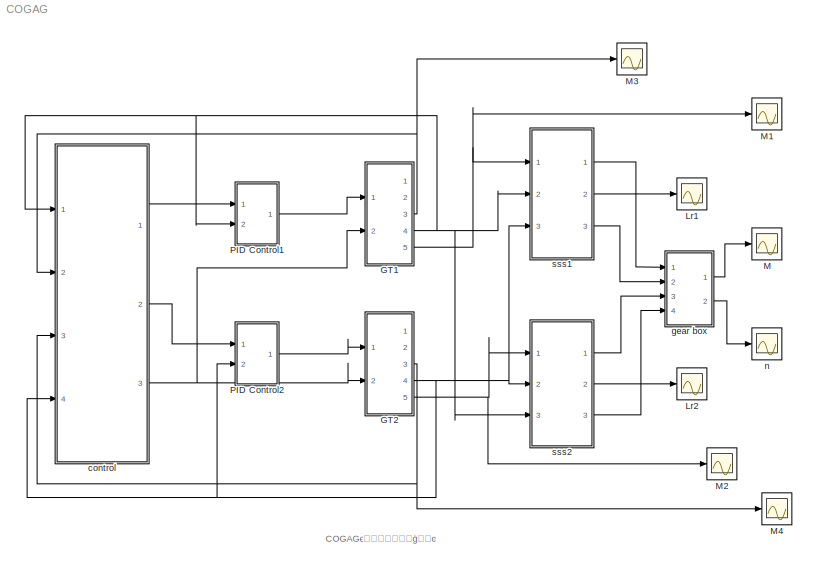
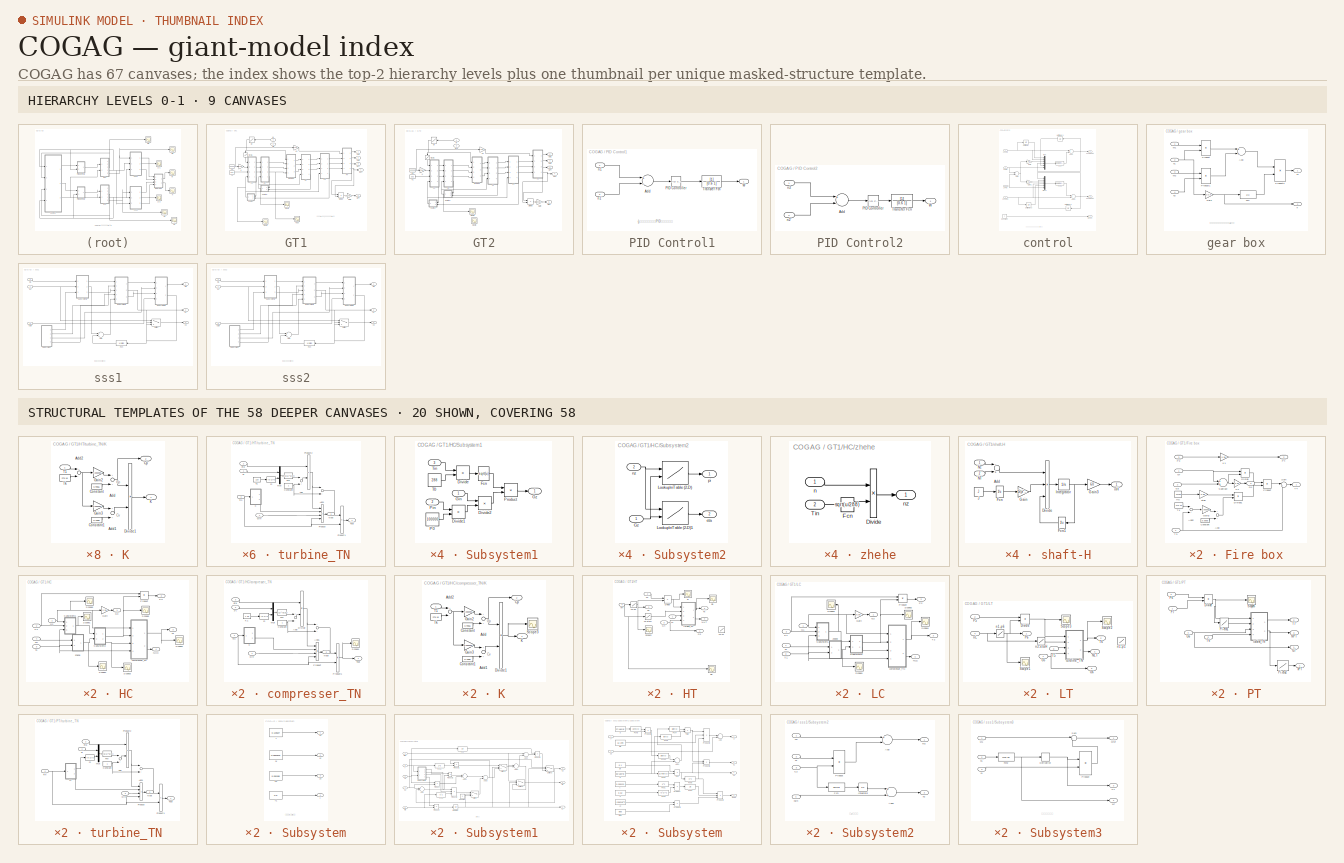
[diagram: thumbnail index - top-2 hierarchy levels (9 canvases) + 20 structural-template representatives of the remaining 58 canvases]
MODEL COGAG
KIND model
BLOCK [SubSystem] GT1
  Ports = [2, 5]
  RequestExecContextInheritance = off
  SID = 1
BLOCK [Product] GT1/Divide
  InputSameDT = off
  Inputs = */
  OutDataTypeStr = Inherit: Inherit via internal rule
  Ports = [2, 1]
  RndMeth = Floor
  SID = 4
  SaturateOnIntegerOverflow = off
BLOCK [SubSystem] GT1/Fire box
  Ports = [4, 3]
  RequestExecContextInheritance = off
  SID = 5
BLOCK [Sum] GT1/Fire box/Add
  InputSameDT = off
  OutDataTypeStr = Inherit: Inherit via internal rule
  Ports = [2, 1]
  SID = 10
  SaturateOnIntegerOverflow = off
BLOCK [Sum] GT1/Fire box/Add2
  InputSameDT = off
  Inputs = -+
  OutDataTypeStr = Inherit: Inherit via internal rule
  Ports = [2, 1]
  SID = 11
  SaturateOnIntegerOverflow = off
BLOCK [Constant] GT1/Fire box/Constant
  SID = 12
  Value = 0.9956
BLOCK [Product] GT1/Fire box/Divide
  InputSameDT = off
  Inputs = */
  OutDataTypeStr = Inherit: Inherit via internal rule
  Ports = [2, 1]
  RndMeth = Floor
  SID = 13
  SaturateOnIntegerOverflow = off
BLOCK [Product] GT1/Fire box/Divide1
  InputSameDT = off
  Inputs = */
  OutDataTypeStr = Inherit: Inherit via internal rule
  Ports = [2, 1]
  RndMeth = Floor
  SID = 14
  SaturateOnIntegerOverflow = off
BLOCK [Inport] GT1/Fire box/G3
  IconDisplay = Port number
  Port = 2
  SID = 7
BLOCK [Outport] GT1/Fire box/G4
  IconDisplay = Port number
  Port = 3
  SID = 26
BLOCK [Gain] GT1/Fire box/Gain2
  Gain = 0.000093
  OutDataTypeStr = Inherit: Inherit via internal rule
  ParamDataTypeStr = Inherit: Inherit via internal rule
  SID = 15
  SaturateOnIntegerOverflow = off
BLOCK [Inport] GT1/Fire box/Gf
  IconDisplay = Port number
  SID = 6
BLOCK [Constant] GT1/Fire box/Hu
  SID = 16
  Value = 42700
BLOCK [Gain] GT1/Fire box/K1
  Gain = 0.98
  OutDataTypeStr = Inherit: Inherit via internal rule
  ParamDataTypeStr = Inherit: Inherit via internal rule
  SID = 17
  SaturateOnIntegerOverflow = off
BLOCK [Gain] GT1/Fire box/K2
  Gain = 0.99
  OutDataTypeStr = Inherit: Inherit via internal rule
  ParamDataTypeStr = Inherit: Inherit via internal rule
  SID = 18
  SaturateOnIntegerOverflow = off
BLOCK [Inport] GT1/Fire box/P3
  IconDisplay = Port number
  Port = 3
  SID = 8
BLOCK [Outport] GT1/Fire box/P4
  IconDisplay = Port number
  Port = 2
  SID = 25
BLOCK [Product] GT1/Fire box/Product
  InputSameDT = off
  OutDataTypeStr = Inherit: Inherit via internal rule
  Ports = [2, 1]
  SID = 19
  SaturateOnIntegerOverflow = off
BLOCK [Sum] GT1/Fire box/Subtract
  InputSameDT = off
  OutDataTypeStr = Inherit: Inherit via internal rule
  Ports = [2, 1]
  SID = 20
  SaturateOnIntegerOverflow = off
BLOCK [Sum] GT1/Fire box/Sum
  IconShape = round
  InputSameDT = off
  Inputs = |++
  OutDataTypeStr = Inherit: Inherit via internal rule
  Ports = [2, 1]
  SID = 21
  SaturateOnIntegerOverflow = off
BLOCK [Inport] GT1/Fire box/T3
  IconDisplay = Port number
  Port = 4
  SID = 9
BLOCK [Outport] GT1/Fire box/T4
  IconDisplay = Port number
  SID = 24
BLOCK [Constant] GT1/Fire box/Tk
  SID = 22
  Value = 273.15
BLOCK [Gain] GT1/Fire box/etab
  Gain = 0.98
  OutDataTypeStr = Inherit: Inherit via internal rule
  ParamDataTypeStr = Inherit: Inherit via internal rule
  SID = 23
  SaturateOnIntegerOverflow = off
BLOCK [Gain] GT1/Gain
  Gain = 1000/0.7355
  OutDataTypeStr = Inherit: Inherit via internal rule
  ParamDataTypeStr = Inherit: Inherit via internal rule
  SID = 27
  SaturateOnIntegerOverflow = off
BLOCK [Lookup] GT1/Gf
  InputValues = [0,0.03,0.07,0.09,0.11,0.13,0.17,0.2,0.23,0.26,0.28,0.3,0.32,0.34,0.35,0.38,0.4,0.42,0.44,0.47,0.49,0.5,0.52,0.54,0.55,0.59,0.61,0.64,0.66,0.68,0.7,0.72,0.74,0.77,0.81,0.83,0.85,0.88,0.93,0.95,0.97,1]
  SID = 28
  SaturateOnIntegerOverflow = off
  Table = [0.172,0.236,0.331,0.331,0.366,0.411,0.488,0.536,0.582,0.605,0.644,0.682,0.698,0.728,0.727,0.783,0.783,0.813,0.857,0.886,0.935,0.949,0.95,0.975,0.999,1.022,1.069,1.149,1.153,1.184,1.206,1.233,1.256,1.271,1.325,1.383,1.383,1.439,1.481,1.504,1.52,1.574]
BLOCK [Lookup] GT1/Gf_G1
  InputValues = [0.172,0.236,0.331,0.366,0.411,0.488,0.536,0.582,0.605,0.644,0.682,0.698,0.727,0.728,0.783,0.813,0.857,0.886,0.935,0.949,0.95,0.975,0.999,1.022,1.069,1.149,1.153,1.184,1.206,1.233,1.256,1.271,1.325,1.383,1.439,1.481,1.504,1.52,1.574]
  SID = 29
  SaturateOnIntegerOverflow = off
  Table = [20.01, 25.93, 38.77,  43.65, 45.94, 51.85, 54.70, 56.85, 59.03, 61.91, 60.44, 61.58, 62.93, 63.04, 65.71,   67.00, 69.52, 70.63, 73.19, 73.46, 73.44, 73.83, 75.62, 76.39, 78.27, 81.17, 81.50, 82.44, 83.44, 84.31, 85.30, 86.17, 87.93, 89.72, 91.51, 93.65, 94.63, 94.92, 97.64]
BLOCK [Scope] GT1/Gout1
  DataFormat = StructureWithTime
  Floating = off
  NumInputPorts = 1
  Ports = [1]
  SID = 30
  SampleTime = 0
  ShowLegends = off
  TimeRange = 10
  ZoomMode = yonly
BLOCK [Scope] GT1/Gout2
  DataFormat = StructureWithTime
  Floating = off
  NumInputPorts = 1
  Ports = [1]
  SID = 31
  SampleTime = 0
  SaveName = ScopeData3
  ShowLegends = off
  TimeRange = 10
  ZoomMode = yonly
BLOCK [SubSystem] GT1/HC
  Ports = [4, 4]
  RequestExecContextInheritance = off
  SID = 32
BLOCK [Inport] GT1/HC/G2
  IconDisplay = Port number
  SID = 33
BLOCK [Outport] GT1/HC/G3
  IconDisplay = Port number
  SID = 104
BLOCK [Gain] GT1/HC/Gain
  Gain = 0.99
  OutDataTypeStr = Inherit: Inherit via internal rule
  ParamDataTypeStr = Inherit: Inherit via internal rule
  SID = 37
  SaturateOnIntegerOverflow = off
BLOCK [Outport] GT1/HC/NHC
  IconDisplay = Port number
  Port = 4
  SID = 107
BLOCK [Inport] GT1/HC/P2
  IconDisplay = Port number
  Port = 2
  SID = 34
BLOCK [Outport] GT1/HC/P3
  IconDisplay = Port number
  Port = 2
  SID = 105
BLOCK [Product] GT1/HC/Product
  InputSameDT = off
  OutDataTypeStr = Inherit: Inherit via internal rule
  Ports = [2, 1]
  SID = 38
  SaturateOnIntegerOverflow = off
BLOCK [Scope] GT1/HC/Scope1
  DataFormat = StructureWithTime
  Floating = off
  NumInputPorts = 1
  Ports = [1]
  SID = 39
  SampleTime = 0
  SaveName = ScopeData16
  ShowLegends = off
  YMax = 3127.38
  YMin = 2829.54
BLOCK [Scope] GT1/HC/Scope2
  DataFormat = StructureWithTime
  Floating = off
  NumInputPorts = 1
  Ports = [1]
  SID = 40
  SampleTime = 0
  SaveName = ScopeData29
  ShowLegends = off
  YMax = 3127.38
  YMin = 2829.54
BLOCK [Scope] GT1/HC/Scope3
  DataFormat = StructureWithTime
  Floating = off
  NumInputPorts = 1
  Ports = [1]
  SID = 41
  SampleTime = 0
  SaveName = ScopeData24
  ShowLegends = off
  YMax = 3127.38
  YMin = 2829.54
BLOCK [Scope] GT1/HC/Scope4
  DataFormat = StructureWithTime
  Floating = off
  NumInputPorts = 1
  Ports = [1]
  SID = 42
  SampleTime = 0
  SaveName = ScopeData31
  ShowLegends = off
  YMax = 3127.38
  YMin = 2829.54
BLOCK [Scope] GT1/HC/Scope5
  DataFormat = StructureWithTime
  Floating = off
  NumInputPorts = 1
  Ports = [1]
  SID = 43
  SampleTime = 0
  SaveName = ScopeData10
  ShowLegends = off
  YMax = 3127.38
  YMin = 2829.54
BLOCK [Scope] GT1/HC/Scope6
  DataFormat = StructureWithTime
  Floating = off
  NumInputPorts = 1
  Ports = [1]
  SID = 44
  SampleTime = 0
  SaveName = ScopeData15
  ShowLegends = off
  YMax = 3127.38
  YMin = 2829.54
BLOCK [SubSystem] GT1/HC/Subsystem1
  Ports = [3, 1]
  RequestExecContextInheritance = off
  SID = 45
BLOCK [Product] GT1/HC/Subsystem1/Divide
  InputSameDT = off
  Inputs = */
  OutDataTypeStr = Inherit: Inherit via internal rule
  Ports = [2, 1]
  RndMeth = Floor
  SID = 49
  SaturateOnIntegerOverflow = off
BLOCK [Product] GT1/HC/Subsystem1/Divide1
  InputSameDT = off
  Inputs = */
  OutDataTypeStr = Inherit: Inherit via internal rule
  Ports = [2, 1]
  RndMeth = Floor
  SID = 50
  SaturateOnIntegerOverflow = off
BLOCK [Product] GT1/HC/Subsystem1/Divide2
  InputSameDT = off
  Inputs = */
  OutDataTypeStr = Inherit: Inherit via internal rule
  Ports = [2, 1]
  RndMeth = Floor
  SID = 51
  SaturateOnIntegerOverflow = off
BLOCK [Fcn] GT1/HC/Subsystem1/Fcn
  Expr = sqrt(u)
  SID = 52
BLOCK [Inport] GT1/HC/Subsystem1/Gin
  IconDisplay = Port number
  SID = 46
BLOCK [Outport] GT1/HC/Subsystem1/Gz
  IconDisplay = Port number
  SID = 56
BLOCK [Constant] GT1/HC/Subsystem1/P0
  SID = 53
  Value = 100000
BLOCK [Inport] GT1/HC/Subsystem1/Pin
  IconDisplay = Port number
  Port = 2
  SID = 47
BLOCK [Product] GT1/HC/Subsystem1/Product
  InputSameDT = off
  OutDataTypeStr = Inherit: Inherit via internal rule
  Ports = [2, 1]
  SID = 54
  SaturateOnIntegerOverflow = off
BLOCK [Constant] GT1/HC/Subsystem1/T0
  SID = 55
  Value = 288
BLOCK [Inport] GT1/HC/Subsystem1/Tin
  IconDisplay = Port number
  Port = 3
  SID = 48
BLOCK [SubSystem] GT1/HC/Subsystem2
  Ports = [2, 2]
  RequestExecContextInheritance = off
  SID = 57
BLOCK [Inport] GT1/HC/Subsystem2/Gz
  IconDisplay = Port number
  SID = 58
BLOCK [Lookup2D] GT1/HC/Subsystem2/Lookup\nTable (2-D)
  ColumnIndex = [12:0.2:29]
  InputSameDT = off
  RowIndex = [6000 6300 6500 6800 7000 7300 7500 7800]
  SID = 60
  SaturateOnIntegerOverflow = off
  Table = [2.4803 2.5510 2.6217 2.6924 2.7630 2.8337 2.9044 2.9751 3.0172 2.9863 2.9541 2.9206 2.8860 2.8500 2.8129 2.7745 2.7349 2.6940 2.6519 2.6085 2.5640 2.5181 2.4711 2.4906 2.5237 2.5573 2.5913 2.6257 2.6605 2.6958 2.7314 2.7675 2.8040 2.8409 2.8783 2.9161 2.9543 2.9929 3.0319 3.0714 3.1112 3.1515 3.1923 3.2334 3.2750 3.3169 3.3593 3.4022 3.4454 3.4891 3.5332 3.5777 3.6226 3.6679 3.7137 3.7599 3.8065 ...<+4441ch>
BLOCK [Lookup2D] GT1/HC/Subsystem2/Lookup\nTable (2-D)1
  ColumnIndex = [12:0.2:29]
  InputSameDT = off
  RowIndex = [6000 6300 6500 6800 7000 7300 7500 7800]
  SID = 61
  SaturateOnIntegerOverflow = off
  Table = [0.8450 0.8455 0.8460 0.8465 0.8470 0.8480 0.8490 0.8495 0.8500 0.8510 0.8520 0.8530 0.8540 0.8540 0.8540 0.8525 0.8510 0.8500 0.8490 0.8480 0.8470 0.8460 0.8450 0.8455 0.8460 0.8460 0.8460 0.8470 0.8480 0.8480 0.8480 0.8480 0.8480 0.8485 0.8490 0.8490 0.8490 0.8490 0.8490 0.8490 0.8490 0.8490 0.8490 0.8490 0.8490 0.8490 0.8490 0.8490 0.8490 0.8495 0.8500 0.8500 0.8500 0.8500 0.8500 0.8500 0.8500 ...<+4434ch>
BLOCK [Outport] GT1/HC/Subsystem2/eta
  IconDisplay = Port number
  Port = 2
  SID = 63
BLOCK [Inport] GT1/HC/Subsystem2/nz
  IconDisplay = Port number
  Port = 2
  SID = 59
BLOCK [Outport] GT1/HC/Subsystem2/pi
  IconDisplay = Port number
  SID = 62
BLOCK [Inport] GT1/HC/T2
  IconDisplay = Port number
  Port = 3
  SID = 35
BLOCK [Outport] GT1/HC/T3
  IconDisplay = Port number
  Port = 3
  SID = 106
BLOCK [SubSystem] GT1/HC/compresser_TN
  Ports = [4, 2]
  RequestExecContextInheritance = off
  SID = 64
BLOCK [Sum] GT1/HC/compresser_TN/Add
  InputSameDT = off
  Inputs = +-
  OutDataTypeStr = Inherit: Inherit via internal rule
  Ports = [2, 1]
  SID = 69
  SaturateOnIntegerOverflow = off
BLOCK [Sum] GT1/HC/compresser_TN/Add1
  InputSameDT = off
  OutDataTypeStr = Inherit: Inherit via internal rule
  Ports = [2, 1]
  SID = 70
  SaturateOnIntegerOverflow = off
BLOCK [Constant] GT1/HC/compresser_TN/Constant
  SID = 71
BLOCK [Product] GT1/HC/compresser_TN/Divide
  InputSameDT = off
  Inputs = /*
  OutDataTypeStr = Inherit: Inherit via internal rule
  Ports = [2, 1]
  RndMeth = Floor
  SID = 72
  SaturateOnIntegerOverflow = off
BLOCK [Fcn] GT1/HC/compresser_TN/Fcn
  Expr = u[1]^(u[2])
  SID = 73
BLOCK [Inport] GT1/HC/compresser_TN/Gin
  IconDisplay = Port number
  SID = 65
BLOCK [SubSystem] GT1/HC/compresser_TN/K
  Ports = [1, 2]
  RequestExecContextInheritance = off
  SID = 74
BLOCK [Sum] GT1/HC/compresser_TN/K/Add
  InputSameDT = off
  OutDataTypeStr = Inherit: Inherit via internal rule
  Ports = [2, 1]
  SID = 76
  SaturateOnIntegerOverflow = off
BLOCK [Sum] GT1/HC/compresser_TN/K/Add1
  InputSameDT = off
  OutDataTypeStr = Inherit: Inherit via internal rule
  Ports = [2, 1]
  SID = 77
  SaturateOnIntegerOverflow = off
BLOCK [Sum] GT1/HC/compresser_TN/K/Add2
  InputSameDT = off
  Inputs = +-
  OutDataTypeStr = Inherit: Inherit via internal rule
  Ports = [2, 1]
  SID = 78
  SaturateOnIntegerOverflow = off
BLOCK [Constant] GT1/HC/compresser_TN/K/Constant
  SID = 79
  Value = 0.9956
BLOCK [Constant] GT1/HC/compresser_TN/K/Constant1
  SID = 80
  Value = 0.7088
BLOCK [Outport] GT1/HC/compresser_TN/K/Cp
  IconDisplay = Port number
  Port = 2
  SID = 87
BLOCK [Product] GT1/HC/compresser_TN/K/Divide1
  InputSameDT = off
  Inputs = */
  OutDataTypeStr = Inherit: Inherit via internal rule
  Ports = [2, 1]
  RndMeth = Floor
  SID = 81
  SaturateOnIntegerOverflow = off
BLOCK [Gain] GT1/HC/compresser_TN/K/Gain2
  Gain = 0.000093
  OutDataTypeStr = Inherit: Inherit via internal rule
  ParamDataTypeStr = Inherit: Inherit via internal rule
  SID = 82
  SaturateOnIntegerOverflow = off
BLOCK [Gain] GT1/HC/compresser_TN/K/Gain3
  Gain = 0.000093
  OutDataTypeStr = Inherit: Inherit via internal rule
  ParamDataTypeStr = Inherit: Inherit via internal rule
  SID = 83
  SaturateOnIntegerOverflow = off
BLOCK [Outport] GT1/HC/compresser_TN/K/K
  IconDisplay = Port number
  SID = 86
BLOCK [Scope] GT1/HC/compresser_TN/K/Scope3
  DataFormat = StructureWithTime
  Floating = off
  NumInputPorts = 1
  Ports = [1]
  SID = 84
  SampleTime = 0
  SaveName = ScopeData23
  ShowLegends = off
  YMax = 3127.38
  YMin = 2829.54
BLOCK [Inport] GT1/HC/compresser_TN/K/T1
  IconDisplay = Port number
  SID = 75
BLOCK [Constant] GT1/HC/compresser_TN/K/Tk
  SID = 85
  Value = 273.15
BLOCK [Constant] GT1/HC/compresser_TN/K1
  SID = 90
  Value = 1.35
BLOCK [Mux] GT1/HC/compresser_TN/Mux
  DisplayOption = bar
  Inputs = 2
  Ports = [2, 1]
  SID = 91
BLOCK [Outport] GT1/HC/compresser_TN/Nout
  IconDisplay = Port number
  Port = 2
  SID = 97
BLOCK [Inport] GT1/HC/compresser_TN/Pi
  IconDisplay = Port number
  Port = 2
  SID = 66
BLOCK [Product] GT1/HC/compresser_TN/Product
  InputSameDT = off
  Inputs = 4
  OutDataTypeStr = Inherit: Inherit via internal rule
  Ports = [4, 1]
  SID = 92
  SaturateOnIntegerOverflow = off
BLOCK [Product] GT1/HC/compresser_TN/Product1
  InputSameDT = off
  OutDataTypeStr = Inherit: Inherit via internal rule
  Ports = [2, 1]
  SID = 93
  SaturateOnIntegerOverflow = off
BLOCK [Scope] GT1/HC/compresser_TN/Scope3
  DataFormat = StructureWithTime
  Floating = off
  NumInputPorts = 1
  Ports = [1]
  SID = 94
  SampleTime = 0
  SaveName = ScopeData18
  ShowLegends = off
  YMax = 3127.38
  YMin = 2829.54
BLOCK [Inport] GT1/HC/compresser_TN/Tin
  IconDisplay = Port number
  Port = 4
  SID = 68
BLOCK [Outport] GT1/HC/compresser_TN/Tout
  IconDisplay = Port number
  SID = 96
BLOCK [Inport] GT1/HC/compresser_TN/eta
  IconDisplay = Port number
  Port = 3
  SID = 67
BLOCK [Fcn] GT1/HC/compresser_TN/m
  Expr = (u-1)/u
  SID = 95
BLOCK [Inport] GT1/HC/nH
  IconDisplay = Port number
  Port = 4
  SID = 36
BLOCK [SubSystem] GT1/HC/zhehe
  Ports = [2, 1]
  RequestExecContextInheritance = off
  SID = 98
BLOCK [Product] GT1/HC/zhehe/Divide
  InputSameDT = off
  Inputs = */
  OutDataTypeStr = Inherit: Inherit via internal rule
  Ports = [2, 1]
  RndMeth = Floor
  SID = 101
  SaturateOnIntegerOverflow = off
BLOCK [Fcn] GT1/HC/zhehe/Fcn
  Expr = sqrt(u/288)
  SID = 102
BLOCK [Inport] GT1/HC/zhehe/Tin
  IconDisplay = Port number
  Port = 2
  SID = 100
BLOCK [Inport] GT1/HC/zhehe/n
  IconDisplay = Port number
  SID = 99
BLOCK [Outport] GT1/HC/zhehe/nz
  IconDisplay = Port number
  SID = 103
BLOCK [SubSystem] GT1/HT
  Ports = [4, 4]
  RequestExecContextInheritance = off
  SID = 108
BLOCK [Product] GT1/HT/Divide
  InputSameDT = off
  Inputs = */
  OutDataTypeStr = Inherit: Inherit via internal rule
  Ports = [2, 1]
  RndMeth = Floor
  SID = 113
  SaturateOnIntegerOverflow = off
BLOCK [Inport] GT1/HT/G4
  IconDisplay = Port number
  Port = 3
  SID = 111
BLOCK [Outport] GT1/HT/G5
  IconDisplay = Port number
  SID = 153
BLOCK [Outport] GT1/HT/NHT
  IconDisplay = Port number
  Port = 4
  SID = 156
BLOCK [Inport] GT1/HT/P4
  IconDisplay = Port number
  Port = 2
  SID = 110
BLOCK [Outport] GT1/HT/P5
  IconDisplay = Port number
  Port = 2
  SID = 154
BLOCK [Scope] GT1/HT/Scope3
  DataFormat = StructureWithTime
  Floating = off
  NumInputPorts = 1
  Ports = [1]
  SID = 114
  SampleTime = 0
  SaveName = ScopeData34
  ShowLegends = off
  TimeRange = 100
  YMax = 25000
  YMin = 5000
  ZoomMode = yonly
BLOCK [Inport] GT1/HT/T4
  IconDisplay = Port number
  SID = 109
BLOCK [Outport] GT1/HT/T5
  IconDisplay = Port number
  Port = 3
  SID = 155
BLOCK [Lookup] GT1/HT/n2-etaH
  InputValues = [6000 6300 6500 6800 7000 7150 7300 7500 7800]
  SID = 115
  SaturateOnIntegerOverflow = off
  Table = [0.81 0.83 0.85 0.87 0.88 0.87 0.86 0.855 0.85]
BLOCK [Lookup] GT1/HT/n2-p1
  InputValues = [6000 6503 6995 7498 8002 8505 8997 9500]
  SID = 116
  SaturateOnIntegerOverflow = off
  Table = [139400 150700 186000 246700 332500 443400 575800 736100]
BLOCK [Lookup] GT1/HT/n2-p5
  InputValues = [5832,7212,7282,7644,7752,7853,8033,8092 8211 8392 8430 8452 8670 8767 8960 8999 9073]
  SID = 117
  SaturateOnIntegerOverflow = off
  Table = [154000,269000,296000,361000,391000,419000,476000,494000 534000 596000 609000 616000 684000 719000 806000 814000 831000]
BLOCK [Inport] GT1/HT/nH
  IconDisplay = Port number
  Port = 4
  SID = 112
BLOCK [Scope] GT1/HT/pi
  DataFormat = StructureWithTime
  Floating = off
  NumInputPorts = 1
  Ports = [1]
  SID = 118
  SampleTime = 0
  SaveName = ScopeData17
  ShowLegends = off
  TimeRange = 100
  YMax = 3127.38
  YMin = 2829.54
BLOCK [Scope] GT1/HT/pi1
  DataFormat = StructureWithTime
  Floating = off
  NumInputPorts = 1
  Ports = [1]
  SID = 119
  SampleTime = 0
  SaveName = ScopeData7
  ShowLegends = off
  TimeRange = 100
  YMax = 3127.38
  YMin = 2829.54
BLOCK [Scope] GT1/HT/pi2
  DataFormat = StructureWithTime
  Floating = off
  NumInputPorts = 1
  Ports = [1]
  SID = 120
  SampleTime = 0
  SaveName = ScopeData35
  ShowLegends = off
  TimeRange = 100
  YMax = 3127.38
  YMin = 2829.54
BLOCK [SubSystem] GT1/HT/turbine_TN
  Ports = [4, 2]
  RequestExecContextInheritance = off
  SID = 121
BLOCK [Sum] GT1/HT/turbine_TN/Add
  InputSameDT = off
  Inputs = -+
  OutDataTypeStr = Inherit: Inherit via internal rule
  Ports = [2, 1]
  SID = 126
  SaturateOnIntegerOverflow = off
BLOCK [Sum] GT1/HT/turbine_TN/Add1
  InputSameDT = off
  Inputs = -+
  OutDataTypeStr = Inherit: Inherit via internal rule
  Ports = [2, 1]
  SID = 127
  SaturateOnIntegerOverflow = off
BLOCK [Constant] GT1/HT/turbine_TN/Constant
  SID = 128
BLOCK [Fcn] GT1/HT/turbine_TN/Fcn
  Expr = 1/(u[1]^u[2])
  SID = 129
BLOCK [Inport] GT1/HT/turbine_TN/Gin
  IconDisplay = Port number
  Port = 4
  SID = 125
BLOCK [SubSystem] GT1/HT/turbine_TN/K
  Ports = [1, 2]
  RequestExecContextInheritance = off
  SID = 130
BLOCK [Sum] GT1/HT/turbine_TN/K/Add
  InputSameDT = off
  OutDataTypeStr = Inherit: Inherit via internal rule
  Ports = [2, 1]
  SID = 132
  SaturateOnIntegerOverflow = off
BLOCK [Sum] GT1/HT/turbine_TN/K/Add1
  InputSameDT = off
  OutDataTypeStr = Inherit: Inherit via internal rule
  Ports = [2, 1]
  SID = 133
  SaturateOnIntegerOverflow = off
BLOCK [Sum] GT1/HT/turbine_TN/K/Add2
  InputSameDT = off
  Inputs = +-
  OutDataTypeStr = Inherit: Inherit via internal rule
  Ports = [2, 1]
  SID = 134
  SaturateOnIntegerOverflow = off
BLOCK [Constant] GT1/HT/turbine_TN/K/Constant
  SID = 135
  Value = 0.9956
BLOCK [Constant] GT1/HT/turbine_TN/K/Constant1
  SID = 136
  Value = 0.7088
BLOCK [Outport] GT1/HT/turbine_TN/K/Cp
  IconDisplay = Port number
  Port = 2
  SID = 142
BLOCK [Product] GT1/HT/turbine_TN/K/Divide1
  InputSameDT = off
  Inputs = */
  OutDataTypeStr = Inherit: Inherit via internal rule
  Ports = [2, 1]
  RndMeth = Floor
  SID = 137
  SaturateOnIntegerOverflow = off
BLOCK [Gain] GT1/HT/turbine_TN/K/Gain2
  Gain = 0.000093
  OutDataTypeStr = Inherit: Inherit via internal rule
  ParamDataTypeStr = Inherit: Inherit via internal rule
  SID = 138
  SaturateOnIntegerOverflow = off
BLOCK [Gain] GT1/HT/turbine_TN/K/Gain3
  Gain = 0.000093
  OutDataTypeStr = Inherit: Inherit via internal rule
  ParamDataTypeStr = Inherit: Inherit via internal rule
  SID = 139
  SaturateOnIntegerOverflow = off
BLOCK [Outport] GT1/HT/turbine_TN/K/K
  IconDisplay = Port number
  SID = 141
BLOCK [Inport] GT1/HT/turbine_TN/K/T1
  IconDisplay = Port number
  SID = 131
BLOCK [Constant] GT1/HT/turbine_TN/K/Tk
  SID = 140
  Value = 273.15
BLOCK [Constant] GT1/HT/turbine_TN/K1
  SID = 145
  Value = 1.33
BLOCK [Mux] GT1/HT/turbine_TN/Mux
  DisplayOption = bar
  Inputs = 2
  Ports = [2, 1]
  SID = 146
BLOCK [Outport] GT1/HT/turbine_TN/Nout
  IconDisplay = Port number
  Port = 2
  SID = 152
BLOCK [Inport] GT1/HT/turbine_TN/Pi
  IconDisplay = Port number
  SID = 122
BLOCK [Product] GT1/HT/turbine_TN/Product
  InputSameDT = off
  Inputs = 4
  OutDataTypeStr = Inherit: Inherit via internal rule
  Ports = [4, 1]
  SID = 147
  SaturateOnIntegerOverflow = off
BLOCK [Product] GT1/HT/turbine_TN/Product1
  InputSameDT = off
  OutDataTypeStr = Inherit: Inherit via internal rule
  Ports = [2, 1]
  SID = 148
  SaturateOnIntegerOverflow = off
BLOCK [Product] GT1/HT/turbine_TN/Product2
  InputSameDT = off
  OutDataTypeStr = Inherit: Inherit via internal rule
  Ports = [2, 1]
  SID = 149
  SaturateOnIntegerOverflow = off
BLOCK [Inport] GT1/HT/turbine_TN/Tin
  IconDisplay = Port number
  Port = 3
  SID = 124
BLOCK [Outport] GT1/HT/turbine_TN/Tout
  IconDisplay = Port number
  SID = 151
BLOCK [Inport] GT1/HT/turbine_TN/eta
  IconDisplay = Port number
  Port = 2
  SID = 123
BLOCK [Fcn] GT1/HT/turbine_TN/m
  Expr = (u-1)/u
  SID = 150
BLOCK [Gain] GT1/K
  Gain = 0.98
  OutDataTypeStr = Inherit: Inherit via internal rule
  ParamDataTypeStr = Inherit: Inherit via internal rule
  SID = 157
  SaturateOnIntegerOverflow = off
BLOCK [Gain] GT1/K1
  Gain = 1.05
  OutDataTypeStr = Inherit: Inherit via internal rule
  ParamDataTypeStr = Inherit: Inherit via internal rule
  SID = 158
  SaturateOnIntegerOverflow = off
BLOCK [SubSystem] GT1/LC
  Ports = [4, 4]
  RequestExecContextInheritance = off
  SID = 159
BLOCK [Inport] GT1/LC/G1
  IconDisplay = Port number
  SID = 160
BLOCK [Outport] GT1/LC/G2
  IconDisplay = Port number
  SID = 227
BLOCK [Gain] GT1/LC/Gain
  Gain = 0.99
  OutDataTypeStr = Inherit: Inherit via internal rule
  ParamDataTypeStr = Inherit: Inherit via internal rule
  SID = 164
  SaturateOnIntegerOverflow = off
BLOCK [Outport] GT1/LC/NLC
  IconDisplay = Port number
  Port = 4
  SID = 230
BLOCK [Inport] GT1/LC/P1
  IconDisplay = Port number
  Port = 2
  SID = 161
BLOCK [Outport] GT1/LC/P2
  IconDisplay = Port number
  Port = 2
  SID = 228
BLOCK [Product] GT1/LC/Product
  InputSameDT = off
  OutDataTypeStr = Inherit: Inherit via internal rule
  Ports = [2, 1]
  SID = 165
  SaturateOnIntegerOverflow = off
BLOCK [Scope] GT1/LC/Scope1
  DataFormat = StructureWithTime
  Floating = off
  NumInputPorts = 1
  Ports = [1]
  SID = 166
  SampleTime = 0
  SaveName = ScopeData14
  ShowLegends = off
  YMax = 3127.38
  YMin = 2829.54
BLOCK [Scope] GT1/LC/Scope2
  DataFormat = StructureWithTime
  Floating = off
  NumInputPorts = 1
  Ports = [1]
  SID = 167
  SampleTime = 0
  SaveName = ScopeData9
  ShowLegends = off
  YMax = 3127.38
  YMin = 2829.54
BLOCK [Scope] GT1/LC/Scope3
  DataFormat = StructureWithTime
  Floating = off
  NumInputPorts = 1
  Ports = [1]
  SID = 168
  SampleTime = 0
  SaveName = ScopeData30
  ShowLegends = off
  YMax = 3127.38
  YMin = 2829.54
BLOCK [Scope] GT1/LC/Scope4
  DataFormat = StructureWithTime
  Floating = off
  NumInputPorts = 1
  Ports = [1]
  SID = 169
  SampleTime = 0
  SaveName = ScopeData32
  ShowLegends = off
  TimeRange = 80
  YMax = 30000
  YMin = 5000
  ZoomMode = yonly
BLOCK [SubSystem] GT1/LC/Subsystem1
  Ports = [3, 1]
  RequestExecContextInheritance = off
  SID = 170
BLOCK [Product] GT1/LC/Subsystem1/Divide
  InputSameDT = off
  Inputs = */
  OutDataTypeStr = Inherit: Inherit via internal rule
  Ports = [2, 1]
  RndMeth = Floor
  SID = 174
  SaturateOnIntegerOverflow = off
BLOCK [Product] GT1/LC/Subsystem1/Divide1
  InputSameDT = off
  Inputs = */
  OutDataTypeStr = Inherit: Inherit via internal rule
  Ports = [2, 1]
  RndMeth = Floor
  SID = 175
  SaturateOnIntegerOverflow = off
BLOCK [Product] GT1/LC/Subsystem1/Divide2
  InputSameDT = off
  Inputs = */
  OutDataTypeStr = Inherit: Inherit via internal rule
  Ports = [2, 1]
  RndMeth = Floor
  SID = 176
  SaturateOnIntegerOverflow = off
BLOCK [Fcn] GT1/LC/Subsystem1/Fcn
  Expr = sqrt(u)
  SID = 177
BLOCK [Inport] GT1/LC/Subsystem1/Gin
  IconDisplay = Port number
  SID = 171
BLOCK [Outport] GT1/LC/Subsystem1/Gz
  IconDisplay = Port number
  SID = 181
BLOCK [Constant] GT1/LC/Subsystem1/P0
  SID = 178
  Value = 100000
BLOCK [Inport] GT1/LC/Subsystem1/Pin
  IconDisplay = Port number
  Port = 2
  SID = 172
BLOCK [Product] GT1/LC/Subsystem1/Product
  InputSameDT = off
  OutDataTypeStr = Inherit: Inherit via internal rule
  Ports = [2, 1]
  SID = 179
  SaturateOnIntegerOverflow = off
BLOCK [Constant] GT1/LC/Subsystem1/T0
  SID = 180
  Value = 288
BLOCK [Inport] GT1/LC/Subsystem1/Tin
  IconDisplay = Port number
  Port = 3
  SID = 173
BLOCK [SubSystem] GT1/LC/Subsystem3
  Ports = [2, 2]
  RequestExecContextInheritance = off
  SID = 182
BLOCK [Inport] GT1/LC/Subsystem3/Gz
  IconDisplay = Port number
  SID = 183
BLOCK [Lookup2D] GT1/LC/Subsystem3/Lookup\nTable (2-D)
  ColumnIndex = [20:0.5:100]
  InputSameDT = off
  RowIndex = [4300 5000 5500 6000 6500 7000 7500 8000]
  SID = 185
  SaturateOnIntegerOverflow = off
  Table = [1.1111 1.1471 1.1832 1.2192 1.2552 1.2913 1.3273 1.3633 1.3994 1.4354 1.4714 1.5074 1.5435 1.5795 1.6155 1.6516 1.6876 1.7236 1.8750 1.8749 1.8720 1.8623 1.8457 1.8223 1.7920 1.7549 1.7109 1.6601 1.6024 1.5378 1.4664 1.3881 1.2420 1.2701 1.2983 1.3265 1.3547 1.3828 1.4110 1.4392 1.4673 1.4955 1.5237 1.5519 1.5800 1.6082 1.6364 1.6645 1.6927 1.7209 1.7491 1.7772 1.8054 1.8336 1.8617 1.8899 1.9181 ...<+8634ch>
BLOCK [Lookup2D] GT1/LC/Subsystem3/Lookup\nTable (2-D)1
  ColumnIndex = [20:0.5:100]
  InputSameDT = off
  RowIndex = [4300 5000 5500 6000 6500 7000 7500 8000]
  SID = 186
  SaturateOnIntegerOverflow = off
  Table = [0.8303 0.8307 0.8310 0.8314 0.8317 0.8321 0.8324 0.8327 0.8331 0.8335 0.8338 0.8341 0.8345 0.8348 0.8351 0.8355 0.8358 0.8361 0.8371 0.8390 0.8403 0.8412 0.8415 0.8412 0.8405 0.8392 0.8373 0.8350 0.8321 0.8287 0.8247 0.8203 0.8200 0.8200 0.8200 0.8200 0.8200 0.8200 0.8200 0.8200 0.8200 0.8200 0.8200 0.8200 0.8200 0.8200 0.8200 0.8200 0.8200 0.8200 0.8200 0.8200 0.8200 0.8200 0.8200 0.8200 0.8200 ...<+8634ch>
BLOCK [Outport] GT1/LC/Subsystem3/eta
  IconDisplay = Port number
  Port = 2
  SID = 188
BLOCK [Inport] GT1/LC/Subsystem3/nz
  IconDisplay = Port number
  Port = 2
  SID = 184
BLOCK [Outport] GT1/LC/Subsystem3/pi
  IconDisplay = Port number
  SID = 187
BLOCK [Inport] GT1/LC/T1
  IconDisplay = Port number
  Port = 3
  SID = 162
BLOCK [Outport] GT1/LC/T2
  IconDisplay = Port number
  Port = 3
  SID = 229
BLOCK [SubSystem] GT1/LC/compresser_TN
  Ports = [4, 2]
  RequestExecContextInheritance = off
  SID = 189
BLOCK [Sum] GT1/LC/compresser_TN/Add
  InputSameDT = off
  Inputs = +-
  OutDataTypeStr = Inherit: Inherit via internal rule
  Ports = [2, 1]
  SID = 194
  SaturateOnIntegerOverflow = off
BLOCK [Sum] GT1/LC/compresser_TN/Add1
  InputSameDT = off
  OutDataTypeStr = Inherit: Inherit via internal rule
  Ports = [2, 1]
  SID = 195
  SaturateOnIntegerOverflow = off
BLOCK [Constant] GT1/LC/compresser_TN/Constant
  SID = 196
BLOCK [Product] GT1/LC/compresser_TN/Divide
  InputSameDT = off
  Inputs = /*
  OutDataTypeStr = Inherit: Inherit via internal rule
  Ports = [2, 1]
  RndMeth = Floor
  SID = 197
  SaturateOnIntegerOverflow = off
BLOCK [Fcn] GT1/LC/compresser_TN/Fcn
  Expr = u[1]^(u[2])
  SID = 198
BLOCK [Inport] GT1/LC/compresser_TN/Gin
  IconDisplay = Port number
  SID = 190
BLOCK [SubSystem] GT1/LC/compresser_TN/K
  Ports = [1, 2]
  RequestExecContextInheritance = off
  SID = 199
BLOCK [Sum] GT1/LC/compresser_TN/K/Add
  InputSameDT = off
  OutDataTypeStr = Inherit: Inherit via internal rule
  Ports = [2, 1]
  SID = 201
  SaturateOnIntegerOverflow = off
BLOCK [Sum] GT1/LC/compresser_TN/K/Add1
  InputSameDT = off
  OutDataTypeStr = Inherit: Inherit via internal rule
  Ports = [2, 1]
  SID = 202
  SaturateOnIntegerOverflow = off
BLOCK [Sum] GT1/LC/compresser_TN/K/Add2
  InputSameDT = off
  Inputs = +-
  OutDataTypeStr = Inherit: Inherit via internal rule
  Ports = [2, 1]
  SID = 203
  SaturateOnIntegerOverflow = off
BLOCK [Constant] GT1/LC/compresser_TN/K/Constant
  SID = 204
  Value = 0.9956
BLOCK [Constant] GT1/LC/compresser_TN/K/Constant1
  SID = 205
  Value = 0.7088
BLOCK [Outport] GT1/LC/compresser_TN/K/Cp
  IconDisplay = Port number
  Port = 2
  SID = 211
BLOCK [Product] GT1/LC/compresser_TN/K/Divide1
  InputSameDT = off
  Inputs = */
  OutDataTypeStr = Inherit: Inherit via internal rule
  Ports = [2, 1]
  RndMeth = Floor
  SID = 206
  SaturateOnIntegerOverflow = off
BLOCK [Gain] GT1/LC/compresser_TN/K/Gain2
  Gain = 0.000093
  OutDataTypeStr = Inherit: Inherit via internal rule
  ParamDataTypeStr = Inherit: Inherit via internal rule
  SID = 207
  SaturateOnIntegerOverflow = off
BLOCK [Gain] GT1/LC/compresser_TN/K/Gain3
  Gain = 0.000093
  OutDataTypeStr = Inherit: Inherit via internal rule
  ParamDataTypeStr = Inherit: Inherit via internal rule
  SID = 208
  SaturateOnIntegerOverflow = off
BLOCK [Outport] GT1/LC/compresser_TN/K/K
  IconDisplay = Port number
  SID = 210
BLOCK [Inport] GT1/LC/compresser_TN/K/T1
  IconDisplay = Port number
  SID = 200
BLOCK [Constant] GT1/LC/compresser_TN/K/Tk
  SID = 209
  Value = 273.15
BLOCK [Constant] GT1/LC/compresser_TN/K1
  SID = 214
  Value = 1.4
BLOCK [Mux] GT1/LC/compresser_TN/Mux
  DisplayOption = bar
  Inputs = 2
  Ports = [2, 1]
  SID = 215
BLOCK [Outport] GT1/LC/compresser_TN/Nout
  IconDisplay = Port number
  Port = 2
  SID = 220
BLOCK [Inport] GT1/LC/compresser_TN/Pi
  IconDisplay = Port number
  Port = 2
  SID = 191
BLOCK [Product] GT1/LC/compresser_TN/Product
  InputSameDT = off
  Inputs = 4
  OutDataTypeStr = Inherit: Inherit via internal rule
  Ports = [4, 1]
  SID = 216
  SaturateOnIntegerOverflow = off
BLOCK [Product] GT1/LC/compresser_TN/Product1
  InputSameDT = off
  OutDataTypeStr = Inherit: Inherit via internal rule
  Ports = [2, 1]
  SID = 217
  SaturateOnIntegerOverflow = off
BLOCK [Inport] GT1/LC/compresser_TN/Tin
  IconDisplay = Port number
  Port = 4
  SID = 193
BLOCK [Outport] GT1/LC/compresser_TN/Tout
  IconDisplay = Port number
  SID = 219
BLOCK [Inport] GT1/LC/compresser_TN/eta
  IconDisplay = Port number
  Port = 3
  SID = 192
BLOCK [Fcn] GT1/LC/compresser_TN/m
  Expr = (u-1)/u
  SID = 218
BLOCK [Inport] GT1/LC/nL
  IconDisplay = Port number
  Port = 4
  SID = 163
BLOCK [SubSystem] GT1/LC/zhehe
  Ports = [2, 1]
  RequestExecContextInheritance = off
  SID = 221
BLOCK [Product] GT1/LC/zhehe/Divide
  InputSameDT = off
  Inputs = */
  OutDataTypeStr = Inherit: Inherit via internal rule
  Ports = [2, 1]
  RndMeth = Floor
  SID = 224
  SaturateOnIntegerOverflow = off
BLOCK [Fcn] GT1/LC/zhehe/Fcn
  Expr = sqrt(u/288)
  SID = 225
BLOCK [Inport] GT1/LC/zhehe/Tin
  IconDisplay = Port number
  Port = 2
  SID = 223
BLOCK [Inport] GT1/LC/zhehe/n
  IconDisplay = Port number
  SID = 222
BLOCK [Outport] GT1/LC/zhehe/nz
  IconDisplay = Port number
  SID = 226
BLOCK [SubSystem] GT1/LT
  Ports = [4, 4]
  RequestExecContextInheritance = off
  SID = 231
BLOCK [Product] GT1/LT/Divide
  InputSameDT = off
  Inputs = */
  OutDataTypeStr = Inherit: Inherit via internal rule
  Ports = [2, 1]
  RndMeth = Floor
  SID = 236
  SaturateOnIntegerOverflow = off
BLOCK [Inport] GT1/LT/G5
  IconDisplay = Port number
  SID = 232
BLOCK [Outport] GT1/LT/G6
  IconDisplay = Port number
  Port = 3
  SID = 277
BLOCK [Outport] GT1/LT/NLT
  IconDisplay = Port number
  Port = 4
  SID = 278
BLOCK [Inport] GT1/LT/P5
  IconDisplay = Port number
  Port = 2
  SID = 233
BLOCK [Outport] GT1/LT/P6
  IconDisplay = Port number
  SID = 275
BLOCK [Scope] GT1/LT/Scope1
  DataFormat = StructureWithTime
  Floating = off
  NumInputPorts = 1
  Ports = [1]
  SID = 237
  SampleTime = 0
  SaveName = ScopeData28
  ShowLegends = off
  TimeRange = 100
  YMax = 25000
  YMin = 5000
  ZoomMode = yonly
BLOCK [Scope] GT1/LT/Scope2
  DataFormat = StructureWithTime
  Floating = off
  NumInputPorts = 1
  Ports = [1]
  SID = 238
  SampleTime = 0
  SaveName = ScopeData4
  ShowLegends = off
  TimeRange = 100
  YMax = 25000
  YMin = 5000
  ZoomMode = yonly
BLOCK [Scope] GT1/LT/Scope3
  DataFormat = StructureWithTime
  Floating = off
  NumInputPorts = 1
  Ports = [1]
  SID = 239
  SampleTime = 0
  SaveName = ScopeData20
  ShowLegends = off
  TimeRange = 100
  YMax = 25000
  YMin = 5000
  ZoomMode = yonly
BLOCK [Inport] GT1/LT/T5
  IconDisplay = Port number
  Port = 3
  SID = 234
BLOCK [Outport] GT1/LT/T6
  IconDisplay = Port number
  Port = 2
  SID = 276
BLOCK [Lookup] GT1/LT/n1-p1
  InputValues = [2849,4651,4850,5410,5586,5742,6024,6092,6102,6211,6385,6425 6435 6609 6698  6732 7015  7080 7185 ]
  SID = 240
  SaturateOnIntegerOverflow = off
  Table = [101000,131000,141000,161000,171000,181000,201000,201000,211000,221000,241000,251000 251000 281000 291000  301000 321000  331000 341000]
BLOCK [Lookup] GT1/LT/n1-p6
  InputValues = [2849,4651,4850,5410,5586,5742,6024,6092,6102,6211,6385,6425,6435,6609,6698,6732,7015,7080,7185]
  SID = 241
  SaturateOnIntegerOverflow = off
  Table = [113000,150000,157000,180000,190000,201000,221000,229000,229500,242000,267000,272000,277000,306000,321000,322000,354000,360000,371000]
BLOCK [Lookup] GT1/LT/n2-etaH
  InputValues = [4300 5000 5500 6000 6500 7000 7500 8000 9000 9500]
  SID = 242
  SaturateOnIntegerOverflow = off
  Table = [0.82 0.83 0.835 0.84 0.85 0.86 0.875 0.87 0.865 0.86]
BLOCK [Inport] GT1/LT/nL
  IconDisplay = Port number
  Port = 4
  SID = 235
BLOCK [SubSystem] GT1/LT/turbine_TN
  Ports = [4, 2]
  RequestExecContextInheritance = off
  SID = 243
BLOCK [Sum] GT1/LT/turbine_TN/Add
  InputSameDT = off
  Inputs = -+
  OutDataTypeStr = Inherit: Inherit via internal rule
  Ports = [2, 1]
  SID = 248
  SaturateOnIntegerOverflow = off
BLOCK [Sum] GT1/LT/turbine_TN/Add1
  InputSameDT = off
  Inputs = -+
  OutDataTypeStr = Inherit: Inherit via internal rule
  Ports = [2, 1]
  SID = 249
  SaturateOnIntegerOverflow = off
BLOCK [Constant] GT1/LT/turbine_TN/Constant
  SID = 250
BLOCK [Fcn] GT1/LT/turbine_TN/Fcn
  Expr = 1/(u[1]^u[2])
  SID = 251
BLOCK [Inport] GT1/LT/turbine_TN/Gin
  IconDisplay = Port number
  Port = 4
  SID = 247
BLOCK [SubSystem] GT1/LT/turbine_TN/K
  Ports = [1, 2]
  RequestExecContextInheritance = off
  SID = 252
BLOCK [Sum] GT1/LT/turbine_TN/K/Add
  InputSameDT = off
  OutDataTypeStr = Inherit: Inherit via internal rule
  Ports = [2, 1]
  SID = 254
  SaturateOnIntegerOverflow = off
BLOCK [Sum] GT1/LT/turbine_TN/K/Add1
  InputSameDT = off
  OutDataTypeStr = Inherit: Inherit via internal rule
  Ports = [2, 1]
  SID = 255
  SaturateOnIntegerOverflow = off
BLOCK [Sum] GT1/LT/turbine_TN/K/Add2
  InputSameDT = off
  Inputs = +-
  OutDataTypeStr = Inherit: Inherit via internal rule
  Ports = [2, 1]
  SID = 256
  SaturateOnIntegerOverflow = off
BLOCK [Constant] GT1/LT/turbine_TN/K/Constant
  SID = 257
  Value = 0.9956
BLOCK [Constant] GT1/LT/turbine_TN/K/Constant1
  SID = 258
  Value = 0.7088
BLOCK [Outport] GT1/LT/turbine_TN/K/Cp
  IconDisplay = Port number
  Port = 2
  SID = 264
BLOCK [Product] GT1/LT/turbine_TN/K/Divide1
  InputSameDT = off
  Inputs = */
  OutDataTypeStr = Inherit: Inherit via internal rule
  Ports = [2, 1]
  RndMeth = Floor
  SID = 259
  SaturateOnIntegerOverflow = off
BLOCK [Gain] GT1/LT/turbine_TN/K/Gain2
  Gain = 0.000093
  OutDataTypeStr = Inherit: Inherit via internal rule
  ParamDataTypeStr = Inherit: Inherit via internal rule
  SID = 260
  SaturateOnIntegerOverflow = off
BLOCK [Gain] GT1/LT/turbine_TN/K/Gain3
  Gain = 0.000093
  OutDataTypeStr = Inherit: Inherit via internal rule
  ParamDataTypeStr = Inherit: Inherit via internal rule
  SID = 261
  SaturateOnIntegerOverflow = off
BLOCK [Outport] GT1/LT/turbine_TN/K/K
  IconDisplay = Port number
  SID = 263
BLOCK [Inport] GT1/LT/turbine_TN/K/T1
  IconDisplay = Port number
  SID = 253
BLOCK [Constant] GT1/LT/turbine_TN/K/Tk
  SID = 262
  Value = 273.15
BLOCK [Constant] GT1/LT/turbine_TN/K1
  SID = 267
  Value = 1.33
BLOCK [Mux] GT1/LT/turbine_TN/Mux
  DisplayOption = bar
  Inputs = 2
  Ports = [2, 1]
  SID = 268
BLOCK [Outport] GT1/LT/turbine_TN/Nout
  IconDisplay = Port number
  Port = 2
  SID = 274
BLOCK [Inport] GT1/LT/turbine_TN/Pi
  IconDisplay = Port number
  SID = 244
BLOCK [Product] GT1/LT/turbine_TN/Product
  InputSameDT = off
  Inputs = 4
  OutDataTypeStr = Inherit: Inherit via internal rule
  Ports = [4, 1]
  SID = 269
  SaturateOnIntegerOverflow = off
BLOCK [Product] GT1/LT/turbine_TN/Product1
  InputSameDT = off
  OutDataTypeStr = Inherit: Inherit via internal rule
  Ports = [2, 1]
  SID = 270
  SaturateOnIntegerOverflow = off
BLOCK [Product] GT1/LT/turbine_TN/Product2
  InputSameDT = off
  OutDataTypeStr = Inherit: Inherit via internal rule
  Ports = [2, 1]
  SID = 271
  SaturateOnIntegerOverflow = off
BLOCK [Inport] GT1/LT/turbine_TN/Tin
  IconDisplay = Port number
  Port = 3
  SID = 246
BLOCK [Outport] GT1/LT/turbine_TN/Tout
  IconDisplay = Port number
  SID = 273
BLOCK [Inport] GT1/LT/turbine_TN/eta
  IconDisplay = Port number
  Port = 2
  SID = 245
BLOCK [Fcn] GT1/LT/turbine_TN/m
  Expr = (u-1)/u
  SID = 272
BLOCK [Outport] GT1/MPT
  IconDisplay = Port number
  Port = 5
  SID = 355
BLOCK [Outport] GT1/NPT
  IconDisplay = Port number
  Port = 3
  SID = 353
BLOCK [Outport] GT1/Out1
  IconDisplay = Port number
  SID = 351
BLOCK [Outport] GT1/Out2
  IconDisplay = Port number
  Port = 2
  SID = 352
BLOCK [Constant] GT1/P0
  SID = 279
  Value = 100000
BLOCK [SubSystem] GT1/PT
  Ports = [4, 4]
  RequestExecContextInheritance = off
  SID = 280
BLOCK [Product] GT1/PT/Divide
  InputSameDT = off
  Inputs = */
  OutDataTypeStr = Inherit: Inherit via internal rule
  Ports = [2, 1]
  RndMeth = Floor
  SID = 285
  SaturateOnIntegerOverflow = off
BLOCK [Inport] GT1/PT/G6
  IconDisplay = Port number
  Port = 4
  SID = 284
BLOCK [Outport] GT1/PT/G7
  IconDisplay = Port number
  SID = 321
BLOCK [Outport] GT1/PT/NPT
  IconDisplay = Port number
  Port = 3
  SID = 323
BLOCK [Inport] GT1/PT/P6
  IconDisplay = Port number
  Port = 2
  SID = 282
BLOCK [Inport] GT1/PT/P7
  IconDisplay = Port number
  SID = 281
BLOCK [Lookup] GT1/PT/Pi-eta1
  InputValues = [1,1.11 1.41 1.51 1.81 2.0 2.21 2.41 2.61 2.81]
  SID = 286
  SaturateOnIntegerOverflow = off
  Table = [0.825,0.83 0.85 0.86 0.88 0.90 0.905 0.91 0.905 0.9]
BLOCK [Lookup] GT1/PT/Pi-eta2
  InputValues = [307,625,1634,2141,2611,3121,4030,4941,5687,6256,6755,7309,7716,8175,8374,9153,9719,10196,10702,11284,11832,12033,12512,13051,13298,14334,14778,15580,16003,16531,16669,17381,17948,18600,19648,20212,20613,21462,22525,23139,23520,24372]
  SID = 287
  SaturateOnIntegerOverflow = off
  Table = [878,1243,1778,1749,1547,1574,1765,1930,2049,2045,2069,2150,2158,2185,2214,2272,2274,2209,2231,2240,2252,2500,2569,2649,2574,2650,2617,2639,2697,2653,2702,2785,2901,2979,3042,2919,2951,3108,3089,3056,3065,3142]
BLOCK [Scope] GT1/PT/Scope6
  DataFormat = StructureWithTime
  Floating = off
  NumInputPorts = 1
  Ports = [1]
  SID = 288
  SampleTime = 0
  SaveName = ScopeData22
  ShowLegends = off
  YMax = 3127.38
  YMin = 2829.54
BLOCK [Inport] GT1/PT/T6
  IconDisplay = Port number
  Port = 3
  SID = 283
BLOCK [Outport] GT1/PT/T7
  IconDisplay = Port number
  Port = 2
  SID = 322
BLOCK [Outport] GT1/PT/nPT
  IconDisplay = Port number
  Port = 4
  SID = 324
BLOCK [SubSystem] GT1/PT/turbine_TN
  Ports = [4, 2]
  RequestExecContextInheritance = off
  SID = 289
BLOCK [Sum] GT1/PT/turbine_TN/Add
  InputSameDT = off
  Inputs = -+
  OutDataTypeStr = Inherit: Inherit via internal rule
  Ports = [2, 1]
  SID = 294
  SaturateOnIntegerOverflow = off
BLOCK [Sum] GT1/PT/turbine_TN/Add1
  InputSameDT = off
  Inputs = -+
  OutDataTypeStr = Inherit: Inherit via internal rule
  Ports = [2, 1]
  SID = 295
  SaturateOnIntegerOverflow = off
BLOCK [Constant] GT1/PT/turbine_TN/Constant
  SID = 296
BLOCK [Fcn] GT1/PT/turbine_TN/Fcn
  Expr = 1/(u[1]^u[2])
  SID = 297
BLOCK [Inport] GT1/PT/turbine_TN/Gin
  IconDisplay = Port number
  Port = 3
  SID = 292
BLOCK [SubSystem] GT1/PT/turbine_TN/K1
  Ports = [1, 2]
  RequestExecContextInheritance = off
  SID = 298
BLOCK [Sum] GT1/PT/turbine_TN/K1/Add
  InputSameDT = off
  OutDataTypeStr = Inherit: Inherit via internal rule
  Ports = [2, 1]
  SID = 300
  SaturateOnIntegerOverflow = off
BLOCK [Sum] GT1/PT/turbine_TN/K1/Add1
  InputSameDT = off
  OutDataTypeStr = Inherit: Inherit via internal rule
  Ports = [2, 1]
  SID = 301
  SaturateOnIntegerOverflow = off
BLOCK [Sum] GT1/PT/turbine_TN/K1/Add2
  InputSameDT = off
  Inputs = +-
  OutDataTypeStr = Inherit: Inherit via internal rule
  Ports = [2, 1]
  SID = 302
  SaturateOnIntegerOverflow = off
BLOCK [Constant] GT1/PT/turbine_TN/K1/Constant
  SID = 303
  Value = 0.9956
BLOCK [Constant] GT1/PT/turbine_TN/K1/Constant1
  SID = 304
  Value = 0.7088
BLOCK [Outport] GT1/PT/turbine_TN/K1/Cp
  IconDisplay = Port number
  Port = 2
  SID = 310
BLOCK [Product] GT1/PT/turbine_TN/K1/Divide1
  InputSameDT = off
  Inputs = */
  OutDataTypeStr = Inherit: Inherit via internal rule
  Ports = [2, 1]
  RndMeth = Floor
  SID = 305
  SaturateOnIntegerOverflow = off
BLOCK [Gain] GT1/PT/turbine_TN/K1/Gain2
  Gain = 0.000093
  OutDataTypeStr = Inherit: Inherit via internal rule
  ParamDataTypeStr = Inherit: Inherit via internal rule
  SID = 306
  SaturateOnIntegerOverflow = off
BLOCK [Gain] GT1/PT/turbine_TN/K1/Gain3
  Gain = 0.000093
  OutDataTypeStr = Inherit: Inherit via internal rule
  ParamDataTypeStr = Inherit: Inherit via internal rule
  SID = 307
  SaturateOnIntegerOverflow = off
BLOCK [Outport] GT1/PT/turbine_TN/K1/K
  IconDisplay = Port number
  SID = 309
BLOCK [Inport] GT1/PT/turbine_TN/K1/T1
  IconDisplay = Port number
  SID = 299
BLOCK [Constant] GT1/PT/turbine_TN/K1/Tk
  SID = 308
  Value = 273.15
BLOCK [Mux] GT1/PT/turbine_TN/Mux
  DisplayOption = bar
  Inputs = 2
  Ports = [2, 1]
  SID = 313
BLOCK [Outport] GT1/PT/turbine_TN/Nout
  IconDisplay = Port number
  Port = 2
  SID = 319
BLOCK [Inport] GT1/PT/turbine_TN/Pi
  IconDisplay = Port number
  SID = 290
BLOCK [Product] GT1/PT/turbine_TN/Product
  InputSameDT = off
  Inputs = 4
  OutDataTypeStr = Inherit: Inherit via internal rule
  Ports = [4, 1]
  SID = 314
  SaturateOnIntegerOverflow = off
BLOCK [Product] GT1/PT/turbine_TN/Product1
  InputSameDT = off
  OutDataTypeStr = Inherit: Inherit via internal rule
  Ports = [2, 1]
  SID = 315
  SaturateOnIntegerOverflow = off
BLOCK [Product] GT1/PT/turbine_TN/Product2
  InputSameDT = off
  OutDataTypeStr = Inherit: Inherit via internal rule
  Ports = [2, 1]
  SID = 316
  SaturateOnIntegerOverflow = off
BLOCK [Inport] GT1/PT/turbine_TN/Tin
  IconDisplay = Port number
  Port = 4
  SID = 293
BLOCK [Outport] GT1/PT/turbine_TN/Tout
  IconDisplay = Port number
  SID = 318
BLOCK [Inport] GT1/PT/turbine_TN/eta
  IconDisplay = Port number
  Port = 2
  SID = 291
BLOCK [Fcn] GT1/PT/turbine_TN/m
  Expr = (u-1)/u
  SID = 317
BLOCK [Constant] GT1/T1
  SID = 325
  Value = 303
BLOCK [Scope] GT1/Tout
  DataFormat = StructureWithTime
  Floating = off
  NumInputPorts = 1
  Ports = [1]
  SID = 326
  SampleTime = 0
  SaveName = ScopeData1
  SaveToWorkspace = on
  ShowLegends = off
  TimeRange = 200
  YMax = 790
  YMin = 740
  ZoomMode = yonly
BLOCK [Inport] GT1/W
  IconDisplay = Port number
  SID = 2
BLOCK [Inport] GT1/W1
  IconDisplay = Port number
  Port = 2
  SID = 3
BLOCK [Outport] GT1/nPT
  IconDisplay = Port number
  Port = 4
  SID = 354
BLOCK [SubSystem] GT1/shaft-H
  Ports = [2, 1]
  RequestExecContextInheritance = off
  SID = 327
BLOCK [Sum] GT1/shaft-H/Add
  InputSameDT = off
  Inputs = -+
  OutDataTypeStr = Inherit: Inherit via internal rule
  Ports = [2, 1]
  SID = 330
  SaturateOnIntegerOverflow = off
BLOCK [Product] GT1/shaft-H/Divide
  InputSameDT = off
  Inputs = 3
  OutDataTypeStr = Inherit: Inherit via internal rule
  Ports = [3, 1]
  RndMeth = Floor
  SID = 331
  SaturateOnIntegerOverflow = off
BLOCK [Fcn] GT1/shaft-H/Fcn
  Expr = 1/u
  SID = 332
BLOCK [Fcn] GT1/shaft-H/Fcn1
  Expr = 1/u
  SID = 333
BLOCK [Gain] GT1/shaft-H/Gain
  Gain = 15/(pi*pi)
  OutDataTypeStr = Inherit: Inherit via internal rule
  ParamDataTypeStr = Inherit: Inherit via internal rule
  SID = 334
  SaturateOnIntegerOverflow = off
BLOCK [Gain] GT1/shaft-H/Gain3
  Gain = 60
  OutDataTypeStr = Inherit: Inherit via internal rule
  ParamDataTypeStr = Inherit: Inherit via internal rule
  SID = 335
  SaturateOnIntegerOverflow = off
BLOCK [Integrator] GT1/shaft-H/Integrator
  InitialCondition = 143.58
  Ports = [1, 1]
  SID = 336
BLOCK [Constant] GT1/shaft-H/J
  SID = 337
  Value = J
BLOCK [Inport] GT1/shaft-H/NT
  IconDisplay = Port number
  Port = 2
  SID = 329
BLOCK [Inport] GT1/shaft-H/Nc
  IconDisplay = Port number
  SID = 328
BLOCK [Outport] GT1/shaft-H/nH
  IconDisplay = Port number
  SID = 338
BLOCK [SubSystem] GT1/shaft-L
  Ports = [2, 1]
  RequestExecContextInheritance = off
  SID = 339
BLOCK [Sum] GT1/shaft-L/Add
  InputSameDT = off
  Inputs = -+
  OutDataTypeStr = Inherit: Inherit via internal rule
  Ports = [2, 1]
  SID = 342
  SaturateOnIntegerOverflow = off
BLOCK [Product] GT1/shaft-L/Divide
  InputSameDT = off
  Inputs = 3
  OutDataTypeStr = Inherit: Inherit via internal rule
  Ports = [3, 1]
  RndMeth = Floor
  SID = 343
  SaturateOnIntegerOverflow = off
BLOCK [Fcn] GT1/shaft-L/Fcn
  Expr = 1/u
  SID = 344
BLOCK [Fcn] GT1/shaft-L/Fcn1
  Expr = 1/u
  SID = 345
BLOCK [Gain] GT1/shaft-L/Gain
  Gain = 15/(pi*pi)
  OutDataTypeStr = Inherit: Inherit via internal rule
  ParamDataTypeStr = Inherit: Inherit via internal rule
  SID = 346
  SaturateOnIntegerOverflow = off
BLOCK [Gain] GT1/shaft-L/Gain2
  Gain = 60
  OutDataTypeStr = Inherit: Inherit via internal rule
  ParamDataTypeStr = Inherit: Inherit via internal rule
  SID = 347
  SaturateOnIntegerOverflow = off
BLOCK [Integrator] GT1/shaft-L/Integrator
  InitialCondition = 105.9
  Ports = [1, 1]
  SID = 348
BLOCK [Constant] GT1/shaft-L/J
  SID = 349
  Value = J
BLOCK [Inport] GT1/shaft-L/NT
  IconDisplay = Port number
  Port = 2
  SID = 341
BLOCK [Inport] GT1/shaft-L/Nc
  IconDisplay = Port number
  SID = 340
BLOCK [Outport] GT1/shaft-L/nL
  IconDisplay = Port number
  SID = 350
BLOCK [SubSystem] GT2
  Ports = [2, 5]
  RequestExecContextInheritance = off
  SID = 357
BLOCK [Product] GT2/Divide
  InputSameDT = off
  Inputs = */
  OutDataTypeStr = Inherit: Inherit via internal rule
  Ports = [2, 1]
  RndMeth = Floor
  SID = 360
  SaturateOnIntegerOverflow = off
BLOCK [SubSystem] GT2/Fire box
  Ports = [4, 3]
  RequestExecContextInheritance = off
  SID = 361
BLOCK [Sum] GT2/Fire box/Add
  InputSameDT = off
  OutDataTypeStr = Inherit: Inherit via internal rule
  Ports = [2, 1]
  SID = 366
  SaturateOnIntegerOverflow = off
BLOCK [Sum] GT2/Fire box/Add2
  InputSameDT = off
  Inputs = -+
  OutDataTypeStr = Inherit: Inherit via internal rule
  Ports = [2, 1]
  SID = 367
  SaturateOnIntegerOverflow = off
BLOCK [Constant] GT2/Fire box/Constant
  SID = 368
  Value = 0.9956
BLOCK [Product] GT2/Fire box/Divide
  InputSameDT = off
  Inputs = */
  OutDataTypeStr = Inherit: Inherit via internal rule
  Ports = [2, 1]
  RndMeth = Floor
  SID = 369
  SaturateOnIntegerOverflow = off
BLOCK [Product] GT2/Fire box/Divide1
  InputSameDT = off
  Inputs = */
  OutDataTypeStr = Inherit: Inherit via internal rule
  Ports = [2, 1]
  RndMeth = Floor
  SID = 370
  SaturateOnIntegerOverflow = off
BLOCK [Inport] GT2/Fire box/G3
  IconDisplay = Port number
  Port = 2
  SID = 363
BLOCK [Outport] GT2/Fire box/G4
  IconDisplay = Port number
  Port = 3
  SID = 382
BLOCK [Gain] GT2/Fire box/Gain2
  Gain = 0.000093
  OutDataTypeStr = Inherit: Inherit via internal rule
  ParamDataTypeStr = Inherit: Inherit via internal rule
  SID = 371
  SaturateOnIntegerOverflow = off
BLOCK [Inport] GT2/Fire box/Gf
  IconDisplay = Port number
  SID = 362
BLOCK [Constant] GT2/Fire box/Hu
  SID = 372
  Value = 42700
BLOCK [Gain] GT2/Fire box/K1
  Gain = 0.98
  OutDataTypeStr = Inherit: Inherit via internal rule
  ParamDataTypeStr = Inherit: Inherit via internal rule
  SID = 373
  SaturateOnIntegerOverflow = off
BLOCK [Gain] GT2/Fire box/K2
  Gain = 0.99
  OutDataTypeStr = Inherit: Inherit via internal rule
  ParamDataTypeStr = Inherit: Inherit via internal rule
  SID = 374
  SaturateOnIntegerOverflow = off
BLOCK [Inport] GT2/Fire box/P3
  IconDisplay = Port number
  Port = 3
  SID = 364
BLOCK [Outport] GT2/Fire box/P4
  IconDisplay = Port number
  Port = 2
  SID = 381
BLOCK [Product] GT2/Fire box/Product
  InputSameDT = off
  OutDataTypeStr = Inherit: Inherit via internal rule
  Ports = [2, 1]
  SID = 375
  SaturateOnIntegerOverflow = off
BLOCK [Sum] GT2/Fire box/Subtract
  InputSameDT = off
  OutDataTypeStr = Inherit: Inherit via internal rule
  Ports = [2, 1]
  SID = 376
  SaturateOnIntegerOverflow = off
BLOCK [Sum] GT2/Fire box/Sum
  IconShape = round
  InputSameDT = off
  Inputs = |++
  OutDataTypeStr = Inherit: Inherit via internal rule
  Ports = [2, 1]
  SID = 377
  SaturateOnIntegerOverflow = off
BLOCK [Inport] GT2/Fire box/T3
  IconDisplay = Port number
  Port = 4
  SID = 365
BLOCK [Outport] GT2/Fire box/T4
  IconDisplay = Port number
  SID = 380
BLOCK [Constant] GT2/Fire box/Tk
  SID = 378
  Value = 273.15
BLOCK [Gain] GT2/Fire box/etab
  Gain = 0.98
  OutDataTypeStr = Inherit: Inherit via internal rule
  ParamDataTypeStr = Inherit: Inherit via internal rule
  SID = 379
  SaturateOnIntegerOverflow = off
BLOCK [Gain] GT2/Gain
  Gain = 1000/0.7355
  OutDataTypeStr = Inherit: Inherit via internal rule
  ParamDataTypeStr = Inherit: Inherit via internal rule
  SID = 383
  SaturateOnIntegerOverflow = off
BLOCK [Lookup] GT2/Gf
  InputValues = [0,0.03,0.07,0.09,0.11,0.13,0.17,0.2,0.23,0.26,0.28,0.3,0.32,0.34,0.35,0.38,0.4,0.42,0.44,0.47,0.49,0.5,0.52,0.54,0.55,0.59,0.61,0.64,0.66,0.68,0.7,0.72,0.74,0.77,0.81,0.83,0.85,0.88,0.93,0.95,0.97,1]
  SID = 384
  SaturateOnIntegerOverflow = off
  Table = [0.172,0.236,0.331,0.331,0.366,0.411,0.488,0.536,0.582,0.605,0.644,0.682,0.698,0.728,0.727,0.783,0.783,0.813,0.857,0.886,0.935,0.949,0.95,0.975,0.999,1.022,1.069,1.149,1.153,1.184,1.206,1.233,1.256,1.271,1.325,1.383,1.383,1.439,1.481,1.504,1.52,1.574]
BLOCK [Lookup] GT2/Gf_G1
  InputValues = [0.172,0.236,0.331,0.366,0.411,0.488,0.536,0.582,0.605,0.644,0.682,0.698,0.727,0.728,0.783,0.813,0.857,0.886,0.935,0.949,0.95,0.975,0.999,1.022,1.069,1.149,1.153,1.184,1.206,1.233,1.256,1.271,1.325,1.383,1.439,1.481,1.504,1.52,1.574]
  SID = 385
  SaturateOnIntegerOverflow = off
  Table = [20.01, 25.93, 38.77,  43.65, 45.94, 51.85, 54.70, 56.85, 59.03, 61.91, 60.44, 61.58, 62.93, 63.04, 65.71,   67.00, 69.52, 70.63, 73.19, 73.46, 73.44, 73.83, 75.62, 76.39, 78.27, 81.17, 81.50, 82.44, 83.44, 84.31, 85.30, 86.17, 87.93, 89.72, 91.51, 93.65, 94.63, 94.92, 97.64]
BLOCK [Scope] GT2/Gout1
  DataFormat = StructureWithTime
  Floating = off
  NumInputPorts = 1
  Ports = [1]
  SID = 386
  SampleTime = 0
  ShowLegends = off
  TimeRange = 10
  ZoomMode = yonly
BLOCK [Scope] GT2/Gout2
  DataFormat = StructureWithTime
  Floating = off
  NumInputPorts = 1
  Ports = [1]
  SID = 387
  SampleTime = 0
  SaveName = ScopeData26
  ShowLegends = off
  TimeRange = 10
  ZoomMode = yonly
BLOCK [SubSystem] GT2/HC
  Ports = [4, 4]
  RequestExecContextInheritance = off
  SID = 388
BLOCK [Inport] GT2/HC/G2
  IconDisplay = Port number
  SID = 389
BLOCK [Outport] GT2/HC/G3
  IconDisplay = Port number
  SID = 460
BLOCK [Gain] GT2/HC/Gain
  Gain = 0.99
  OutDataTypeStr = Inherit: Inherit via internal rule
  ParamDataTypeStr = Inherit: Inherit via internal rule
  SID = 393
  SaturateOnIntegerOverflow = off
BLOCK [Outport] GT2/HC/NHC
  IconDisplay = Port number
  Port = 4
  SID = 463
BLOCK [Inport] GT2/HC/P2
  IconDisplay = Port number
  Port = 2
  SID = 390
BLOCK [Outport] GT2/HC/P3
  IconDisplay = Port number
  Port = 2
  SID = 461
BLOCK [Product] GT2/HC/Product
  InputSameDT = off
  OutDataTypeStr = Inherit: Inherit via internal rule
  Ports = [2, 1]
  SID = 394
  SaturateOnIntegerOverflow = off
BLOCK [Scope] GT2/HC/Scope1
  DataFormat = StructureWithTime
  Floating = off
  NumInputPorts = 1
  Ports = [1]
  SID = 395
  SampleTime = 0
  SaveName = ScopeData16
  ShowLegends = off
  YMax = 3127.38
  YMin = 2829.54
BLOCK [Scope] GT2/HC/Scope2
  DataFormat = StructureWithTime
  Floating = off
  NumInputPorts = 1
  Ports = [1]
  SID = 396
  SampleTime = 0
  SaveName = ScopeData29
  ShowLegends = off
  YMax = 3127.38
  YMin = 2829.54
BLOCK [Scope] GT2/HC/Scope3
  DataFormat = StructureWithTime
  Floating = off
  NumInputPorts = 1
  Ports = [1]
  SID = 397
  SampleTime = 0
  SaveName = ScopeData24
  ShowLegends = off
  YMax = 3127.38
  YMin = 2829.54
BLOCK [Scope] GT2/HC/Scope4
  DataFormat = StructureWithTime
  Floating = off
  NumInputPorts = 1
  Ports = [1]
  SID = 398
  SampleTime = 0
  SaveName = ScopeData31
  ShowLegends = off
  YMax = 3127.38
  YMin = 2829.54
BLOCK [Scope] GT2/HC/Scope5
  DataFormat = StructureWithTime
  Floating = off
  NumInputPorts = 1
  Ports = [1]
  SID = 399
  SampleTime = 0
  SaveName = ScopeData10
  ShowLegends = off
  YMax = 3127.38
  YMin = 2829.54
BLOCK [Scope] GT2/HC/Scope6
  DataFormat = StructureWithTime
  Floating = off
  NumInputPorts = 1
  Ports = [1]
  SID = 400
  SampleTime = 0
  SaveName = ScopeData15
  ShowLegends = off
  YMax = 3127.38
  YMin = 2829.54
BLOCK [SubSystem] GT2/HC/Subsystem1
  Ports = [3, 1]
  RequestExecContextInheritance = off
  SID = 401
BLOCK [Product] GT2/HC/Subsystem1/Divide
  InputSameDT = off
  Inputs = */
  OutDataTypeStr = Inherit: Inherit via internal rule
  Ports = [2, 1]
  RndMeth = Floor
  SID = 405
  SaturateOnIntegerOverflow = off
BLOCK [Product] GT2/HC/Subsystem1/Divide1
  InputSameDT = off
  Inputs = */
  OutDataTypeStr = Inherit: Inherit via internal rule
  Ports = [2, 1]
  RndMeth = Floor
  SID = 406
  SaturateOnIntegerOverflow = off
BLOCK [Product] GT2/HC/Subsystem1/Divide2
  InputSameDT = off
  Inputs = */
  OutDataTypeStr = Inherit: Inherit via internal rule
  Ports = [2, 1]
  RndMeth = Floor
  SID = 407
  SaturateOnIntegerOverflow = off
BLOCK [Fcn] GT2/HC/Subsystem1/Fcn
  Expr = sqrt(u)
  SID = 408
BLOCK [Inport] GT2/HC/Subsystem1/Gin
  IconDisplay = Port number
  SID = 402
BLOCK [Outport] GT2/HC/Subsystem1/Gz
  IconDisplay = Port number
  SID = 412
BLOCK [Constant] GT2/HC/Subsystem1/P0
  SID = 409
  Value = 100000
BLOCK [Inport] GT2/HC/Subsystem1/Pin
  IconDisplay = Port number
  Port = 2
  SID = 403
BLOCK [Product] GT2/HC/Subsystem1/Product
  InputSameDT = off
  OutDataTypeStr = Inherit: Inherit via internal rule
  Ports = [2, 1]
  SID = 410
  SaturateOnIntegerOverflow = off
BLOCK [Constant] GT2/HC/Subsystem1/T0
  SID = 411
  Value = 288
BLOCK [Inport] GT2/HC/Subsystem1/Tin
  IconDisplay = Port number
  Port = 3
  SID = 404
BLOCK [SubSystem] GT2/HC/Subsystem2
  Ports = [2, 2]
  RequestExecContextInheritance = off
  SID = 413
BLOCK [Inport] GT2/HC/Subsystem2/Gz
  IconDisplay = Port number
  SID = 414
BLOCK [Lookup2D] GT2/HC/Subsystem2/Lookup\nTable (2-D)
  ColumnIndex = [12:0.2:29]
  InputSameDT = off
  RowIndex = [6000 6300 6500 6800 7000 7300 7500 7800]
  SID = 416
  SaturateOnIntegerOverflow = off
  Table = [2.4803 2.5510 2.6217 2.6924 2.7630 2.8337 2.9044 2.9751 3.0172 2.9863 2.9541 2.9206 2.8860 2.8500 2.8129 2.7745 2.7349 2.6940 2.6519 2.6085 2.5640 2.5181 2.4711 2.4906 2.5237 2.5573 2.5913 2.6257 2.6605 2.6958 2.7314 2.7675 2.8040 2.8409 2.8783 2.9161 2.9543 2.9929 3.0319 3.0714 3.1112 3.1515 3.1923 3.2334 3.2750 3.3169 3.3593 3.4022 3.4454 3.4891 3.5332 3.5777 3.6226 3.6679 3.7137 3.7599 3.8065 ...<+4441ch>
BLOCK [Lookup2D] GT2/HC/Subsystem2/Lookup\nTable (2-D)1
  ColumnIndex = [12:0.2:29]
  InputSameDT = off
  RowIndex = [6000 6300 6500 6800 7000 7300 7500 7800]
  SID = 417
  SaturateOnIntegerOverflow = off
  Table = [0.8450 0.8455 0.8460 0.8465 0.8470 0.8480 0.8490 0.8495 0.8500 0.8510 0.8520 0.8530 0.8540 0.8540 0.8540 0.8525 0.8510 0.8500 0.8490 0.8480 0.8470 0.8460 0.8450 0.8455 0.8460 0.8460 0.8460 0.8470 0.8480 0.8480 0.8480 0.8480 0.8480 0.8485 0.8490 0.8490 0.8490 0.8490 0.8490 0.8490 0.8490 0.8490 0.8490 0.8490 0.8490 0.8490 0.8490 0.8490 0.8490 0.8495 0.8500 0.8500 0.8500 0.8500 0.8500 0.8500 0.8500 ...<+4434ch>
BLOCK [Outport] GT2/HC/Subsystem2/eta
  IconDisplay = Port number
  Port = 2
  SID = 419
BLOCK [Inport] GT2/HC/Subsystem2/nz
  IconDisplay = Port number
  Port = 2
  SID = 415
BLOCK [Outport] GT2/HC/Subsystem2/pi
  IconDisplay = Port number
  SID = 418
BLOCK [Inport] GT2/HC/T2
  IconDisplay = Port number
  Port = 3
  SID = 391
BLOCK [Outport] GT2/HC/T3
  IconDisplay = Port number
  Port = 3
  SID = 462
BLOCK [SubSystem] GT2/HC/compresser_TN
  Ports = [4, 2]
  RequestExecContextInheritance = off
  SID = 420
BLOCK [Sum] GT2/HC/compresser_TN/Add
  InputSameDT = off
  Inputs = +-
  OutDataTypeStr = Inherit: Inherit via internal rule
  Ports = [2, 1]
  SID = 425
  SaturateOnIntegerOverflow = off
BLOCK [Sum] GT2/HC/compresser_TN/Add1
  InputSameDT = off
  OutDataTypeStr = Inherit: Inherit via internal rule
  Ports = [2, 1]
  SID = 426
  SaturateOnIntegerOverflow = off
BLOCK [Constant] GT2/HC/compresser_TN/Constant
  SID = 427
BLOCK [Product] GT2/HC/compresser_TN/Divide
  InputSameDT = off
  Inputs = /*
  OutDataTypeStr = Inherit: Inherit via internal rule
  Ports = [2, 1]
  RndMeth = Floor
  SID = 428
  SaturateOnIntegerOverflow = off
BLOCK [Fcn] GT2/HC/compresser_TN/Fcn
  Expr = u[1]^(u[2])
  SID = 429
BLOCK [Inport] GT2/HC/compresser_TN/Gin
  IconDisplay = Port number
  SID = 421
BLOCK [SubSystem] GT2/HC/compresser_TN/K
  Ports = [1, 2]
  RequestExecContextInheritance = off
  SID = 430
BLOCK [Sum] GT2/HC/compresser_TN/K/Add
  InputSameDT = off
  OutDataTypeStr = Inherit: Inherit via internal rule
  Ports = [2, 1]
  SID = 432
  SaturateOnIntegerOverflow = off
BLOCK [Sum] GT2/HC/compresser_TN/K/Add1
  InputSameDT = off
  OutDataTypeStr = Inherit: Inherit via internal rule
  Ports = [2, 1]
  SID = 433
  SaturateOnIntegerOverflow = off
BLOCK [Sum] GT2/HC/compresser_TN/K/Add2
  InputSameDT = off
  Inputs = +-
  OutDataTypeStr = Inherit: Inherit via internal rule
  Ports = [2, 1]
  SID = 434
  SaturateOnIntegerOverflow = off
BLOCK [Constant] GT2/HC/compresser_TN/K/Constant
  SID = 435
  Value = 0.9956
BLOCK [Constant] GT2/HC/compresser_TN/K/Constant1
  SID = 436
  Value = 0.7088
BLOCK [Outport] GT2/HC/compresser_TN/K/Cp
  IconDisplay = Port number
  Port = 2
  SID = 443
BLOCK [Product] GT2/HC/compresser_TN/K/Divide1
  InputSameDT = off
  Inputs = */
  OutDataTypeStr = Inherit: Inherit via internal rule
  Ports = [2, 1]
  RndMeth = Floor
  SID = 437
  SaturateOnIntegerOverflow = off
BLOCK [Gain] GT2/HC/compresser_TN/K/Gain2
  Gain = 0.000093
  OutDataTypeStr = Inherit: Inherit via internal rule
  ParamDataTypeStr = Inherit: Inherit via internal rule
  SID = 438
  SaturateOnIntegerOverflow = off
BLOCK [Gain] GT2/HC/compresser_TN/K/Gain3
  Gain = 0.000093
  OutDataTypeStr = Inherit: Inherit via internal rule
  ParamDataTypeStr = Inherit: Inherit via internal rule
  SID = 439
  SaturateOnIntegerOverflow = off
BLOCK [Outport] GT2/HC/compresser_TN/K/K
  IconDisplay = Port number
  SID = 442
BLOCK [Scope] GT2/HC/compresser_TN/K/Scope3
  DataFormat = StructureWithTime
  Floating = off
  NumInputPorts = 1
  Ports = [1]
  SID = 440
  SampleTime = 0
  SaveName = ScopeData23
  ShowLegends = off
  YMax = 3127.38
  YMin = 2829.54
BLOCK [Inport] GT2/HC/compresser_TN/K/T1
  IconDisplay = Port number
  SID = 431
BLOCK [Constant] GT2/HC/compresser_TN/K/Tk
  SID = 441
  Value = 273.15
BLOCK [Constant] GT2/HC/compresser_TN/K1
  SID = 446
  Value = 1.35
BLOCK [Mux] GT2/HC/compresser_TN/Mux
  DisplayOption = bar
  Inputs = 2
  Ports = [2, 1]
  SID = 447
BLOCK [Outport] GT2/HC/compresser_TN/Nout
  IconDisplay = Port number
  Port = 2
  SID = 453
BLOCK [Inport] GT2/HC/compresser_TN/Pi
  IconDisplay = Port number
  Port = 2
  SID = 422
BLOCK [Product] GT2/HC/compresser_TN/Product
  InputSameDT = off
  Inputs = 4
  OutDataTypeStr = Inherit: Inherit via internal rule
  Ports = [4, 1]
  SID = 448
  SaturateOnIntegerOverflow = off
BLOCK [Product] GT2/HC/compresser_TN/Product1
  InputSameDT = off
  OutDataTypeStr = Inherit: Inherit via internal rule
  Ports = [2, 1]
  SID = 449
  SaturateOnIntegerOverflow = off
BLOCK [Scope] GT2/HC/compresser_TN/Scope3
  DataFormat = StructureWithTime
  Floating = off
  NumInputPorts = 1
  Ports = [1]
  SID = 450
  SampleTime = 0
  SaveName = ScopeData18
  ShowLegends = off
  YMax = 3127.38
  YMin = 2829.54
BLOCK [Inport] GT2/HC/compresser_TN/Tin
  IconDisplay = Port number
  Port = 4
  SID = 424
BLOCK [Outport] GT2/HC/compresser_TN/Tout
  IconDisplay = Port number
  SID = 452
BLOCK [Inport] GT2/HC/compresser_TN/eta
  IconDisplay = Port number
  Port = 3
  SID = 423
BLOCK [Fcn] GT2/HC/compresser_TN/m
  Expr = (u-1)/u
  SID = 451
BLOCK [Inport] GT2/HC/nH
  IconDisplay = Port number
  Port = 4
  SID = 392
BLOCK [SubSystem] GT2/HC/zhehe
  Ports = [2, 1]
  RequestExecContextInheritance = off
  SID = 454
BLOCK [Product] GT2/HC/zhehe/Divide
  InputSameDT = off
  Inputs = */
  OutDataTypeStr = Inherit: Inherit via internal rule
  Ports = [2, 1]
  RndMeth = Floor
  SID = 457
  SaturateOnIntegerOverflow = off
BLOCK [Fcn] GT2/HC/zhehe/Fcn
  Expr = sqrt(u/288)
  SID = 458
BLOCK [Inport] GT2/HC/zhehe/Tin
  IconDisplay = Port number
  Port = 2
  SID = 456
BLOCK [Inport] GT2/HC/zhehe/n
  IconDisplay = Port number
  SID = 455
BLOCK [Outport] GT2/HC/zhehe/nz
  IconDisplay = Port number
  SID = 459
BLOCK [SubSystem] GT2/HT
  Ports = [4, 4]
  RequestExecContextInheritance = off
  SID = 464
BLOCK [Product] GT2/HT/Divide
  InputSameDT = off
  Inputs = */
  OutDataTypeStr = Inherit: Inherit via internal rule
  Ports = [2, 1]
  RndMeth = Floor
  SID = 469
  SaturateOnIntegerOverflow = off
BLOCK [Inport] GT2/HT/G4
  IconDisplay = Port number
  Port = 3
  SID = 467
BLOCK [Outport] GT2/HT/G5
  IconDisplay = Port number
  SID = 509
BLOCK [Outport] GT2/HT/NHT
  IconDisplay = Port number
  Port = 4
  SID = 512
BLOCK [Inport] GT2/HT/P4
  IconDisplay = Port number
  Port = 2
  SID = 466
BLOCK [Outport] GT2/HT/P5
  IconDisplay = Port number
  Port = 2
  SID = 510
BLOCK [Scope] GT2/HT/Scope3
  DataFormat = StructureWithTime
  Floating = off
  NumInputPorts = 1
  Ports = [1]
  SID = 470
  SampleTime = 0
  SaveName = ScopeData34
  ShowLegends = off
  TimeRange = 100
  YMax = 25000
  YMin = 5000
  ZoomMode = yonly
BLOCK [Inport] GT2/HT/T4
  IconDisplay = Port number
  SID = 465
BLOCK [Outport] GT2/HT/T5
  IconDisplay = Port number
  Port = 3
  SID = 511
BLOCK [Lookup] GT2/HT/n2-etaH
  InputValues = [6000 6300 6500 6800 7000 7150 7300 7500 7800]
  SID = 471
  SaturateOnIntegerOverflow = off
  Table = [0.81 0.83 0.85 0.87 0.88 0.87 0.86 0.855 0.85]
BLOCK [Lookup] GT2/HT/n2-p1
  InputValues = [6000 6503 6995 7498 8002 8505 8997 9500]
  SID = 472
  SaturateOnIntegerOverflow = off
  Table = [139400 150700 186000 246700 332500 443400 575800 736100]
BLOCK [Lookup] GT2/HT/n2-p5
  InputValues = [5832,7212,7282,7644,7752,7853,8033,8092 8211 8392 8430 8452 8670 8767 8960 8999 9073]
  SID = 473
  SaturateOnIntegerOverflow = off
  Table = [154000,269000,296000,361000,391000,419000,476000,494000 534000 596000 609000 616000 684000 719000 806000 814000 831000]
BLOCK [Inport] GT2/HT/nH
  IconDisplay = Port number
  Port = 4
  SID = 468
BLOCK [Scope] GT2/HT/pi
  DataFormat = StructureWithTime
  Floating = off
  NumInputPorts = 1
  Ports = [1]
  SID = 474
  SampleTime = 0
  SaveName = ScopeData17
  ShowLegends = off
  TimeRange = 100
  YMax = 3127.38
  YMin = 2829.54
BLOCK [Scope] GT2/HT/pi1
  DataFormat = StructureWithTime
  Floating = off
  NumInputPorts = 1
  Ports = [1]
  SID = 475
  SampleTime = 0
  SaveName = ScopeData7
  ShowLegends = off
  TimeRange = 100
  YMax = 3127.38
  YMin = 2829.54
BLOCK [Scope] GT2/HT/pi2
  DataFormat = StructureWithTime
  Floating = off
  NumInputPorts = 1
  Ports = [1]
  SID = 476
  SampleTime = 0
  SaveName = ScopeData35
  ShowLegends = off
  TimeRange = 100
  YMax = 3127.38
  YMin = 2829.54
BLOCK [SubSystem] GT2/HT/turbine_TN
  Ports = [4, 2]
  RequestExecContextInheritance = off
  SID = 477
BLOCK [Sum] GT2/HT/turbine_TN/Add
  InputSameDT = off
  Inputs = -+
  OutDataTypeStr = Inherit: Inherit via internal rule
  Ports = [2, 1]
  SID = 482
  SaturateOnIntegerOverflow = off
BLOCK [Sum] GT2/HT/turbine_TN/Add1
  InputSameDT = off
  Inputs = -+
  OutDataTypeStr = Inherit: Inherit via internal rule
  Ports = [2, 1]
  SID = 483
  SaturateOnIntegerOverflow = off
BLOCK [Constant] GT2/HT/turbine_TN/Constant
  SID = 484
BLOCK [Fcn] GT2/HT/turbine_TN/Fcn
  Expr = 1/(u[1]^u[2])
  SID = 485
BLOCK [Inport] GT2/HT/turbine_TN/Gin
  IconDisplay = Port number
  Port = 4
  SID = 481
BLOCK [SubSystem] GT2/HT/turbine_TN/K
  Ports = [1, 2]
  RequestExecContextInheritance = off
  SID = 486
BLOCK [Sum] GT2/HT/turbine_TN/K/Add
  InputSameDT = off
  OutDataTypeStr = Inherit: Inherit via internal rule
  Ports = [2, 1]
  SID = 488
  SaturateOnIntegerOverflow = off
BLOCK [Sum] GT2/HT/turbine_TN/K/Add1
  InputSameDT = off
  OutDataTypeStr = Inherit: Inherit via internal rule
  Ports = [2, 1]
  SID = 489
  SaturateOnIntegerOverflow = off
BLOCK [Sum] GT2/HT/turbine_TN/K/Add2
  InputSameDT = off
  Inputs = +-
  OutDataTypeStr = Inherit: Inherit via internal rule
  Ports = [2, 1]
  SID = 490
  SaturateOnIntegerOverflow = off
BLOCK [Constant] GT2/HT/turbine_TN/K/Constant
  SID = 491
  Value = 0.9956
BLOCK [Constant] GT2/HT/turbine_TN/K/Constant1
  SID = 492
  Value = 0.7088
BLOCK [Outport] GT2/HT/turbine_TN/K/Cp
  IconDisplay = Port number
  Port = 2
  SID = 498
BLOCK [Product] GT2/HT/turbine_TN/K/Divide1
  InputSameDT = off
  Inputs = */
  OutDataTypeStr = Inherit: Inherit via internal rule
  Ports = [2, 1]
  RndMeth = Floor
  SID = 493
  SaturateOnIntegerOverflow = off
BLOCK [Gain] GT2/HT/turbine_TN/K/Gain2
  Gain = 0.000093
  OutDataTypeStr = Inherit: Inherit via internal rule
  ParamDataTypeStr = Inherit: Inherit via internal rule
  SID = 494
  SaturateOnIntegerOverflow = off
BLOCK [Gain] GT2/HT/turbine_TN/K/Gain3
  Gain = 0.000093
  OutDataTypeStr = Inherit: Inherit via internal rule
  ParamDataTypeStr = Inherit: Inherit via internal rule
  SID = 495
  SaturateOnIntegerOverflow = off
BLOCK [Outport] GT2/HT/turbine_TN/K/K
  IconDisplay = Port number
  SID = 497
BLOCK [Inport] GT2/HT/turbine_TN/K/T1
  IconDisplay = Port number
  SID = 487
BLOCK [Constant] GT2/HT/turbine_TN/K/Tk
  SID = 496
  Value = 273.15
BLOCK [Constant] GT2/HT/turbine_TN/K1
  SID = 501
  Value = 1.33
BLOCK [Mux] GT2/HT/turbine_TN/Mux
  DisplayOption = bar
  Inputs = 2
  Ports = [2, 1]
  SID = 502
BLOCK [Outport] GT2/HT/turbine_TN/Nout
  IconDisplay = Port number
  Port = 2
  SID = 508
BLOCK [Inport] GT2/HT/turbine_TN/Pi
  IconDisplay = Port number
  SID = 478
BLOCK [Product] GT2/HT/turbine_TN/Product
  InputSameDT = off
  Inputs = 4
  OutDataTypeStr = Inherit: Inherit via internal rule
  Ports = [4, 1]
  SID = 503
  SaturateOnIntegerOverflow = off
BLOCK [Product] GT2/HT/turbine_TN/Product1
  InputSameDT = off
  OutDataTypeStr = Inherit: Inherit via internal rule
  Ports = [2, 1]
  SID = 504
  SaturateOnIntegerOverflow = off
BLOCK [Product] GT2/HT/turbine_TN/Product2
  InputSameDT = off
  OutDataTypeStr = Inherit: Inherit via internal rule
  Ports = [2, 1]
  SID = 505
  SaturateOnIntegerOverflow = off
BLOCK [Inport] GT2/HT/turbine_TN/Tin
  IconDisplay = Port number
  Port = 3
  SID = 480
BLOCK [Outport] GT2/HT/turbine_TN/Tout
  IconDisplay = Port number
  SID = 507
BLOCK [Inport] GT2/HT/turbine_TN/eta
  IconDisplay = Port number
  Port = 2
  SID = 479
BLOCK [Fcn] GT2/HT/turbine_TN/m
  Expr = (u-1)/u
  SID = 506
BLOCK [Gain] GT2/K
  Gain = 0.98
  OutDataTypeStr = Inherit: Inherit via internal rule
  ParamDataTypeStr = Inherit: Inherit via internal rule
  SID = 513
  SaturateOnIntegerOverflow = off
BLOCK [Gain] GT2/K1
  Gain = 1.05
  OutDataTypeStr = Inherit: Inherit via internal rule
  ParamDataTypeStr = Inherit: Inherit via internal rule
  SID = 514
  SaturateOnIntegerOverflow = off
BLOCK [SubSystem] GT2/LC
  Ports = [4, 4]
  RequestExecContextInheritance = off
  SID = 515
BLOCK [Inport] GT2/LC/G1
  IconDisplay = Port number
  SID = 516
BLOCK [Outport] GT2/LC/G2
  IconDisplay = Port number
  SID = 583
BLOCK [Gain] GT2/LC/Gain
  Gain = 0.99
  OutDataTypeStr = Inherit: Inherit via internal rule
  ParamDataTypeStr = Inherit: Inherit via internal rule
  SID = 520
  SaturateOnIntegerOverflow = off
BLOCK [Outport] GT2/LC/NLC
  IconDisplay = Port number
  Port = 4
  SID = 586
BLOCK [Inport] GT2/LC/P1
  IconDisplay = Port number
  Port = 2
  SID = 517
BLOCK [Outport] GT2/LC/P2
  IconDisplay = Port number
  Port = 2
  SID = 584
BLOCK [Product] GT2/LC/Product
  InputSameDT = off
  OutDataTypeStr = Inherit: Inherit via internal rule
  Ports = [2, 1]
  SID = 521
  SaturateOnIntegerOverflow = off
BLOCK [Scope] GT2/LC/Scope1
  DataFormat = StructureWithTime
  Floating = off
  NumInputPorts = 1
  Ports = [1]
  SID = 522
  SampleTime = 0
  SaveName = ScopeData14
  ShowLegends = off
  YMax = 3127.38
  YMin = 2829.54
BLOCK [Scope] GT2/LC/Scope2
  DataFormat = StructureWithTime
  Floating = off
  NumInputPorts = 1
  Ports = [1]
  SID = 523
  SampleTime = 0
  SaveName = ScopeData9
  ShowLegends = off
  YMax = 3127.38
  YMin = 2829.54
BLOCK [Scope] GT2/LC/Scope3
  DataFormat = StructureWithTime
  Floating = off
  NumInputPorts = 1
  Ports = [1]
  SID = 524
  SampleTime = 0
  SaveName = ScopeData30
  ShowLegends = off
  YMax = 3127.38
  YMin = 2829.54
BLOCK [Scope] GT2/LC/Scope4
  DataFormat = StructureWithTime
  Floating = off
  NumInputPorts = 1
  Ports = [1]
  SID = 525
  SampleTime = 0
  SaveName = ScopeData32
  ShowLegends = off
  TimeRange = 80
  YMax = 30000
  YMin = 5000
  ZoomMode = yonly
BLOCK [SubSystem] GT2/LC/Subsystem1
  Ports = [3, 1]
  RequestExecContextInheritance = off
  SID = 526
BLOCK [Product] GT2/LC/Subsystem1/Divide
  InputSameDT = off
  Inputs = */
  OutDataTypeStr = Inherit: Inherit via internal rule
  Ports = [2, 1]
  RndMeth = Floor
  SID = 530
  SaturateOnIntegerOverflow = off
BLOCK [Product] GT2/LC/Subsystem1/Divide1
  InputSameDT = off
  Inputs = */
  OutDataTypeStr = Inherit: Inherit via internal rule
  Ports = [2, 1]
  RndMeth = Floor
  SID = 531
  SaturateOnIntegerOverflow = off
BLOCK [Product] GT2/LC/Subsystem1/Divide2
  InputSameDT = off
  Inputs = */
  OutDataTypeStr = Inherit: Inherit via internal rule
  Ports = [2, 1]
  RndMeth = Floor
  SID = 532
  SaturateOnIntegerOverflow = off
BLOCK [Fcn] GT2/LC/Subsystem1/Fcn
  Expr = sqrt(u)
  SID = 533
BLOCK [Inport] GT2/LC/Subsystem1/Gin
  IconDisplay = Port number
  SID = 527
BLOCK [Outport] GT2/LC/Subsystem1/Gz
  IconDisplay = Port number
  SID = 537
BLOCK [Constant] GT2/LC/Subsystem1/P0
  SID = 534
  Value = 100000
BLOCK [Inport] GT2/LC/Subsystem1/Pin
  IconDisplay = Port number
  Port = 2
  SID = 528
BLOCK [Product] GT2/LC/Subsystem1/Product
  InputSameDT = off
  OutDataTypeStr = Inherit: Inherit via internal rule
  Ports = [2, 1]
  SID = 535
  SaturateOnIntegerOverflow = off
BLOCK [Constant] GT2/LC/Subsystem1/T0
  SID = 536
  Value = 288
BLOCK [Inport] GT2/LC/Subsystem1/Tin
  IconDisplay = Port number
  Port = 3
  SID = 529
BLOCK [SubSystem] GT2/LC/Subsystem3
  Ports = [2, 2]
  RequestExecContextInheritance = off
  SID = 538
BLOCK [Inport] GT2/LC/Subsystem3/Gz
  IconDisplay = Port number
  SID = 539
BLOCK [Lookup2D] GT2/LC/Subsystem3/Lookup\nTable (2-D)
  ColumnIndex = [20:0.5:100]
  InputSameDT = off
  RowIndex = [4300 5000 5500 6000 6500 7000 7500 8000]
  SID = 541
  SaturateOnIntegerOverflow = off
  Table = [1.1111 1.1471 1.1832 1.2192 1.2552 1.2913 1.3273 1.3633 1.3994 1.4354 1.4714 1.5074 1.5435 1.5795 1.6155 1.6516 1.6876 1.7236 1.8750 1.8749 1.8720 1.8623 1.8457 1.8223 1.7920 1.7549 1.7109 1.6601 1.6024 1.5378 1.4664 1.3881 1.2420 1.2701 1.2983 1.3265 1.3547 1.3828 1.4110 1.4392 1.4673 1.4955 1.5237 1.5519 1.5800 1.6082 1.6364 1.6645 1.6927 1.7209 1.7491 1.7772 1.8054 1.8336 1.8617 1.8899 1.9181 ...<+8634ch>
BLOCK [Lookup2D] GT2/LC/Subsystem3/Lookup\nTable (2-D)1
  ColumnIndex = [20:0.5:100]
  InputSameDT = off
  RowIndex = [4300 5000 5500 6000 6500 7000 7500 8000]
  SID = 542
  SaturateOnIntegerOverflow = off
  Table = [0.8303 0.8307 0.8310 0.8314 0.8317 0.8321 0.8324 0.8327 0.8331 0.8335 0.8338 0.8341 0.8345 0.8348 0.8351 0.8355 0.8358 0.8361 0.8371 0.8390 0.8403 0.8412 0.8415 0.8412 0.8405 0.8392 0.8373 0.8350 0.8321 0.8287 0.8247 0.8203 0.8200 0.8200 0.8200 0.8200 0.8200 0.8200 0.8200 0.8200 0.8200 0.8200 0.8200 0.8200 0.8200 0.8200 0.8200 0.8200 0.8200 0.8200 0.8200 0.8200 0.8200 0.8200 0.8200 0.8200 0.8200 ...<+8634ch>
BLOCK [Outport] GT2/LC/Subsystem3/eta
  IconDisplay = Port number
  Port = 2
  SID = 544
BLOCK [Inport] GT2/LC/Subsystem3/nz
  IconDisplay = Port number
  Port = 2
  SID = 540
BLOCK [Outport] GT2/LC/Subsystem3/pi
  IconDisplay = Port number
  SID = 543
BLOCK [Inport] GT2/LC/T1
  IconDisplay = Port number
  Port = 3
  SID = 518
BLOCK [Outport] GT2/LC/T2
  IconDisplay = Port number
  Port = 3
  SID = 585
BLOCK [SubSystem] GT2/LC/compresser_TN
  Ports = [4, 2]
  RequestExecContextInheritance = off
  SID = 545
BLOCK [Sum] GT2/LC/compresser_TN/Add
  InputSameDT = off
  Inputs = +-
  OutDataTypeStr = Inherit: Inherit via internal rule
  Ports = [2, 1]
  SID = 550
  SaturateOnIntegerOverflow = off
BLOCK [Sum] GT2/LC/compresser_TN/Add1
  InputSameDT = off
  OutDataTypeStr = Inherit: Inherit via internal rule
  Ports = [2, 1]
  SID = 551
  SaturateOnIntegerOverflow = off
BLOCK [Constant] GT2/LC/compresser_TN/Constant
  SID = 552
BLOCK [Product] GT2/LC/compresser_TN/Divide
  InputSameDT = off
  Inputs = /*
  OutDataTypeStr = Inherit: Inherit via internal rule
  Ports = [2, 1]
  RndMeth = Floor
  SID = 553
  SaturateOnIntegerOverflow = off
BLOCK [Fcn] GT2/LC/compresser_TN/Fcn
  Expr = u[1]^(u[2])
  SID = 554
BLOCK [Inport] GT2/LC/compresser_TN/Gin
  IconDisplay = Port number
  SID = 546
BLOCK [SubSystem] GT2/LC/compresser_TN/K
  Ports = [1, 2]
  RequestExecContextInheritance = off
  SID = 555
BLOCK [Sum] GT2/LC/compresser_TN/K/Add
  InputSameDT = off
  OutDataTypeStr = Inherit: Inherit via internal rule
  Ports = [2, 1]
  SID = 557
  SaturateOnIntegerOverflow = off
BLOCK [Sum] GT2/LC/compresser_TN/K/Add1
  InputSameDT = off
  OutDataTypeStr = Inherit: Inherit via internal rule
  Ports = [2, 1]
  SID = 558
  SaturateOnIntegerOverflow = off
BLOCK [Sum] GT2/LC/compresser_TN/K/Add2
  InputSameDT = off
  Inputs = +-
  OutDataTypeStr = Inherit: Inherit via internal rule
  Ports = [2, 1]
  SID = 559
  SaturateOnIntegerOverflow = off
BLOCK [Constant] GT2/LC/compresser_TN/K/Constant
  SID = 560
  Value = 0.9956
BLOCK [Constant] GT2/LC/compresser_TN/K/Constant1
  SID = 561
  Value = 0.7088
BLOCK [Outport] GT2/LC/compresser_TN/K/Cp
  IconDisplay = Port number
  Port = 2
  SID = 567
BLOCK [Product] GT2/LC/compresser_TN/K/Divide1
  InputSameDT = off
  Inputs = */
  OutDataTypeStr = Inherit: Inherit via internal rule
  Ports = [2, 1]
  RndMeth = Floor
  SID = 562
  SaturateOnIntegerOverflow = off
BLOCK [Gain] GT2/LC/compresser_TN/K/Gain2
  Gain = 0.000093
  OutDataTypeStr = Inherit: Inherit via internal rule
  ParamDataTypeStr = Inherit: Inherit via internal rule
  SID = 563
  SaturateOnIntegerOverflow = off
BLOCK [Gain] GT2/LC/compresser_TN/K/Gain3
  Gain = 0.000093
  OutDataTypeStr = Inherit: Inherit via internal rule
  ParamDataTypeStr = Inherit: Inherit via internal rule
  SID = 564
  SaturateOnIntegerOverflow = off
BLOCK [Outport] GT2/LC/compresser_TN/K/K
  IconDisplay = Port number
  SID = 566
BLOCK [Inport] GT2/LC/compresser_TN/K/T1
  IconDisplay = Port number
  SID = 556
BLOCK [Constant] GT2/LC/compresser_TN/K/Tk
  SID = 565
  Value = 273.15
BLOCK [Constant] GT2/LC/compresser_TN/K1
  SID = 570
  Value = 1.4
BLOCK [Mux] GT2/LC/compresser_TN/Mux
  DisplayOption = bar
  Inputs = 2
  Ports = [2, 1]
  SID = 571
BLOCK [Outport] GT2/LC/compresser_TN/Nout
  IconDisplay = Port number
  Port = 2
  SID = 576
BLOCK [Inport] GT2/LC/compresser_TN/Pi
  IconDisplay = Port number
  Port = 2
  SID = 547
BLOCK [Product] GT2/LC/compresser_TN/Product
  InputSameDT = off
  Inputs = 4
  OutDataTypeStr = Inherit: Inherit via internal rule
  Ports = [4, 1]
  SID = 572
  SaturateOnIntegerOverflow = off
BLOCK [Product] GT2/LC/compresser_TN/Product1
  InputSameDT = off
  OutDataTypeStr = Inherit: Inherit via internal rule
  Ports = [2, 1]
  SID = 573
  SaturateOnIntegerOverflow = off
BLOCK [Inport] GT2/LC/compresser_TN/Tin
  IconDisplay = Port number
  Port = 4
  SID = 549
BLOCK [Outport] GT2/LC/compresser_TN/Tout
  IconDisplay = Port number
  SID = 575
BLOCK [Inport] GT2/LC/compresser_TN/eta
  IconDisplay = Port number
  Port = 3
  SID = 548
BLOCK [Fcn] GT2/LC/compresser_TN/m
  Expr = (u-1)/u
  SID = 574
BLOCK [Inport] GT2/LC/nL
  IconDisplay = Port number
  Port = 4
  SID = 519
BLOCK [SubSystem] GT2/LC/zhehe
  Ports = [2, 1]
  RequestExecContextInheritance = off
  SID = 577
BLOCK [Product] GT2/LC/zhehe/Divide
  InputSameDT = off
  Inputs = */
  OutDataTypeStr = Inherit: Inherit via internal rule
  Ports = [2, 1]
  RndMeth = Floor
  SID = 580
  SaturateOnIntegerOverflow = off
BLOCK [Fcn] GT2/LC/zhehe/Fcn
  Expr = sqrt(u/288)
  SID = 581
BLOCK [Inport] GT2/LC/zhehe/Tin
  IconDisplay = Port number
  Port = 2
  SID = 579
BLOCK [Inport] GT2/LC/zhehe/n
  IconDisplay = Port number
  SID = 578
BLOCK [Outport] GT2/LC/zhehe/nz
  IconDisplay = Port number
  SID = 582
BLOCK [SubSystem] GT2/LT
  Ports = [4, 4]
  RequestExecContextInheritance = off
  SID = 587
BLOCK [Product] GT2/LT/Divide
  InputSameDT = off
  Inputs = */
  OutDataTypeStr = Inherit: Inherit via internal rule
  Ports = [2, 1]
  RndMeth = Floor
  SID = 592
  SaturateOnIntegerOverflow = off
BLOCK [Inport] GT2/LT/G5
  IconDisplay = Port number
  SID = 588
BLOCK [Outport] GT2/LT/G6
  IconDisplay = Port number
  Port = 3
  SID = 633
BLOCK [Outport] GT2/LT/NLT
  IconDisplay = Port number
  Port = 4
  SID = 634
BLOCK [Inport] GT2/LT/P5
  IconDisplay = Port number
  Port = 2
  SID = 589
BLOCK [Outport] GT2/LT/P6
  IconDisplay = Port number
  SID = 631
BLOCK [Scope] GT2/LT/Scope1
  DataFormat = StructureWithTime
  Floating = off
  NumInputPorts = 1
  Ports = [1]
  SID = 593
  SampleTime = 0
  SaveName = ScopeData28
  ShowLegends = off
  TimeRange = 100
  YMax = 25000
  YMin = 5000
  ZoomMode = yonly
BLOCK [Scope] GT2/LT/Scope2
  DataFormat = StructureWithTime
  Floating = off
  NumInputPorts = 1
  Ports = [1]
  SID = 594
  SampleTime = 0
  SaveName = ScopeData4
  ShowLegends = off
  TimeRange = 100
  YMax = 25000
  YMin = 5000
  ZoomMode = yonly
BLOCK [Scope] GT2/LT/Scope3
  DataFormat = StructureWithTime
  Floating = off
  NumInputPorts = 1
  Ports = [1]
  SID = 595
  SampleTime = 0
  SaveName = ScopeData20
  ShowLegends = off
  TimeRange = 100
  YMax = 25000
  YMin = 5000
  ZoomMode = yonly
BLOCK [Inport] GT2/LT/T5
  IconDisplay = Port number
  Port = 3
  SID = 590
BLOCK [Outport] GT2/LT/T6
  IconDisplay = Port number
  Port = 2
  SID = 632
BLOCK [Lookup] GT2/LT/n1-p1
  InputValues = [2849,4651,4850,5410,5586,5742,6024,6092,6102,6211,6385,6425 6435 6609 6698  6732 7015  7080 7185 ]
  SID = 596
  SaturateOnIntegerOverflow = off
  Table = [101000,131000,141000,161000,171000,181000,201000,201000,211000,221000,241000,251000 251000 281000 291000  301000 321000  331000 341000]
BLOCK [Lookup] GT2/LT/n1-p6
  InputValues = [2849,4651,4850,5410,5586,5742,6024,6092,6102,6211,6385,6425,6435,6609,6698,6732,7015,7080,7185]
  SID = 597
  SaturateOnIntegerOverflow = off
  Table = [113000,150000,157000,180000,190000,201000,221000,229000,229500,242000,267000,272000,277000,306000,321000,322000,354000,360000,371000]
BLOCK [Lookup] GT2/LT/n2-etaH
  InputValues = [4300 5000 5500 6000 6500 7000 7500 8000 9000 9500]
  SID = 598
  SaturateOnIntegerOverflow = off
  Table = [0.82 0.83 0.835 0.84 0.85 0.86 0.875 0.87 0.865 0.86]
BLOCK [Inport] GT2/LT/nL
  IconDisplay = Port number
  Port = 4
  SID = 591
BLOCK [SubSystem] GT2/LT/turbine_TN
  Ports = [4, 2]
  RequestExecContextInheritance = off
  SID = 599
BLOCK [Sum] GT2/LT/turbine_TN/Add
  InputSameDT = off
  Inputs = -+
  OutDataTypeStr = Inherit: Inherit via internal rule
  Ports = [2, 1]
  SID = 604
  SaturateOnIntegerOverflow = off
BLOCK [Sum] GT2/LT/turbine_TN/Add1
  InputSameDT = off
  Inputs = -+
  OutDataTypeStr = Inherit: Inherit via internal rule
  Ports = [2, 1]
  SID = 605
  SaturateOnIntegerOverflow = off
BLOCK [Constant] GT2/LT/turbine_TN/Constant
  SID = 606
BLOCK [Fcn] GT2/LT/turbine_TN/Fcn
  Expr = 1/(u[1]^u[2])
  SID = 607
BLOCK [Inport] GT2/LT/turbine_TN/Gin
  IconDisplay = Port number
  Port = 4
  SID = 603
BLOCK [SubSystem] GT2/LT/turbine_TN/K
  Ports = [1, 2]
  RequestExecContextInheritance = off
  SID = 608
BLOCK [Sum] GT2/LT/turbine_TN/K/Add
  InputSameDT = off
  OutDataTypeStr = Inherit: Inherit via internal rule
  Ports = [2, 1]
  SID = 610
  SaturateOnIntegerOverflow = off
BLOCK [Sum] GT2/LT/turbine_TN/K/Add1
  InputSameDT = off
  OutDataTypeStr = Inherit: Inherit via internal rule
  Ports = [2, 1]
  SID = 611
  SaturateOnIntegerOverflow = off
BLOCK [Sum] GT2/LT/turbine_TN/K/Add2
  InputSameDT = off
  Inputs = +-
  OutDataTypeStr = Inherit: Inherit via internal rule
  Ports = [2, 1]
  SID = 612
  SaturateOnIntegerOverflow = off
BLOCK [Constant] GT2/LT/turbine_TN/K/Constant
  SID = 613
  Value = 0.9956
BLOCK [Constant] GT2/LT/turbine_TN/K/Constant1
  SID = 614
  Value = 0.7088
BLOCK [Outport] GT2/LT/turbine_TN/K/Cp
  IconDisplay = Port number
  Port = 2
  SID = 620
BLOCK [Product] GT2/LT/turbine_TN/K/Divide1
  InputSameDT = off
  Inputs = */
  OutDataTypeStr = Inherit: Inherit via internal rule
  Ports = [2, 1]
  RndMeth = Floor
  SID = 615
  SaturateOnIntegerOverflow = off
BLOCK [Gain] GT2/LT/turbine_TN/K/Gain2
  Gain = 0.000093
  OutDataTypeStr = Inherit: Inherit via internal rule
  ParamDataTypeStr = Inherit: Inherit via internal rule
  SID = 616
  SaturateOnIntegerOverflow = off
BLOCK [Gain] GT2/LT/turbine_TN/K/Gain3
  Gain = 0.000093
  OutDataTypeStr = Inherit: Inherit via internal rule
  ParamDataTypeStr = Inherit: Inherit via internal rule
  SID = 617
  SaturateOnIntegerOverflow = off
BLOCK [Outport] GT2/LT/turbine_TN/K/K
  IconDisplay = Port number
  SID = 619
BLOCK [Inport] GT2/LT/turbine_TN/K/T1
  IconDisplay = Port number
  SID = 609
BLOCK [Constant] GT2/LT/turbine_TN/K/Tk
  SID = 618
  Value = 273.15
BLOCK [Constant] GT2/LT/turbine_TN/K1
  SID = 623
  Value = 1.33
BLOCK [Mux] GT2/LT/turbine_TN/Mux
  DisplayOption = bar
  Inputs = 2
  Ports = [2, 1]
  SID = 624
BLOCK [Outport] GT2/LT/turbine_TN/Nout
  IconDisplay = Port number
  Port = 2
  SID = 630
BLOCK [Inport] GT2/LT/turbine_TN/Pi
  IconDisplay = Port number
  SID = 600
BLOCK [Product] GT2/LT/turbine_TN/Product
  InputSameDT = off
  Inputs = 4
  OutDataTypeStr = Inherit: Inherit via internal rule
  Ports = [4, 1]
  SID = 625
  SaturateOnIntegerOverflow = off
BLOCK [Product] GT2/LT/turbine_TN/Product1
  InputSameDT = off
  OutDataTypeStr = Inherit: Inherit via internal rule
  Ports = [2, 1]
  SID = 626
  SaturateOnIntegerOverflow = off
BLOCK [Product] GT2/LT/turbine_TN/Product2
  InputSameDT = off
  OutDataTypeStr = Inherit: Inherit via internal rule
  Ports = [2, 1]
  SID = 627
  SaturateOnIntegerOverflow = off
BLOCK [Inport] GT2/LT/turbine_TN/Tin
  IconDisplay = Port number
  Port = 3
  SID = 602
BLOCK [Outport] GT2/LT/turbine_TN/Tout
  IconDisplay = Port number
  SID = 629
BLOCK [Inport] GT2/LT/turbine_TN/eta
  IconDisplay = Port number
  Port = 2
  SID = 601
BLOCK [Fcn] GT2/LT/turbine_TN/m
  Expr = (u-1)/u
  SID = 628
BLOCK [Outport] GT2/MPT
  IconDisplay = Port number
  Port = 5
  SID = 710
BLOCK [Outport] GT2/NPT
  IconDisplay = Port number
  Port = 3
  SID = 708
BLOCK [Outport] GT2/Out1
  IconDisplay = Port number
  SID = 706
BLOCK [Outport] GT2/Out2
  IconDisplay = Port number
  Port = 2
  SID = 707
BLOCK [Constant] GT2/P0
  SID = 635
  Value = 100000
BLOCK [SubSystem] GT2/PT
  Ports = [4, 4]
  RequestExecContextInheritance = off
  SID = 636
BLOCK [Product] GT2/PT/Divide
  InputSameDT = off
  Inputs = */
  OutDataTypeStr = Inherit: Inherit via internal rule
  Ports = [2, 1]
  RndMeth = Floor
  SID = 641
  SaturateOnIntegerOverflow = off
BLOCK [Inport] GT2/PT/G6
  IconDisplay = Port number
  Port = 4
  SID = 640
BLOCK [Outport] GT2/PT/G7
  IconDisplay = Port number
  SID = 677
BLOCK [Outport] GT2/PT/NPT
  IconDisplay = Port number
  Port = 3
  SID = 679
BLOCK [Inport] GT2/PT/P6
  IconDisplay = Port number
  Port = 2
  SID = 638
BLOCK [Inport] GT2/PT/P7
  IconDisplay = Port number
  SID = 637
BLOCK [Lookup] GT2/PT/Pi-eta1
  InputValues = [1,1.11 1.41 1.51 1.81 2.0 2.21 2.41 2.61 2.81]
  SID = 642
  SaturateOnIntegerOverflow = off
  Table = [0.825,0.83 0.85 0.86 0.88 0.90 0.905 0.91 0.905 0.9]
BLOCK [Lookup] GT2/PT/Pi-eta2
  InputValues = [307,625,1634,2141,2611,3121,4030,4941,5687,6256,6755,7309,7716,8175,8374,9153,9719,10196,10702,11284,11832,12033,12512,13051,13298,14334,14778,15580,16003,16531,16669,17381,17948,18600,19648,20212,20613,21462,22525,23139,23520,24372]
  SID = 643
  SaturateOnIntegerOverflow = off
  Table = [878,1243,1778,1749,1547,1574,1765,1930,2049,2045,2069,2150,2158,2185,2214,2272,2274,2209,2231,2240,2252,2500,2569,2649,2574,2650,2617,2639,2697,2653,2702,2785,2901,2979,3042,2919,2951,3108,3089,3056,3065,3142]
BLOCK [Scope] GT2/PT/Scope6
  DataFormat = StructureWithTime
  Floating = off
  NumInputPorts = 1
  Ports = [1]
  SID = 644
  SampleTime = 0
  SaveName = ScopeData22
  ShowLegends = off
  YMax = 3127.38
  YMin = 2829.54
BLOCK [Inport] GT2/PT/T6
  IconDisplay = Port number
  Port = 3
  SID = 639
BLOCK [Outport] GT2/PT/T7
  IconDisplay = Port number
  Port = 2
  SID = 678
BLOCK [Outport] GT2/PT/nPT
  IconDisplay = Port number
  Port = 4
  SID = 680
BLOCK [SubSystem] GT2/PT/turbine_TN
  Ports = [4, 2]
  RequestExecContextInheritance = off
  SID = 645
BLOCK [Sum] GT2/PT/turbine_TN/Add
  InputSameDT = off
  Inputs = -+
  OutDataTypeStr = Inherit: Inherit via internal rule
  Ports = [2, 1]
  SID = 650
  SaturateOnIntegerOverflow = off
BLOCK [Sum] GT2/PT/turbine_TN/Add1
  InputSameDT = off
  Inputs = -+
  OutDataTypeStr = Inherit: Inherit via internal rule
  Ports = [2, 1]
  SID = 651
  SaturateOnIntegerOverflow = off
BLOCK [Constant] GT2/PT/turbine_TN/Constant
  SID = 652
BLOCK [Fcn] GT2/PT/turbine_TN/Fcn
  Expr = 1/(u[1]^u[2])
  SID = 653
BLOCK [Inport] GT2/PT/turbine_TN/Gin
  IconDisplay = Port number
  Port = 3
  SID = 648
BLOCK [SubSystem] GT2/PT/turbine_TN/K1
  Ports = [1, 2]
  RequestExecContextInheritance = off
  SID = 654
BLOCK [Sum] GT2/PT/turbine_TN/K1/Add
  InputSameDT = off
  OutDataTypeStr = Inherit: Inherit via internal rule
  Ports = [2, 1]
  SID = 656
  SaturateOnIntegerOverflow = off
BLOCK [Sum] GT2/PT/turbine_TN/K1/Add1
  InputSameDT = off
  OutDataTypeStr = Inherit: Inherit via internal rule
  Ports = [2, 1]
  SID = 657
  SaturateOnIntegerOverflow = off
BLOCK [Sum] GT2/PT/turbine_TN/K1/Add2
  InputSameDT = off
  Inputs = +-
  OutDataTypeStr = Inherit: Inherit via internal rule
  Ports = [2, 1]
  SID = 658
  SaturateOnIntegerOverflow = off
BLOCK [Constant] GT2/PT/turbine_TN/K1/Constant
  SID = 659
  Value = 0.9956
BLOCK [Constant] GT2/PT/turbine_TN/K1/Constant1
  SID = 660
  Value = 0.7088
BLOCK [Outport] GT2/PT/turbine_TN/K1/Cp
  IconDisplay = Port number
  Port = 2
  SID = 666
BLOCK [Product] GT2/PT/turbine_TN/K1/Divide1
  InputSameDT = off
  Inputs = */
  OutDataTypeStr = Inherit: Inherit via internal rule
  Ports = [2, 1]
  RndMeth = Floor
  SID = 661
  SaturateOnIntegerOverflow = off
BLOCK [Gain] GT2/PT/turbine_TN/K1/Gain2
  Gain = 0.000093
  OutDataTypeStr = Inherit: Inherit via internal rule
  ParamDataTypeStr = Inherit: Inherit via internal rule
  SID = 662
  SaturateOnIntegerOverflow = off
BLOCK [Gain] GT2/PT/turbine_TN/K1/Gain3
  Gain = 0.000093
  OutDataTypeStr = Inherit: Inherit via internal rule
  ParamDataTypeStr = Inherit: Inherit via internal rule
  SID = 663
  SaturateOnIntegerOverflow = off
BLOCK [Outport] GT2/PT/turbine_TN/K1/K
  IconDisplay = Port number
  SID = 665
BLOCK [Inport] GT2/PT/turbine_TN/K1/T1
  IconDisplay = Port number
  SID = 655
BLOCK [Constant] GT2/PT/turbine_TN/K1/Tk
  SID = 664
  Value = 273.15
BLOCK [Mux] GT2/PT/turbine_TN/Mux
  DisplayOption = bar
  Inputs = 2
  Ports = [2, 1]
  SID = 669
BLOCK [Outport] GT2/PT/turbine_TN/Nout
  IconDisplay = Port number
  Port = 2
  SID = 675
BLOCK [Inport] GT2/PT/turbine_TN/Pi
  IconDisplay = Port number
  SID = 646
BLOCK [Product] GT2/PT/turbine_TN/Product
  InputSameDT = off
  Inputs = 4
  OutDataTypeStr = Inherit: Inherit via internal rule
  Ports = [4, 1]
  SID = 670
  SaturateOnIntegerOverflow = off
BLOCK [Product] GT2/PT/turbine_TN/Product1
  InputSameDT = off
  OutDataTypeStr = Inherit: Inherit via internal rule
  Ports = [2, 1]
  SID = 671
  SaturateOnIntegerOverflow = off
BLOCK [Product] GT2/PT/turbine_TN/Product2
  InputSameDT = off
  OutDataTypeStr = Inherit: Inherit via internal rule
  Ports = [2, 1]
  SID = 672
  SaturateOnIntegerOverflow = off
BLOCK [Inport] GT2/PT/turbine_TN/Tin
  IconDisplay = Port number
  Port = 4
  SID = 649
BLOCK [Outport] GT2/PT/turbine_TN/Tout
  IconDisplay = Port number
  SID = 674
BLOCK [Inport] GT2/PT/turbine_TN/eta
  IconDisplay = Port number
  Port = 2
  SID = 647
BLOCK [Fcn] GT2/PT/turbine_TN/m
  Expr = (u-1)/u
  SID = 673
BLOCK [Constant] GT2/T1
  SID = 681
  Value = 303
BLOCK [Inport] GT2/W
  IconDisplay = Port number
  SID = 358
BLOCK [Inport] GT2/W1
  IconDisplay = Port number
  Port = 2
  SID = 359
BLOCK [Outport] GT2/nPT
  IconDisplay = Port number
  Port = 4
  SID = 709
BLOCK [SubSystem] GT2/shaft-H
  Ports = [2, 1]
  RequestExecContextInheritance = off
  SID = 682
BLOCK [Sum] GT2/shaft-H/Add
  InputSameDT = off
  Inputs = -+
  OutDataTypeStr = Inherit: Inherit via internal rule
  Ports = [2, 1]
  SID = 685
  SaturateOnIntegerOverflow = off
BLOCK [Product] GT2/shaft-H/Divide
  InputSameDT = off
  Inputs = 3
  OutDataTypeStr = Inherit: Inherit via internal rule
  Ports = [3, 1]
  RndMeth = Floor
  SID = 686
  SaturateOnIntegerOverflow = off
BLOCK [Fcn] GT2/shaft-H/Fcn
  Expr = 1/u
  SID = 687
BLOCK [Fcn] GT2/shaft-H/Fcn1
  Expr = 1/u
  SID = 688
BLOCK [Gain] GT2/shaft-H/Gain
  Gain = 15/(pi*pi)
  OutDataTypeStr = Inherit: Inherit via internal rule
  ParamDataTypeStr = Inherit: Inherit via internal rule
  SID = 689
  SaturateOnIntegerOverflow = off
BLOCK [Gain] GT2/shaft-H/Gain3
  Gain = 60
  OutDataTypeStr = Inherit: Inherit via internal rule
  ParamDataTypeStr = Inherit: Inherit via internal rule
  SID = 690
  SaturateOnIntegerOverflow = off
BLOCK [Integrator] GT2/shaft-H/Integrator
  InitialCondition = 143.58
  Ports = [1, 1]
  SID = 691
BLOCK [Constant] GT2/shaft-H/J
  SID = 692
  Value = J
BLOCK [Inport] GT2/shaft-H/NT
  IconDisplay = Port number
  Port = 2
  SID = 684
BLOCK [Inport] GT2/shaft-H/Nc
  IconDisplay = Port number
  SID = 683
BLOCK [Outport] GT2/shaft-H/nH
  IconDisplay = Port number
  SID = 693
BLOCK [SubSystem] GT2/shaft-L
  Ports = [2, 1]
  RequestExecContextInheritance = off
  SID = 694
BLOCK [Sum] GT2/shaft-L/Add
  InputSameDT = off
  Inputs = -+
  OutDataTypeStr = Inherit: Inherit via internal rule
  Ports = [2, 1]
  SID = 697
  SaturateOnIntegerOverflow = off
BLOCK [Product] GT2/shaft-L/Divide
  InputSameDT = off
  Inputs = 3
  OutDataTypeStr = Inherit: Inherit via internal rule
  Ports = [3, 1]
  RndMeth = Floor
  SID = 698
  SaturateOnIntegerOverflow = off
BLOCK [Fcn] GT2/shaft-L/Fcn
  Expr = 1/u
  SID = 699
BLOCK [Fcn] GT2/shaft-L/Fcn1
  Expr = 1/u
  SID = 700
BLOCK [Gain] GT2/shaft-L/Gain
  Gain = 15/(pi*pi)
  OutDataTypeStr = Inherit: Inherit via internal rule
  ParamDataTypeStr = Inherit: Inherit via internal rule
  SID = 701
  SaturateOnIntegerOverflow = off
BLOCK [Gain] GT2/shaft-L/Gain2
  Gain = 60
  OutDataTypeStr = Inherit: Inherit via internal rule
  ParamDataTypeStr = Inherit: Inherit via internal rule
  SID = 702
  SaturateOnIntegerOverflow = off
BLOCK [Integrator] GT2/shaft-L/Integrator
  InitialCondition = 105.9
  Ports = [1, 1]
  SID = 703
BLOCK [Constant] GT2/shaft-L/J
  SID = 704
  Value = J
BLOCK [Inport] GT2/shaft-L/NT
  IconDisplay = Port number
  Port = 2
  SID = 696
BLOCK [Inport] GT2/shaft-L/Nc
  IconDisplay = Port number
  SID = 695
BLOCK [Outport] GT2/shaft-L/nL
  IconDisplay = Port number
  SID = 705
BLOCK [Scope] Lr1
  DataFormat = StructureWithTime
  Floating = off
  NumInputPorts = 1
  Ports = [1]
  SID = 984
  SampleTime = 0
  SaveName = ScopeData2
  ShowLegends = off
  YMax = 15
  YMin = 0
BLOCK [Scope] Lr2
  DataFormat = StructureWithTime
  Floating = off
  NumInputPorts = 1
  Ports = [1]
  SID = 985
  SampleTime = 0
  SaveName = ScopeData5
  ShowLegends = off
BLOCK [Scope] M
  DataFormat = StructureWithTime
  Floating = off
  NumInputPorts = 1
  Ports = [1]
  SID = 1002
  SampleTime = 0
  SaveName = ScopeData6
  ShowLegends = off
BLOCK [Scope] M1
  DataFormat = StructureWithTime
  Floating = off
  NumInputPorts = 1
  Ports = [1]
  SID = 1032
  SampleTime = 0
  SaveName = ScopeData11
  ShowLegends = off
BLOCK [Scope] M2
  DataFormat = StructureWithTime
  Floating = off
  NumInputPorts = 1
  Ports = [1]
  SID = 1033
  SampleTime = 0
  SaveName = ScopeData12
  ShowLegends = off
BLOCK [Scope] M3
  DataFormat = StructureWithTime
  Floating = off
  NumInputPorts = 1
  Ports = [1]
  SID = 1034
  SampleTime = 0
  SaveName = ScopeData13
  ShowLegends = off
BLOCK [Scope] M4
  DataFormat = StructureWithTime
  Floating = off
  NumInputPorts = 1
  Ports = [1]
  SID = 1035
  SampleTime = 0
  SaveName = ScopeData19
  ShowLegends = off
BLOCK [SubSystem] PID Control1
  Ports = [2, 1]
  RequestExecContextInheritance = off
  SID = 734
BLOCK [Sum] PID Control1/Add
  InputSameDT = off
  Inputs = +-
  OutDataTypeStr = Inherit: Inherit via internal rule
  Ports = [2, 1]
  SID = 737
  SaturateOnIntegerOverflow = off
BLOCK [Reference] PID Control1/PID Controller  REF=simulink_need_slupdate/PID Controller
  D = 0
  I = 10
  P = 0.006
  Ports = [1, 1]
  SID = 738
  SourceBlock = simulink_need_slupdate/PID Controller
  SourceType = PID Controller
BLOCK [TransferFcn] PID Control1/Transfer Fcn
  Denominator = [0.6 1]
  SID = 739
BLOCK [Outport] PID Control1/W
  IconDisplay = Port number
  SID = 740
BLOCK [Inport] PID Control1/n1
  IconDisplay = Port number
  SID = 735
BLOCK [Inport] PID Control1/n1'
  IconDisplay = Port number
  Port = 2
  SID = 736
BLOCK [SubSystem] PID Control2
  Ports = [2, 1]
  RequestExecContextInheritance = off
  SID = 741
BLOCK [Sum] PID Control2/Add
  InputSameDT = off
  Inputs = +-
  OutDataTypeStr = Inherit: Inherit via internal rule
  Ports = [2, 1]
  SID = 744
  SaturateOnIntegerOverflow = off
BLOCK [Reference] PID Control2/PID Controller  REF=simulink_need_slupdate/PID Controller
  D = 0
  I = 10
  P = 0.006
  Ports = [1, 1]
  SID = 745
  SourceBlock = simulink_need_slupdate/PID Controller
  SourceType = PID Controller
BLOCK [TransferFcn] PID Control2/Transfer Fcn
  Denominator = [0.6 1]
  SID = 746
BLOCK [Outport] PID Control2/W
  IconDisplay = Port number
  SID = 747
BLOCK [Inport] PID Control2/n2
  IconDisplay = Port number
  SID = 742
BLOCK [Inport] PID Control2/n2'
  IconDisplay = Port number
  Port = 2
  SID = 743
BLOCK [SubSystem] control
  Ports = [4, 3]
  RequestExecContextInheritance = off
  SID = 712
BLOCK [Inport] control/1#Ne
  IconDisplay = Port number
  Port = 2
  SID = 714
BLOCK [Inport] control/1#spd
  IconDisplay = Port number
  SID = 713
BLOCK [Outport] control/1#spdset
  IconDisplay = Port number
  SID = 731
BLOCK [Inport] control/2#Ne
  IconDisplay = Port number
  Port = 3
  SID = 715
BLOCK [Inport] control/2#spd1
  IconDisplay = Port number
  Port = 4
  SID = 716
BLOCK [Outport] control/2#spdset
  IconDisplay = Port number
  Port = 2
  SID = 732
BLOCK [Sum] control/Add
  InputSameDT = off
  OutDataTypeStr = Inherit: Inherit via internal rule
  Ports = [2, 1]
  SID = 717
  SaturateOnIntegerOverflow = off
BLOCK [Sum] control/Add1
  InputSameDT = off
  OutDataTypeStr = Inherit: Inherit via internal rule
  Ports = [2, 1]
  SID = 718
  SaturateOnIntegerOverflow = off
BLOCK [Sum] control/Add2
  InputSameDT = off
  OutDataTypeStr = Inherit: Inherit via internal rule
  Ports = [2, 1]
  SID = 719
  SaturateOnIntegerOverflow = off
BLOCK [Constant] control/Constant
  SID = 720
BLOCK [Fcn] control/Fcn
  Expr = (u(1)-u(2))+10*((u(1)-u(2))+u(4)-u(5))+100*(u(3)-u(6))/10000
  SID = 721
BLOCK [Fcn] control/Fcn1
  Expr = (u(4)-u(5))+10*((u(4)-u(5))+u(4)-u(5))+100*(u(2)-u(1))/10000
  SID = 722
BLOCK [Gain] control/Gain
  Gain = 0.5
  OutDataTypeStr = Inherit: Inherit via internal rule
  ParamDataTypeStr = Inherit: Inherit via internal rule
  SID = 723
  SaturateOnIntegerOverflow = off
BLOCK [Gain] control/Gain1
  Gain = 0.5
  OutDataTypeStr = Inherit: Inherit via internal rule
  ParamDataTypeStr = Inherit: Inherit via internal rule
  SID = 724
  SaturateOnIntegerOverflow = off
BLOCK [Mux] control/Mux
  DisplayOption = bar
  Inputs = 6
  Ports = [6, 1]
  SID = 725
BLOCK [Mux] control/Mux1
  DisplayOption = bar
  Inputs = 6
  Ports = [6, 1]
  SID = 726
BLOCK [Outport] control/Neset
  IconDisplay = Port number
  Port = 3
  SID = 733
BLOCK [UnitDelay] control/Unit Delay
  SID = 727
  SampleTime = 0.02
BLOCK [UnitDelay] control/Unit Delay1
  SID = 1016
  SampleTime = 0.02
BLOCK [UnitDelay] control/Unit Delay2
  SID = 729
  SampleTime = 0.02
BLOCK [UnitDelay] control/Unit Delay3
  SID = 730
  SampleTime = 0.02
BLOCK [SubSystem] gear box
  Ports = [4, 2]
  RequestExecContextInheritance = off
  SID = 986
BLOCK [Sum] gear box/Add
  InputSameDT = off
  OutDataTypeStr = Inherit: Inherit via internal rule
  Ports = [2, 1]
  SID = 993
  SaturateOnIntegerOverflow = off
BLOCK [Fcn] gear box/Fcn
  Expr = 1/u
  SID = 994
BLOCK [Gain] gear box/Gain
  Gain = 1/3.5
  OutDataTypeStr = Inherit: Inherit via internal rule
  ParamDataTypeStr = Inherit: Inherit via internal rule
  SID = 995
  SaturateOnIntegerOverflow = off
BLOCK [Outport] gear box/M
  IconDisplay = Port number
  SID = 999
BLOCK [Inport] gear box/M1
  IconDisplay = Port number
  SID = 989
BLOCK [Inport] gear box/M2
  IconDisplay = Port number
  Port = 3
  SID = 991
BLOCK [Product] gear box/Product
  InputSameDT = off
  OutDataTypeStr = Inherit: Inherit via internal rule
  Ports = [2, 1]
  RndMeth = Floor
  SID = 996
  SaturateOnIntegerOverflow = off
BLOCK [Product] gear box/Product1
  InputSameDT = off
  OutDataTypeStr = Inherit: Inherit via internal rule
  Ports = [2, 1]
  RndMeth = Floor
  SID = 997
  SaturateOnIntegerOverflow = off
BLOCK [Product] gear box/Product2
  InputSameDT = off
  OutDataTypeStr = Inherit: Inherit via internal rule
  Ports = [2, 1]
  RndMeth = Floor
  SID = 998
  SaturateOnIntegerOverflow = off
BLOCK [Outport] gear box/n
  IconDisplay = Port number
  Port = 2
  SID = 1000
BLOCK [Inport] gear box/n1
  IconDisplay = Port number
  Port = 2
  SID = 990
BLOCK [Inport] gear box/n2
  IconDisplay = Port number
  Port = 4
  SID = 992
BLOCK [Scope] n
  DataFormat = StructureWithTime
  Floating = off
  NumInputPorts = 1
  Ports = [1]
  SID = 1003
  SampleTime = 0
  SaveName = ScopeData8
  ShowLegends = off
BLOCK [SubSystem] sss1
  Ports = [3, 3]
  RequestExecContextInheritance = off
  SID = 749
BLOCK [Sum] sss1/Add
  InputSameDT = off
  Inputs = +-
  OutDataTypeStr = Inherit: Inherit via internal rule
  Ports = [2, 1]
  SID = 758
  SaturateOnIntegerOverflow = off
BLOCK [Fcn] sss1/Fcn
  Expr = u*pi/30
  SID = 761
BLOCK [Outport] sss1/Lr
  IconDisplay = Port number
  Port = 2
  SID = 866
BLOCK [Inport] sss1/M1
  IconDisplay = Port number
  SID = 755
BLOCK [Outport] sss1/M2
  IconDisplay = Port number
  SID = 865
BLOCK [SubSystem] sss1/Subsystem
  Ports = [0, 4]
  RequestExecContextInheritance = off
  SID = 762
BLOCK [Constant] sss1/Subsystem/J
  SID = 763
  Value = 0.119507
BLOCK [Outport] sss1/Subsystem/J1
  IconDisplay = Port number
  SID = 767
BLOCK [Outport] sss1/Subsystem/J2
  IconDisplay = Port number
  Port = 3
  SID = 769
BLOCK [Constant] sss1/Subsystem/J2l
  SID = 764
  Value = 0.092495
BLOCK [Constant] sss1/Subsystem/Jk
  SID = 765
  Value = 0.0694875
BLOCK [Outport] sss1/Subsystem/Jz
  IconDisplay = Port number
  Port = 2
  SID = 768
BLOCK [Outport] sss1/Subsystem/f
  IconDisplay = Port number
  Port = 4
  SID = 770
BLOCK [Constant] sss1/Subsystem/f1
  SID = 766
  Value = 0.6
BLOCK [SubSystem] sss1/Subsystem1
  Ports = [5, 3]
  RequestExecContextInheritance = off
  SID = 771
BLOCK [Sum] sss1/Subsystem1/Add
  InputSameDT = off
  Inputs = +-
  OutDataTypeStr = Inherit: Inherit via internal rule
  Ports = [2, 1]
  SID = 777
  SaturateOnIntegerOverflow = off
BLOCK [Sum] sss1/Subsystem1/Add1
  InputSameDT = off
  Inputs = +-
  OutDataTypeStr = Inherit: Inherit via internal rule
  Ports = [2, 1]
  SID = 778
  SaturateOnIntegerOverflow = off
BLOCK [Sum] sss1/Subsystem1/Add2
  InputSameDT = off
  Inputs = +-
  OutDataTypeStr = Inherit: Inherit via internal rule
  Ports = [2, 1]
  SID = 779
  SaturateOnIntegerOverflow = off
BLOCK [Sum] sss1/Subsystem1/Add3
  InputSameDT = off
  OutDataTypeStr = Inherit: Inherit via internal rule
  Ports = [2, 1]
  SID = 780
  SaturateOnIntegerOverflow = off
BLOCK [Sum] sss1/Subsystem1/Add4
  InputSameDT = off
  Inputs = +-
  OutDataTypeStr = Inherit: Inherit via internal rule
  Ports = [2, 1]
  SID = 781
  SaturateOnIntegerOverflow = off
BLOCK [Inport] sss1/Subsystem1/C1
  IconDisplay = Port number
  Port = 3
  SID = 774
BLOCK [Outport] sss1/Subsystem1/C2
  IconDisplay = Port number
  Port = 3
  SID = 833
BLOCK [Constant] sss1/Subsystem1/Constant
  SID = 782
  Value = 0
BLOCK [Fcn] sss1/Subsystem1/Fcn
  Expr = 1/u
  SID = 783
BLOCK [Fcn] sss1/Subsystem1/Fcn1
  Expr = 1+u
  SID = 784
BLOCK [Fcn] sss1/Subsystem1/Fcn2
  Expr = u^2
  SID = 785
BLOCK [Integrator] sss1/Subsystem1/Integrator
  Ports = [1, 1]
  SID = 1020
BLOCK [Inport] sss1/Subsystem1/Jz
  IconDisplay = Port number
  Port = 2
  SID = 773
BLOCK [Outport] sss1/Subsystem1/Lr
  IconDisplay = Port number
  Port = 2
  SID = 832
BLOCK [Inport] sss1/Subsystem1/Mfzf
  IconDisplay = Port number
  SID = 772
BLOCK [Outport] sss1/Subsystem1/Mr
  IconDisplay = Port number
  SID = 831
BLOCK [Product] sss1/Subsystem1/Product
  InputSameDT = off
  OutDataTypeStr = Inherit: Inherit via internal rule
  Ports = [2, 1]
  RndMeth = Floor
  SID = 787
  SaturateOnIntegerOverflow = off
BLOCK [Product] sss1/Subsystem1/Product1
  InputSameDT = off
  OutDataTypeStr = Inherit: Inherit via internal rule
  Ports = [2, 1]
  RndMeth = Floor
  SID = 788
  SaturateOnIntegerOverflow = off
BLOCK [Product] sss1/Subsystem1/Product2
  InputSameDT = off
  OutDataTypeStr = Inherit: Inherit via internal rule
  Ports = [2, 1]
  RndMeth = Floor
  SID = 789
  SaturateOnIntegerOverflow = off
BLOCK [Product] sss1/Subsystem1/Product3
  InputSameDT = off
  Inputs = 3
  OutDataTypeStr = Inherit: Inherit via internal rule
  Ports = [3, 1]
  RndMeth = Floor
  SID = 790
  SaturateOnIntegerOverflow = off
BLOCK [Product] sss1/Subsystem1/Product4
  InputSameDT = off
  OutDataTypeStr = Inherit: Inherit via internal rule
  Ports = [2, 1]
  RndMeth = Floor
  SID = 791
  SaturateOnIntegerOverflow = off
BLOCK [Product] sss1/Subsystem1/Product5
  InputSameDT = off
  OutDataTypeStr = Inherit: Inherit via internal rule
  Ports = [2, 1]
  RndMeth = Floor
  SID = 792
  SaturateOnIntegerOverflow = off
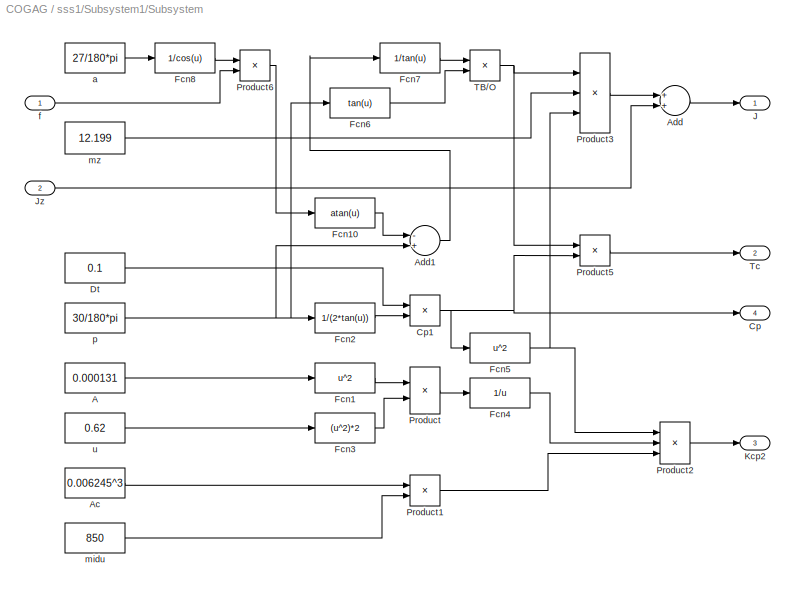
BLOCK [SubSystem] sss1/Subsystem1/Subsystem
  Ports = [2, 4]
  RequestExecContextInheritance = off
  SID = 793
BLOCK [Constant] sss1/Subsystem1/Subsystem/A
  SID = 796
  Value = 0.000131
BLOCK [Constant] sss1/Subsystem1/Subsystem/Ac
  SID = 797
  Value = 0.006245^3
BLOCK [Sum] sss1/Subsystem1/Subsystem/Add
  InputSameDT = off
  OutDataTypeStr = Inherit: Inherit via internal rule
  Ports = [2, 1]
  SID = 798
  SaturateOnIntegerOverflow = off
BLOCK [Sum] sss1/Subsystem1/Subsystem/Add1
  InputSameDT = off
  Inputs = -+
  OutDataTypeStr = Inherit: Inherit via internal rule
  Ports = [2, 1]
  SID = 799
  SaturateOnIntegerOverflow = off
BLOCK [Outport] sss1/Subsystem1/Subsystem/Cp
  IconDisplay = Port number
  Port = 4
  SID = 826
BLOCK [Product] sss1/Subsystem1/Subsystem/Cp1
  InputSameDT = off
  OutDataTypeStr = Inherit: Inherit via internal rule
  Ports = [2, 1]
  SID = 800
  SaturateOnIntegerOverflow = off
BLOCK [Constant] sss1/Subsystem1/Subsystem/Dt
  SID = 801
  Value = 0.1
BLOCK [Fcn] sss1/Subsystem1/Subsystem/Fcn1
  Expr = u^2
  SID = 802
BLOCK [Fcn] sss1/Subsystem1/Subsystem/Fcn10
  Expr = atan(u)
  SID = 803
BLOCK [Fcn] sss1/Subsystem1/Subsystem/Fcn2
  Expr = 1/(2*tan(u))
  SID = 804
BLOCK [Fcn] sss1/Subsystem1/Subsystem/Fcn3
  Expr = (u^2)*2
  SID = 805
BLOCK [Fcn] sss1/Subsystem1/Subsystem/Fcn4
  Expr = 1/u
  SID = 806
BLOCK [Fcn] sss1/Subsystem1/Subsystem/Fcn5
  Expr = u^2
  SID = 807
BLOCK [Fcn] sss1/Subsystem1/Subsystem/Fcn6
  Expr = tan(u)
  SID = 808
BLOCK [Fcn] sss1/Subsystem1/Subsystem/Fcn7
  Expr = 1/tan(u)
  SID = 809
BLOCK [Fcn] sss1/Subsystem1/Subsystem/Fcn8
  Expr = 1/cos(u)
  SID = 810
BLOCK [Outport] sss1/Subsystem1/Subsystem/J
  IconDisplay = Port number
  SID = 823
BLOCK [Inport] sss1/Subsystem1/Subsystem/Jz
  IconDisplay = Port number
  Port = 2
  SID = 795
BLOCK [Outport] sss1/Subsystem1/Subsystem/Kcp2
  IconDisplay = Port number
  Port = 3
  SID = 825
BLOCK [Product] sss1/Subsystem1/Subsystem/Product
  InputSameDT = off
  OutDataTypeStr = Inherit: Inherit via internal rule
  Ports = [2, 1]
  SID = 811
  SaturateOnIntegerOverflow = off
BLOCK [Product] sss1/Subsystem1/Subsystem/Product1
  InputSameDT = off
  OutDataTypeStr = Inherit: Inherit via internal rule
  Ports = [2, 1]
  SID = 812
  SaturateOnIntegerOverflow = off
BLOCK [Product] sss1/Subsystem1/Subsystem/Product2
  InputSameDT = off
  Inputs = 3
  OutDataTypeStr = Inherit: Inherit via internal rule
  Ports = [3, 1]
  SID = 813
  SaturateOnIntegerOverflow = off
BLOCK [Product] sss1/Subsystem1/Subsystem/Product3
  InputSameDT = off
  Inputs = 3
  OutDataTypeStr = Inherit: Inherit via internal rule
  Ports = [3, 1]
  SID = 814
  SaturateOnIntegerOverflow = off
BLOCK [Product] sss1/Subsystem1/Subsystem/Product5
  InputSameDT = off
  OutDataTypeStr = Inherit: Inherit via internal rule
  Ports = [2, 1]
  SID = 815
  SaturateOnIntegerOverflow = off
BLOCK [Product] sss1/Subsystem1/Subsystem/Product6
  InputSameDT = off
  OutDataTypeStr = Inherit: Inherit via internal rule
  Ports = [2, 1]
  SID = 816
  SaturateOnIntegerOverflow = off
BLOCK [Product] sss1/Subsystem1/Subsystem/TB//O
  InputSameDT = off
  OutDataTypeStr = Inherit: Inherit via internal rule
  Ports = [2, 1]
  SID = 817
  SaturateOnIntegerOverflow = off
BLOCK [Outport] sss1/Subsystem1/Subsystem/Tc
  IconDisplay = Port number
  Port = 2
  SID = 824
BLOCK [Constant] sss1/Subsystem1/Subsystem/a
  SID = 818
  Value = 27/180*pi
BLOCK [Inport] sss1/Subsystem1/Subsystem/f
  IconDisplay = Port number
  SID = 794
BLOCK [Constant] sss1/Subsystem1/Subsystem/midu
  SID = 819
  Value = 850
BLOCK [Constant] sss1/Subsystem1/Subsystem/mz
  SID = 820
  Value = 12.199
BLOCK [Constant] sss1/Subsystem1/Subsystem/p
  SID = 821
  Value = 30/180*pi
BLOCK [Constant] sss1/Subsystem1/Subsystem/u
  SID = 822
  Value = 0.62
BLOCK [Switch] sss1/Subsystem1/Switch
  InputSameDT = off
  SID = 827
  SaturateOnIntegerOverflow = off
BLOCK [Switch] sss1/Subsystem1/Switch1
  InputSameDT = off
  SID = 828
  SaturateOnIntegerOverflow = off
BLOCK [Switch] sss1/Subsystem1/Switch2
  InputSameDT = off
  SID = 829
  SaturateOnIntegerOverflow = off
BLOCK [Switch] sss1/Subsystem1/Switch3
  InputSameDT = off
  SID = 830
  SaturateOnIntegerOverflow = off
BLOCK [Inport] sss1/Subsystem1/Wz
  IconDisplay = Port number
  Port = 5
  SID = 776
BLOCK [Inport] sss1/Subsystem1/f
  IconDisplay = Port number
  Port = 4
  SID = 775
BLOCK [SubSystem] sss1/Subsystem2
  Ports = [4, 2]
  RequestExecContextInheritance = off
  SID = 835
BLOCK [Sum] sss1/Subsystem2/Add
  InputSameDT = off
  Inputs = +-
  OutDataTypeStr = Inherit: Inherit via internal rule
  Ports = [2, 1]
  SID = 840
  SaturateOnIntegerOverflow = off
BLOCK [Sum] sss1/Subsystem2/Add1
  InputSameDT = off
  OutDataTypeStr = Inherit: Inherit via internal rule
  Ports = [2, 1]
  SID = 841
  SaturateOnIntegerOverflow = off
BLOCK [Inport] sss1/Subsystem2/C2
  IconDisplay = Port number
  Port = 3
  SID = 838
BLOCK [Fcn] sss1/Subsystem2/Fcn
  Expr = 30*u/pi
  SID = 842
BLOCK [Integrator] sss1/Subsystem2/Integrator
  Ports = [1, 1]
  SID = 843
BLOCK [Inport] sss1/Subsystem2/J2
  IconDisplay = Port number
  Port = 2
  SID = 837
BLOCK [Outport] sss1/Subsystem2/M2
  IconDisplay = Port number
  SID = 845
BLOCK [Inport] sss1/Subsystem2/Mr
  IconDisplay = Port number
  SID = 836
BLOCK [Product] sss1/Subsystem2/Product
  InputSameDT = off
  OutDataTypeStr = Inherit: Inherit via internal rule
  Ports = [2, 1]
  RndMeth = Floor
  SID = 844
  SaturateOnIntegerOverflow = off
BLOCK [Outport] sss1/Subsystem2/n2
  IconDisplay = Port number
  Port = 2
  SID = 846
BLOCK [Inport] sss1/Subsystem2/n2in
  IconDisplay = Port number
  Port = 4
  SID = 839
BLOCK [SubSystem] sss1/Subsystem3
  Ports = [3, 3]
  RequestExecContextInheritance = off
  SID = 848
BLOCK [Outport] sss1/Subsystem3/C1
  IconDisplay = Port number
  Port = 3
  SID = 861
BLOCK [Derivative] sss1/Subsystem3/Derivative
  SID = 854
BLOCK [Fcn] sss1/Subsystem3/Fcn2
  Expr = u*pi/30
  SID = 855
BLOCK [Inport] sss1/Subsystem3/J1
  IconDisplay = Port number
  Port = 3
  SID = 851
BLOCK [Inport] sss1/Subsystem3/M1
  IconDisplay = Port number
  SID = 849
BLOCK [Outport] sss1/Subsystem3/Mfzf
  IconDisplay = Port number
  SID = 859
BLOCK [Product] sss1/Subsystem3/Product
  InputSameDT = off
  OutDataTypeStr = Inherit: Inherit via internal rule
  Ports = [2, 1]
  RndMeth = Floor
  SID = 856
  SaturateOnIntegerOverflow = off
BLOCK [Sum] sss1/Subsystem3/Sum
  IconShape = round
  InputSameDT = off
  Inputs = |+-
  OutDataTypeStr = Inherit: Inherit via internal rule
  Ports = [2, 1]
  SID = 857
  SaturateOnIntegerOverflow = off
BLOCK [Inport] sss1/Subsystem3/n1
  IconDisplay = Port number
  Port = 2
  SID = 850
BLOCK [Outport] sss1/Subsystem3/wf
  IconDisplay = Port number
  Port = 2
  SID = 860
BLOCK [Switch] sss1/Switch
  InputSameDT = off
  SID = 863
  SaturateOnIntegerOverflow = off
BLOCK [Inport] sss1/n1
  IconDisplay = Port number
  Port = 2
  SID = 756
BLOCK [Outport] sss1/n2
  IconDisplay = Port number
  Port = 3
  SID = 867
BLOCK [Inport] sss1/n2in
  IconDisplay = Port number
  Port = 3
  SID = 757
BLOCK [SubSystem] sss2
  Ports = [3, 3]
  RequestExecContextInheritance = off
  SID = 869
BLOCK [Sum] sss2/Add
  InputSameDT = off
  Inputs = +-
  OutDataTypeStr = Inherit: Inherit via internal rule
  Ports = [2, 1]
  SID = 873
  SaturateOnIntegerOverflow = off
BLOCK [Fcn] sss2/Fcn
  Expr = u*pi/30
  SID = 876
BLOCK [Outport] sss2/Lr
  IconDisplay = Port number
  Port = 2
  SID = 981
BLOCK [Inport] sss2/M1
  IconDisplay = Port number
  SID = 870
BLOCK [Outport] sss2/M2
  IconDisplay = Port number
  SID = 980
BLOCK [SubSystem] sss2/Subsystem
  Ports = [0, 4]
  RequestExecContextInheritance = off
  SID = 877
BLOCK [Constant] sss2/Subsystem/J
  SID = 878
  Value = 0.119507
BLOCK [Outport] sss2/Subsystem/J1
  IconDisplay = Port number
  SID = 882
BLOCK [Outport] sss2/Subsystem/J2
  IconDisplay = Port number
  Port = 3
  SID = 884
BLOCK [Constant] sss2/Subsystem/J2l
  SID = 879
  Value = 0.092495
BLOCK [Constant] sss2/Subsystem/Jk
  SID = 880
  Value = 0.0694875
BLOCK [Outport] sss2/Subsystem/Jz
  IconDisplay = Port number
  Port = 2
  SID = 883
BLOCK [Outport] sss2/Subsystem/f
  IconDisplay = Port number
  Port = 4
  SID = 885
BLOCK [Constant] sss2/Subsystem/f1
  SID = 881
  Value = 0.6
BLOCK [SubSystem] sss2/Subsystem1
  Ports = [5, 3]
  RequestExecContextInheritance = off
  SID = 886
BLOCK [Sum] sss2/Subsystem1/Add
  InputSameDT = off
  Inputs = +-
  OutDataTypeStr = Inherit: Inherit via internal rule
  Ports = [2, 1]
  SID = 892
  SaturateOnIntegerOverflow = off
BLOCK [Sum] sss2/Subsystem1/Add1
  InputSameDT = off
  Inputs = +-
  OutDataTypeStr = Inherit: Inherit via internal rule
  Ports = [2, 1]
  SID = 893
  SaturateOnIntegerOverflow = off
BLOCK [Sum] sss2/Subsystem1/Add2
  InputSameDT = off
  Inputs = +-
  OutDataTypeStr = Inherit: Inherit via internal rule
  Ports = [2, 1]
  SID = 894
  SaturateOnIntegerOverflow = off
BLOCK [Sum] sss2/Subsystem1/Add3
  InputSameDT = off
  OutDataTypeStr = Inherit: Inherit via internal rule
  Ports = [2, 1]
  SID = 895
  SaturateOnIntegerOverflow = off
BLOCK [Sum] sss2/Subsystem1/Add4
  InputSameDT = off
  Inputs = +-
  OutDataTypeStr = Inherit: Inherit via internal rule
  Ports = [2, 1]
  SID = 896
  SaturateOnIntegerOverflow = off
BLOCK [Inport] sss2/Subsystem1/C1
  IconDisplay = Port number
  Port = 3
  SID = 889
BLOCK [Outport] sss2/Subsystem1/C2
  IconDisplay = Port number
  Port = 3
  SID = 948
BLOCK [Constant] sss2/Subsystem1/Constant
  SID = 897
  Value = 0
BLOCK [Fcn] sss2/Subsystem1/Fcn
  Expr = 1/u
  SID = 898
BLOCK [Fcn] sss2/Subsystem1/Fcn1
  Expr = 1+u
  SID = 899
BLOCK [Fcn] sss2/Subsystem1/Fcn2
  Expr = u^2
  SID = 900
BLOCK [Integrator] sss2/Subsystem1/Integrator
  Ports = [1, 1]
  SID = 1019
BLOCK [Inport] sss2/Subsystem1/Jz
  IconDisplay = Port number
  Port = 2
  SID = 888
BLOCK [Outport] sss2/Subsystem1/Lr
  IconDisplay = Port number
  Port = 2
  SID = 947
BLOCK [Inport] sss2/Subsystem1/Mfzf
  IconDisplay = Port number
  SID = 887
BLOCK [Outport] sss2/Subsystem1/Mr
  IconDisplay = Port number
  SID = 946
BLOCK [Product] sss2/Subsystem1/Product
  InputSameDT = off
  OutDataTypeStr = Inherit: Inherit via internal rule
  Ports = [2, 1]
  RndMeth = Floor
  SID = 902
  SaturateOnIntegerOverflow = off
BLOCK [Product] sss2/Subsystem1/Product1
  InputSameDT = off
  OutDataTypeStr = Inherit: Inherit via internal rule
  Ports = [2, 1]
  RndMeth = Floor
  SID = 903
  SaturateOnIntegerOverflow = off
BLOCK [Product] sss2/Subsystem1/Product2
  InputSameDT = off
  OutDataTypeStr = Inherit: Inherit via internal rule
  Ports = [2, 1]
  RndMeth = Floor
  SID = 904
  SaturateOnIntegerOverflow = off
BLOCK [Product] sss2/Subsystem1/Product3
  InputSameDT = off
  Inputs = 3
  OutDataTypeStr = Inherit: Inherit via internal rule
  Ports = [3, 1]
  RndMeth = Floor
  SID = 905
  SaturateOnIntegerOverflow = off
BLOCK [Product] sss2/Subsystem1/Product4
  InputSameDT = off
  OutDataTypeStr = Inherit: Inherit via internal rule
  Ports = [2, 1]
  RndMeth = Floor
  SID = 906
  SaturateOnIntegerOverflow = off
BLOCK [Product] sss2/Subsystem1/Product5
  InputSameDT = off
  OutDataTypeStr = Inherit: Inherit via internal rule
  Ports = [2, 1]
  RndMeth = Floor
  SID = 907
  SaturateOnIntegerOverflow = off
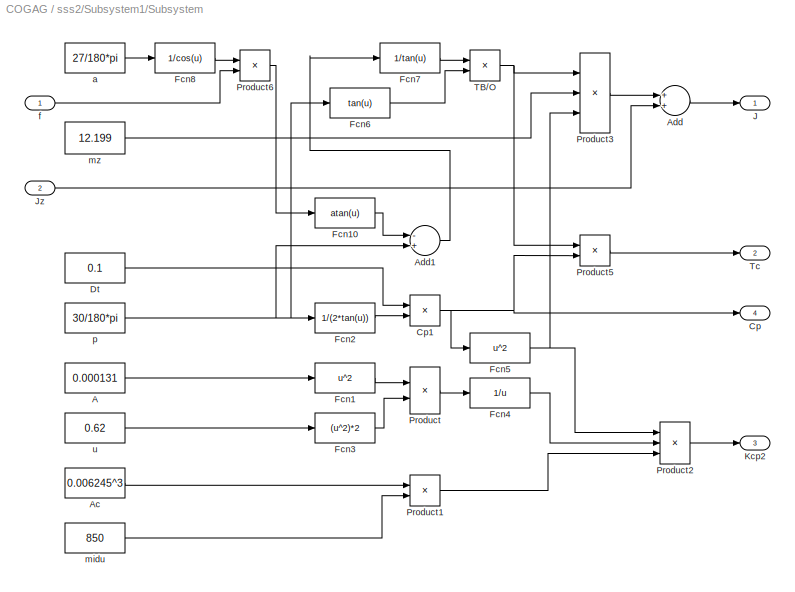
BLOCK [SubSystem] sss2/Subsystem1/Subsystem
  Ports = [2, 4]
  RequestExecContextInheritance = off
  SID = 908
BLOCK [Constant] sss2/Subsystem1/Subsystem/A
  SID = 911
  Value = 0.000131
BLOCK [Constant] sss2/Subsystem1/Subsystem/Ac
  SID = 912
  Value = 0.006245^3
BLOCK [Sum] sss2/Subsystem1/Subsystem/Add
  InputSameDT = off
  OutDataTypeStr = Inherit: Inherit via internal rule
  Ports = [2, 1]
  SID = 913
  SaturateOnIntegerOverflow = off
BLOCK [Sum] sss2/Subsystem1/Subsystem/Add1
  InputSameDT = off
  Inputs = -+
  OutDataTypeStr = Inherit: Inherit via internal rule
  Ports = [2, 1]
  SID = 914
  SaturateOnIntegerOverflow = off
BLOCK [Outport] sss2/Subsystem1/Subsystem/Cp
  IconDisplay = Port number
  Port = 4
  SID = 941
BLOCK [Product] sss2/Subsystem1/Subsystem/Cp1
  InputSameDT = off
  OutDataTypeStr = Inherit: Inherit via internal rule
  Ports = [2, 1]
  SID = 915
  SaturateOnIntegerOverflow = off
BLOCK [Constant] sss2/Subsystem1/Subsystem/Dt
  SID = 916
  Value = 0.1
BLOCK [Fcn] sss2/Subsystem1/Subsystem/Fcn1
  Expr = u^2
  SID = 917
BLOCK [Fcn] sss2/Subsystem1/Subsystem/Fcn10
  Expr = atan(u)
  SID = 918
BLOCK [Fcn] sss2/Subsystem1/Subsystem/Fcn2
  Expr = 1/(2*tan(u))
  SID = 919
BLOCK [Fcn] sss2/Subsystem1/Subsystem/Fcn3
  Expr = (u^2)*2
  SID = 920
BLOCK [Fcn] sss2/Subsystem1/Subsystem/Fcn4
  Expr = 1/u
  SID = 921
BLOCK [Fcn] sss2/Subsystem1/Subsystem/Fcn5
  Expr = u^2
  SID = 922
BLOCK [Fcn] sss2/Subsystem1/Subsystem/Fcn6
  Expr = tan(u)
  SID = 923
BLOCK [Fcn] sss2/Subsystem1/Subsystem/Fcn7
  Expr = 1/tan(u)
  SID = 924
BLOCK [Fcn] sss2/Subsystem1/Subsystem/Fcn8
  Expr = 1/cos(u)
  SID = 925
BLOCK [Outport] sss2/Subsystem1/Subsystem/J
  IconDisplay = Port number
  SID = 938
BLOCK [Inport] sss2/Subsystem1/Subsystem/Jz
  IconDisplay = Port number
  Port = 2
  SID = 910
BLOCK [Outport] sss2/Subsystem1/Subsystem/Kcp2
  IconDisplay = Port number
  Port = 3
  SID = 940
BLOCK [Product] sss2/Subsystem1/Subsystem/Product
  InputSameDT = off
  OutDataTypeStr = Inherit: Inherit via internal rule
  Ports = [2, 1]
  SID = 926
  SaturateOnIntegerOverflow = off
BLOCK [Product] sss2/Subsystem1/Subsystem/Product1
  InputSameDT = off
  OutDataTypeStr = Inherit: Inherit via internal rule
  Ports = [2, 1]
  SID = 927
  SaturateOnIntegerOverflow = off
BLOCK [Product] sss2/Subsystem1/Subsystem/Product2
  InputSameDT = off
  Inputs = 3
  OutDataTypeStr = Inherit: Inherit via internal rule
  Ports = [3, 1]
  SID = 928
  SaturateOnIntegerOverflow = off
BLOCK [Product] sss2/Subsystem1/Subsystem/Product3
  InputSameDT = off
  Inputs = 3
  OutDataTypeStr = Inherit: Inherit via internal rule
  Ports = [3, 1]
  SID = 929
  SaturateOnIntegerOverflow = off
BLOCK [Product] sss2/Subsystem1/Subsystem/Product5
  InputSameDT = off
  OutDataTypeStr = Inherit: Inherit via internal rule
  Ports = [2, 1]
  SID = 930
  SaturateOnIntegerOverflow = off
BLOCK [Product] sss2/Subsystem1/Subsystem/Product6
  InputSameDT = off
  OutDataTypeStr = Inherit: Inherit via internal rule
  Ports = [2, 1]
  SID = 931
  SaturateOnIntegerOverflow = off
BLOCK [Product] sss2/Subsystem1/Subsystem/TB//O
  InputSameDT = off
  OutDataTypeStr = Inherit: Inherit via internal rule
  Ports = [2, 1]
  SID = 932
  SaturateOnIntegerOverflow = off
BLOCK [Outport] sss2/Subsystem1/Subsystem/Tc
  IconDisplay = Port number
  Port = 2
  SID = 939
BLOCK [Constant] sss2/Subsystem1/Subsystem/a
  SID = 933
  Value = 27/180*pi
BLOCK [Inport] sss2/Subsystem1/Subsystem/f
  IconDisplay = Port number
  SID = 909
BLOCK [Constant] sss2/Subsystem1/Subsystem/midu
  SID = 934
  Value = 850
BLOCK [Constant] sss2/Subsystem1/Subsystem/mz
  SID = 935
  Value = 12.199
BLOCK [Constant] sss2/Subsystem1/Subsystem/p
  SID = 936
  Value = 30/180*pi
BLOCK [Constant] sss2/Subsystem1/Subsystem/u
  SID = 937
  Value = 0.62
BLOCK [Switch] sss2/Subsystem1/Switch
  InputSameDT = off
  SID = 942
  SaturateOnIntegerOverflow = off
BLOCK [Switch] sss2/Subsystem1/Switch1
  InputSameDT = off
  SID = 943
  SaturateOnIntegerOverflow = off
BLOCK [Switch] sss2/Subsystem1/Switch2
  InputSameDT = off
  SID = 944
  SaturateOnIntegerOverflow = off
BLOCK [Switch] sss2/Subsystem1/Switch3
  InputSameDT = off
  SID = 945
  SaturateOnIntegerOverflow = off
BLOCK [Inport] sss2/Subsystem1/Wz
  IconDisplay = Port number
  Port = 5
  SID = 891
BLOCK [Inport] sss2/Subsystem1/f
  IconDisplay = Port number
  Port = 4
  SID = 890
BLOCK [SubSystem] sss2/Subsystem2
  Ports = [4, 2]
  RequestExecContextInheritance = off
  SID = 950
BLOCK [Sum] sss2/Subsystem2/Add
  InputSameDT = off
  Inputs = +-
  OutDataTypeStr = Inherit: Inherit via internal rule
  Ports = [2, 1]
  SID = 955
  SaturateOnIntegerOverflow = off
BLOCK [Sum] sss2/Subsystem2/Add1
  InputSameDT = off
  OutDataTypeStr = Inherit: Inherit via internal rule
  Ports = [2, 1]
  SID = 956
  SaturateOnIntegerOverflow = off
BLOCK [Inport] sss2/Subsystem2/C2
  IconDisplay = Port number
  Port = 3
  SID = 953
BLOCK [Fcn] sss2/Subsystem2/Fcn
  Expr = 30*u/pi
  SID = 957
BLOCK [Integrator] sss2/Subsystem2/Integrator
  Ports = [1, 1]
  SID = 958
BLOCK [Inport] sss2/Subsystem2/J2
  IconDisplay = Port number
  Port = 2
  SID = 952
BLOCK [Outport] sss2/Subsystem2/M2
  IconDisplay = Port number
  SID = 960
BLOCK [Inport] sss2/Subsystem2/Mr
  IconDisplay = Port number
  SID = 951
BLOCK [Product] sss2/Subsystem2/Product
  InputSameDT = off
  OutDataTypeStr = Inherit: Inherit via internal rule
  Ports = [2, 1]
  RndMeth = Floor
  SID = 959
  SaturateOnIntegerOverflow = off
BLOCK [Outport] sss2/Subsystem2/n2
  IconDisplay = Port number
  Port = 2
  SID = 961
BLOCK [Inport] sss2/Subsystem2/n2in
  IconDisplay = Port number
  Port = 4
  SID = 954
BLOCK [SubSystem] sss2/Subsystem3
  Ports = [3, 3]
  RequestExecContextInheritance = off
  SID = 963
BLOCK [Outport] sss2/Subsystem3/C1
  IconDisplay = Port number
  Port = 3
  SID = 976
BLOCK [Derivative] sss2/Subsystem3/Derivative
  SID = 969
BLOCK [Fcn] sss2/Subsystem3/Fcn2
  Expr = u*pi/30
  SID = 970
BLOCK [Inport] sss2/Subsystem3/J1
  IconDisplay = Port number
  Port = 3
  SID = 966
BLOCK [Inport] sss2/Subsystem3/M1
  IconDisplay = Port number
  SID = 964
BLOCK [Outport] sss2/Subsystem3/Mfzf
  IconDisplay = Port number
  SID = 974
BLOCK [Product] sss2/Subsystem3/Product
  InputSameDT = off
  OutDataTypeStr = Inherit: Inherit via internal rule
  Ports = [2, 1]
  RndMeth = Floor
  SID = 971
  SaturateOnIntegerOverflow = off
BLOCK [Sum] sss2/Subsystem3/Sum
  IconShape = round
  InputSameDT = off
  Inputs = |+-
  OutDataTypeStr = Inherit: Inherit via internal rule
  Ports = [2, 1]
  SID = 972
  SaturateOnIntegerOverflow = off
BLOCK [Inport] sss2/Subsystem3/n1
  IconDisplay = Port number
  Port = 2
  SID = 965
BLOCK [Outport] sss2/Subsystem3/wf
  IconDisplay = Port number
  Port = 2
  SID = 975
BLOCK [Switch] sss2/Switch
  InputSameDT = off
  SID = 978
  SaturateOnIntegerOverflow = off
BLOCK [Inport] sss2/n1
  IconDisplay = Port number
  Port = 2
  SID = 871
BLOCK [Outport] sss2/n2
  IconDisplay = Port number
  Port = 3
  SID = 982
BLOCK [Inport] sss2/n2in
  IconDisplay = Port number
  Port = 3
  SID = 872
ANNOTATION (root): \n \n COGAG系统总体布置模型图
ANNOTATION GT1: \n \n 三轴燃气轮机动态仿真模型
ANNOTATION GT1/HC/compresser_TN/K: Cp
ANNOTATION GT1/HC/compresser_TN/K: Cv
ANNOTATION GT1/HT/turbine_TN/K: Cp
ANNOTATION GT1/HT/turbine_TN/K: Cv
ANNOTATION GT1/LC/compresser_TN/K: Cp
ANNOTATION GT1/LC/compresser_TN/K: Cv
ANNOTATION GT1/LT/turbine_TN/K: Cp
ANNOTATION GT1/LT/turbine_TN/K: Cv
ANNOTATION GT1/PT/turbine_TN/K1: Cp
ANNOTATION GT1/PT/turbine_TN/K1: Cv
ANNOTATION GT2/HC/compresser_TN/K: Cp
ANNOTATION GT2/HC/compresser_TN/K: Cv
ANNOTATION GT2/HT/turbine_TN/K: Cp
ANNOTATION GT2/HT/turbine_TN/K: Cv
ANNOTATION GT2/LC/compresser_TN/K: Cp
ANNOTATION GT2/LC/compresser_TN/K: Cv
ANNOTATION GT2/LT/turbine_TN/K: Cp
ANNOTATION GT2/LT/turbine_TN/K: Cv
ANNOTATION GT2/PT/turbine_TN/K1: Cp
ANNOTATION GT2/PT/turbine_TN/K1: Cv
ANNOTATION PID Control1: \n \n 模糊自整定PID控制器
ANNOTATION control: \n \n 并车控制器仿真模型
ANNOTATION gear box: \n \n 并车齿轮箱模型
ANNOTATION sss1: \n \n sss离合器模块
ANNOTATION sss1/Subsystem: \n \n 阻尼系数模块
ANNOTATION sss1/Subsystem1: \n \n 中间件
ANNOTATION sss1/Subsystem2: \n \n 从动件
ANNOTATION sss1/Subsystem3: \n \n 主动件
ANNOTATION sss2: \n \n sss离合器模块
ANNOTATION sss2/Subsystem1: \n \n 中间件
ANNOTATION sss2/Subsystem2: \n \n 从动件
ANNOTATION sss2/Subsystem3: \n \n 主动件
LINE GT1/Divide:1 -> GT1/Gain:1
LINE GT1/Fire box/Add2:1 -> GT1/Fire box/Gain2:1
LINE GT1/Fire box/Add:1 -> GT1/Fire box/Divide1:2
LINE GT1/Fire box/Constant:1 -> GT1/Fire box/Add:2
LINE GT1/Fire box/Divide1:1 -> GT1/Fire box/Product:2
LINE GT1/Fire box/Divide:1 -> GT1/Fire box/Product:1
LINE GT1/Fire box/G3:1 -> GT1/Fire box/Subtract:2
LINE GT1/Fire box/Gain2:1 -> GT1/Fire box/Add:1
NET GT1/Fire box/Gf:1 -> GT1/Fire box/Divide:1, GT1/Fire box/Subtract:1
LINE GT1/Fire box/Hu:1 -> GT1/Fire box/etab:1
LINE GT1/Fire box/K1:1 -> GT1/Fire box/P4:1
LINE GT1/Fire box/K2:1 -> GT1/Fire box/G4:1
LINE GT1/Fire box/P3:1 -> GT1/Fire box/K1:1
LINE GT1/Fire box/Product:1 -> GT1/Fire box/Sum:1
NET GT1/Fire box/Subtract:1 -> GT1/Fire box/Divide:2, GT1/Fire box/K2:1
LINE GT1/Fire box/Sum:1 -> GT1/Fire box/T4:1
NET GT1/Fire box/T3:1 -> GT1/Fire box/Add2:2, GT1/Fire box/Sum:2
LINE GT1/Fire box/Tk:1 -> GT1/Fire box/Add2:1
LINE GT1/Fire box/etab:1 -> GT1/Fire box/Divide1:1
LINE GT1/Fire box:1 -> GT1/HT:1
LINE GT1/Fire box:2 -> GT1/HT:2
LINE GT1/Fire box:3 -> GT1/HT:3
LINE GT1/Gain:1 -> GT1/MPT:1
NET GT1/Gf:1 -> GT1/Fire box:1, GT1/Gf_G1:1
LINE GT1/Gf_G1:1 -> GT1/LC:1
NET GT1/HC/G2:1 -> GT1/HC/Gain:1, GT1/HC/Scope6:1, GT1/HC/Subsystem1:1, GT1/HC/compresser_TN:1
LINE GT1/HC/Gain:1 -> GT1/HC/G3:1
NET GT1/HC/P2:1 -> GT1/HC/Product:1, GT1/HC/Subsystem1:2
LINE GT1/HC/Product:1 -> GT1/HC/P3:1
LINE GT1/HC/Subsystem1/Divide1:1 -> GT1/HC/Subsystem1/Divide2:2
LINE GT1/HC/Subsystem1/Divide2:1 -> GT1/HC/Subsystem1/Product:2
LINE GT1/HC/Subsystem1/Divide:1 -> GT1/HC/Subsystem1/Fcn:1
LINE GT1/HC/Subsystem1/Fcn:1 -> GT1/HC/Subsystem1/Product:1
LINE GT1/HC/Subsystem1/Gin:1 -> GT1/HC/Subsystem1/Divide2:1
LINE GT1/HC/Subsystem1/P0:1 -> GT1/HC/Subsystem1/Divide1:2
LINE GT1/HC/Subsystem1/Pin:1 -> GT1/HC/Subsystem1/Divide1:1
LINE GT1/HC/Subsystem1/Product:1 -> GT1/HC/Subsystem1/Gz:1
LINE GT1/HC/Subsystem1/T0:1 -> GT1/HC/Subsystem1/Divide:2
LINE GT1/HC/Subsystem1/Tin:1 -> GT1/HC/Subsystem1/Divide:1
NET GT1/HC/Subsystem1:1 -> GT1/HC/Scope1:1, GT1/HC/Subsystem2:1
NET GT1/HC/Subsystem2/Gz:1 -> GT1/HC/Subsystem2/Lookup\nTable (2-D)1:2, GT1/HC/Subsystem2/Lookup\nTable (2-D):2
LINE GT1/HC/Subsystem2/Lookup\nTable (2-D)1:1 -> GT1/HC/Subsystem2/eta:1
LINE GT1/HC/Subsystem2/Lookup\nTable (2-D):1 -> GT1/HC/Subsystem2/pi:1
NET GT1/HC/Subsystem2/nz:1 -> GT1/HC/Subsystem2/Lookup\nTable (2-D)1:1, GT1/HC/Subsystem2/Lookup\nTable (2-D):1
NET GT1/HC/Subsystem2:1 -> GT1/HC/Product:2, GT1/HC/Scope5:1, GT1/HC/compresser_TN:2
NET GT1/HC/Subsystem2:2 -> GT1/HC/Scope3:1, GT1/HC/compresser_TN:3
NET GT1/HC/T2:1 -> GT1/HC/Subsystem1:3, GT1/HC/compresser_TN:4, GT1/HC/zhehe:2
LINE GT1/HC/compresser_TN/Add1:1 -> GT1/HC/compresser_TN/Product1:1
LINE GT1/HC/compresser_TN/Add:1 -> GT1/HC/compresser_TN/Divide:2
NET GT1/HC/compresser_TN/Constant:1 -> GT1/HC/compresser_TN/Add1:2, GT1/HC/compresser_TN/Add:2
NET GT1/HC/compresser_TN/Divide:1 -> GT1/HC/compresser_TN/Add1:1, GT1/HC/compresser_TN/Product:1
LINE GT1/HC/compresser_TN/Fcn:1 -> GT1/HC/compresser_TN/Add:1
LINE GT1/HC/compresser_TN/Gin:1 -> GT1/HC/compresser_TN/Product:3
LINE GT1/HC/compresser_TN/K/Add1:1 -> GT1/HC/compresser_TN/K/Divide1:2
NET GT1/HC/compresser_TN/K/Add2:1 -> GT1/HC/compresser_TN/K/Gain2:1, GT1/HC/compresser_TN/K/Gain3:1
NET GT1/HC/compresser_TN/K/Add:1 -> GT1/HC/compresser_TN/K/Cp:1, GT1/HC/compresser_TN/K/Divide1:1
LINE GT1/HC/compresser_TN/K/Constant1:1 -> GT1/HC/compresser_TN/K/Add1:2
LINE GT1/HC/compresser_TN/K/Constant:1 -> GT1/HC/compresser_TN/K/Add:2
NET GT1/HC/compresser_TN/K/Divide1:1 -> GT1/HC/compresser_TN/K/K:1, GT1/HC/compresser_TN/K/Scope3:1
LINE GT1/HC/compresser_TN/K/Gain2:1 -> GT1/HC/compresser_TN/K/Add:1
LINE GT1/HC/compresser_TN/K/Gain3:1 -> GT1/HC/compresser_TN/K/Add1:1
LINE GT1/HC/compresser_TN/K/T1:1 -> GT1/HC/compresser_TN/K/Add2:1
LINE GT1/HC/compresser_TN/K/Tk:1 -> GT1/HC/compresser_TN/K/Add2:2
LINE GT1/HC/compresser_TN/K1:1 -> GT1/HC/compresser_TN/m:1
LINE GT1/HC/compresser_TN/K:2 -> GT1/HC/compresser_TN/Product:2
LINE GT1/HC/compresser_TN/Mux:1 -> GT1/HC/compresser_TN/Fcn:1
LINE GT1/HC/compresser_TN/Pi:1 -> GT1/HC/compresser_TN/Mux:1
NET GT1/HC/compresser_TN/Product1:1 -> GT1/HC/compresser_TN/Scope3:1, GT1/HC/compresser_TN/Tout:1
LINE GT1/HC/compresser_TN/Product:1 -> GT1/HC/compresser_TN/Nout:1
NET GT1/HC/compresser_TN/Tin:1 -> GT1/HC/compresser_TN/K:1, GT1/HC/compresser_TN/Product1:2, GT1/HC/compresser_TN/Product:4
LINE GT1/HC/compresser_TN/eta:1 -> GT1/HC/compresser_TN/Divide:1
LINE GT1/HC/compresser_TN/m:1 -> GT1/HC/compresser_TN/Mux:2
NET GT1/HC/compresser_TN:1 -> GT1/HC/Scope2:1, GT1/HC/T3:1
LINE GT1/HC/compresser_TN:2 -> GT1/HC/NHC:1
LINE GT1/HC/nH:1 -> GT1/HC/zhehe:1
LINE GT1/HC/zhehe/Divide:1 -> GT1/HC/zhehe/nz:1
LINE GT1/HC/zhehe/Fcn:1 -> GT1/HC/zhehe/Divide:2
LINE GT1/HC/zhehe/Tin:1 -> GT1/HC/zhehe/Fcn:1
LINE GT1/HC/zhehe/n:1 -> GT1/HC/zhehe/Divide:1
NET GT1/HC/zhehe:1 -> GT1/HC/Scope4:1, GT1/HC/Subsystem2:2
LINE GT1/HC:1 -> GT1/Fire box:2
LINE GT1/HC:2 -> GT1/Fire box:3
NET GT1/HC:3 -> GT1/Fire box:4, GT1/Tout:1
LINE GT1/HC:4 -> GT1/shaft-H:1
NET GT1/HT/Divide:1 -> GT1/HT/pi:1, GT1/HT/turbine_TN:1
NET GT1/HT/G4:1 -> GT1/HT/G5:1, GT1/HT/turbine_TN:4
LINE GT1/HT/P4:1 -> GT1/HT/Divide:1
LINE GT1/HT/T4:1 -> GT1/HT/turbine_TN:3
LINE GT1/HT/n2-etaH:1 -> GT1/HT/turbine_TN:2
NET GT1/HT/n2-p5:1 -> GT1/HT/Divide:2, GT1/HT/P5:1, GT1/HT/Scope3:1
NET GT1/HT/nH:1 -> GT1/HT/n2-etaH:1, GT1/HT/n2-p5:1, GT1/HT/pi2:1
LINE GT1/HT/turbine_TN/Add1:1 -> GT1/HT/turbine_TN/Product1:1
LINE GT1/HT/turbine_TN/Add:1 -> GT1/HT/turbine_TN/Product2:2
NET GT1/HT/turbine_TN/Constant:1 -> GT1/HT/turbine_TN/Add1:2, GT1/HT/turbine_TN/Add:2
LINE GT1/HT/turbine_TN/Fcn:1 -> GT1/HT/turbine_TN/Add:1
LINE GT1/HT/turbine_TN/Gin:1 -> GT1/HT/turbine_TN/Product:3
LINE GT1/HT/turbine_TN/K/Add1:1 -> GT1/HT/turbine_TN/K/Divide1:2
NET GT1/HT/turbine_TN/K/Add2:1 -> GT1/HT/turbine_TN/K/Gain2:1, GT1/HT/turbine_TN/K/Gain3:1
NET GT1/HT/turbine_TN/K/Add:1 -> GT1/HT/turbine_TN/K/Cp:1, GT1/HT/turbine_TN/K/Divide1:1
LINE GT1/HT/turbine_TN/K/Constant1:1 -> GT1/HT/turbine_TN/K/Add1:2
LINE GT1/HT/turbine_TN/K/Constant:1 -> GT1/HT/turbine_TN/K/Add:2
LINE GT1/HT/turbine_TN/K/Divide1:1 -> GT1/HT/turbine_TN/K/K:1
LINE GT1/HT/turbine_TN/K/Gain2:1 -> GT1/HT/turbine_TN/K/Add:1
LINE GT1/HT/turbine_TN/K/Gain3:1 -> GT1/HT/turbine_TN/K/Add1:1
LINE GT1/HT/turbine_TN/K/T1:1 -> GT1/HT/turbine_TN/K/Add2:1
LINE GT1/HT/turbine_TN/K/Tk:1 -> GT1/HT/turbine_TN/K/Add2:2
LINE GT1/HT/turbine_TN/K1:1 -> GT1/HT/turbine_TN/m:1
LINE GT1/HT/turbine_TN/K:2 -> GT1/HT/turbine_TN/Product:2
LINE GT1/HT/turbine_TN/Mux:1 -> GT1/HT/turbine_TN/Fcn:1
LINE GT1/HT/turbine_TN/Pi:1 -> GT1/HT/turbine_TN/Mux:1
LINE GT1/HT/turbine_TN/Product1:1 -> GT1/HT/turbine_TN/Tout:1
NET GT1/HT/turbine_TN/Product2:1 -> GT1/HT/turbine_TN/Add1:1, GT1/HT/turbine_TN/Product:1
LINE GT1/HT/turbine_TN/Product:1 -> GT1/HT/turbine_TN/Nout:1
NET GT1/HT/turbine_TN/Tin:1 -> GT1/HT/turbine_TN/K:1, GT1/HT/turbine_TN/Product1:2, GT1/HT/turbine_TN/Product:4
LINE GT1/HT/turbine_TN/eta:1 -> GT1/HT/turbine_TN/Product2:1
LINE GT1/HT/turbine_TN/m:1 -> GT1/HT/turbine_TN/Mux:2
NET GT1/HT/turbine_TN:1 -> GT1/HT/T5:1, GT1/HT/pi1:1
LINE GT1/HT/turbine_TN:2 -> GT1/HT/NHT:1
LINE GT1/HT:1 -> GT1/LT:1
LINE GT1/HT:2 -> GT1/LT:2
LINE GT1/HT:3 -> GT1/LT:3
LINE GT1/HT:4 -> GT1/shaft-H:2
LINE GT1/K1:1 -> GT1/PT:1
LINE GT1/K:1 -> GT1/LC:2
NET GT1/LC/G1:1 -> GT1/LC/Gain:1, GT1/LC/Subsystem1:1, GT1/LC/compresser_TN:1
LINE GT1/LC/Gain:1 -> GT1/LC/G2:1
NET GT1/LC/P1:1 -> GT1/LC/Product:1, GT1/LC/Subsystem1:2
LINE GT1/LC/Product:1 -> GT1/LC/P2:1
LINE GT1/LC/Subsystem1/Divide1:1 -> GT1/LC/Subsystem1/Divide2:2
LINE GT1/LC/Subsystem1/Divide2:1 -> GT1/LC/Subsystem1/Product:2
LINE GT1/LC/Subsystem1/Divide:1 -> GT1/LC/Subsystem1/Fcn:1
LINE GT1/LC/Subsystem1/Fcn:1 -> GT1/LC/Subsystem1/Product:1
LINE GT1/LC/Subsystem1/Gin:1 -> GT1/LC/Subsystem1/Divide2:1
LINE GT1/LC/Subsystem1/P0:1 -> GT1/LC/Subsystem1/Divide1:2
LINE GT1/LC/Subsystem1/Pin:1 -> GT1/LC/Subsystem1/Divide1:1
LINE GT1/LC/Subsystem1/Product:1 -> GT1/LC/Subsystem1/Gz:1
LINE GT1/LC/Subsystem1/T0:1 -> GT1/LC/Subsystem1/Divide:2
LINE GT1/LC/Subsystem1/Tin:1 -> GT1/LC/Subsystem1/Divide:1
NET GT1/LC/Subsystem1:1 -> GT1/LC/Scope3:1, GT1/LC/Subsystem3:1
NET GT1/LC/Subsystem3/Gz:1 -> GT1/LC/Subsystem3/Lookup\nTable (2-D)1:2, GT1/LC/Subsystem3/Lookup\nTable (2-D):2
LINE GT1/LC/Subsystem3/Lookup\nTable (2-D)1:1 -> GT1/LC/Subsystem3/eta:1
LINE GT1/LC/Subsystem3/Lookup\nTable (2-D):1 -> GT1/LC/Subsystem3/pi:1
NET GT1/LC/Subsystem3/nz:1 -> GT1/LC/Subsystem3/Lookup\nTable (2-D)1:1, GT1/LC/Subsystem3/Lookup\nTable (2-D):1
NET GT1/LC/Subsystem3:1 -> GT1/LC/Product:2, GT1/LC/Scope2:1, GT1/LC/compresser_TN:2
LINE GT1/LC/Subsystem3:2 -> GT1/LC/compresser_TN:3
NET GT1/LC/T1:1 -> GT1/LC/Subsystem1:3, GT1/LC/compresser_TN:4, GT1/LC/zhehe:2
LINE GT1/LC/compresser_TN/Add1:1 -> GT1/LC/compresser_TN/Product1:1
LINE GT1/LC/compresser_TN/Add:1 -> GT1/LC/compresser_TN/Divide:2
NET GT1/LC/compresser_TN/Constant:1 -> GT1/LC/compresser_TN/Add1:2, GT1/LC/compresser_TN/Add:2
NET GT1/LC/compresser_TN/Divide:1 -> GT1/LC/compresser_TN/Add1:1, GT1/LC/compresser_TN/Product:1
LINE GT1/LC/compresser_TN/Fcn:1 -> GT1/LC/compresser_TN/Add:1
LINE GT1/LC/compresser_TN/Gin:1 -> GT1/LC/compresser_TN/Product:3
LINE GT1/LC/compresser_TN/K/Add1:1 -> GT1/LC/compresser_TN/K/Divide1:2
NET GT1/LC/compresser_TN/K/Add2:1 -> GT1/LC/compresser_TN/K/Gain2:1, GT1/LC/compresser_TN/K/Gain3:1
NET GT1/LC/compresser_TN/K/Add:1 -> GT1/LC/compresser_TN/K/Cp:1, GT1/LC/compresser_TN/K/Divide1:1
LINE GT1/LC/compresser_TN/K/Constant1:1 -> GT1/LC/compresser_TN/K/Add1:2
LINE GT1/LC/compresser_TN/K/Constant:1 -> GT1/LC/compresser_TN/K/Add:2
LINE GT1/LC/compresser_TN/K/Divide1:1 -> GT1/LC/compresser_TN/K/K:1
LINE GT1/LC/compresser_TN/K/Gain2:1 -> GT1/LC/compresser_TN/K/Add:1
LINE GT1/LC/compresser_TN/K/Gain3:1 -> GT1/LC/compresser_TN/K/Add1:1
LINE GT1/LC/compresser_TN/K/T1:1 -> GT1/LC/compresser_TN/K/Add2:1
LINE GT1/LC/compresser_TN/K/Tk:1 -> GT1/LC/compresser_TN/K/Add2:2
LINE GT1/LC/compresser_TN/K1:1 -> GT1/LC/compresser_TN/m:1
LINE GT1/LC/compresser_TN/K:2 -> GT1/LC/compresser_TN/Product:2
LINE GT1/LC/compresser_TN/Mux:1 -> GT1/LC/compresser_TN/Fcn:1
LINE GT1/LC/compresser_TN/Pi:1 -> GT1/LC/compresser_TN/Mux:1
LINE GT1/LC/compresser_TN/Product1:1 -> GT1/LC/compresser_TN/Tout:1
LINE GT1/LC/compresser_TN/Product:1 -> GT1/LC/compresser_TN/Nout:1
NET GT1/LC/compresser_TN/Tin:1 -> GT1/LC/compresser_TN/K:1, GT1/LC/compresser_TN/Product1:2, GT1/LC/compresser_TN/Product:4
LINE GT1/LC/compresser_TN/eta:1 -> GT1/LC/compresser_TN/Divide:1
LINE GT1/LC/compresser_TN/m:1 -> GT1/LC/compresser_TN/Mux:2
NET GT1/LC/compresser_TN:1 -> GT1/LC/Scope4:1, GT1/LC/T2:1
LINE GT1/LC/compresser_TN:2 -> GT1/LC/NLC:1
LINE GT1/LC/nL:1 -> GT1/LC/zhehe:1
LINE GT1/LC/zhehe/Divide:1 -> GT1/LC/zhehe/nz:1
LINE GT1/LC/zhehe/Fcn:1 -> GT1/LC/zhehe/Divide:2
LINE GT1/LC/zhehe/Tin:1 -> GT1/LC/zhehe/Fcn:1
LINE GT1/LC/zhehe/n:1 -> GT1/LC/zhehe/Divide:1
NET GT1/LC/zhehe:1 -> GT1/LC/Scope1:1, GT1/LC/Subsystem3:2
LINE GT1/LC:1 -> GT1/HC:1
LINE GT1/LC:2 -> GT1/HC:2
LINE GT1/LC:3 -> GT1/HC:3
LINE GT1/LC:4 -> GT1/shaft-L:1
NET GT1/LT/Divide:1 -> GT1/LT/Scope3:1, GT1/LT/turbine_TN:1
NET GT1/LT/G5:1 -> GT1/LT/G6:1, GT1/LT/turbine_TN:4
LINE GT1/LT/P5:1 -> GT1/LT/Divide:1
LINE GT1/LT/T5:1 -> GT1/LT/turbine_TN:3
NET GT1/LT/n1-p6:1 -> GT1/LT/Divide:2, GT1/LT/P6:1, GT1/LT/Scope1:1
LINE GT1/LT/n2-etaH:1 -> GT1/LT/turbine_TN:2
NET GT1/LT/nL:1 -> GT1/LT/n1-p6:1, GT1/LT/n2-etaH:1
LINE GT1/LT/turbine_TN/Add1:1 -> GT1/LT/turbine_TN/Product1:1
LINE GT1/LT/turbine_TN/Add:1 -> GT1/LT/turbine_TN/Product2:2
NET GT1/LT/turbine_TN/Constant:1 -> GT1/LT/turbine_TN/Add1:2, GT1/LT/turbine_TN/Add:2
LINE GT1/LT/turbine_TN/Fcn:1 -> GT1/LT/turbine_TN/Add:1
LINE GT1/LT/turbine_TN/Gin:1 -> GT1/LT/turbine_TN/Product:3
LINE GT1/LT/turbine_TN/K/Add1:1 -> GT1/LT/turbine_TN/K/Divide1:2
NET GT1/LT/turbine_TN/K/Add2:1 -> GT1/LT/turbine_TN/K/Gain2:1, GT1/LT/turbine_TN/K/Gain3:1
NET GT1/LT/turbine_TN/K/Add:1 -> GT1/LT/turbine_TN/K/Cp:1, GT1/LT/turbine_TN/K/Divide1:1
LINE GT1/LT/turbine_TN/K/Constant1:1 -> GT1/LT/turbine_TN/K/Add1:2
LINE GT1/LT/turbine_TN/K/Constant:1 -> GT1/LT/turbine_TN/K/Add:2
LINE GT1/LT/turbine_TN/K/Divide1:1 -> GT1/LT/turbine_TN/K/K:1
LINE GT1/LT/turbine_TN/K/Gain2:1 -> GT1/LT/turbine_TN/K/Add:1
LINE GT1/LT/turbine_TN/K/Gain3:1 -> GT1/LT/turbine_TN/K/Add1:1
LINE GT1/LT/turbine_TN/K/T1:1 -> GT1/LT/turbine_TN/K/Add2:1
LINE GT1/LT/turbine_TN/K/Tk:1 -> GT1/LT/turbine_TN/K/Add2:2
LINE GT1/LT/turbine_TN/K1:1 -> GT1/LT/turbine_TN/m:1
LINE GT1/LT/turbine_TN/K:2 -> GT1/LT/turbine_TN/Product:2
LINE GT1/LT/turbine_TN/Mux:1 -> GT1/LT/turbine_TN/Fcn:1
LINE GT1/LT/turbine_TN/Pi:1 -> GT1/LT/turbine_TN/Mux:1
LINE GT1/LT/turbine_TN/Product1:1 -> GT1/LT/turbine_TN/Tout:1
NET GT1/LT/turbine_TN/Product2:1 -> GT1/LT/turbine_TN/Add1:1, GT1/LT/turbine_TN/Product:1
LINE GT1/LT/turbine_TN/Product:1 -> GT1/LT/turbine_TN/Nout:1
NET GT1/LT/turbine_TN/Tin:1 -> GT1/LT/turbine_TN/K:1, GT1/LT/turbine_TN/Product1:2, GT1/LT/turbine_TN/Product:4
LINE GT1/LT/turbine_TN/eta:1 -> GT1/LT/turbine_TN/Product2:1
LINE GT1/LT/turbine_TN/m:1 -> GT1/LT/turbine_TN/Mux:2
NET GT1/LT/turbine_TN:1 -> GT1/LT/Scope2:1, GT1/LT/T6:1
LINE GT1/LT/turbine_TN:2 -> GT1/LT/NLT:1
LINE GT1/LT:1 -> GT1/PT:2
LINE GT1/LT:2 -> GT1/PT:3
LINE GT1/LT:3 -> GT1/PT:4
LINE GT1/LT:4 -> GT1/shaft-L:2
NET GT1/P0:1 -> GT1/K1:1, GT1/K:1
NET GT1/PT/Divide:1 -> GT1/PT/Pi-eta1:1, GT1/PT/Scope6:1, GT1/PT/turbine_TN:1
NET GT1/PT/G6:1 -> GT1/PT/G7:1, GT1/PT/turbine_TN:3
LINE GT1/PT/P6:1 -> GT1/PT/Divide:1
LINE GT1/PT/P7:1 -> GT1/PT/Divide:2
LINE GT1/PT/Pi-eta1:1 -> GT1/PT/turbine_TN:2
LINE GT1/PT/Pi-eta2:1 -> GT1/PT/nPT:1
LINE GT1/PT/T6:1 -> GT1/PT/turbine_TN:4
LINE GT1/PT/turbine_TN/Add1:1 -> GT1/PT/turbine_TN/Product1:1
LINE GT1/PT/turbine_TN/Add:1 -> GT1/PT/turbine_TN/Product2:2
NET GT1/PT/turbine_TN/Constant:1 -> GT1/PT/turbine_TN/Add1:2, GT1/PT/turbine_TN/Add:2
LINE GT1/PT/turbine_TN/Fcn:1 -> GT1/PT/turbine_TN/Add:1
LINE GT1/PT/turbine_TN/Gin:1 -> GT1/PT/turbine_TN/Product:3
LINE GT1/PT/turbine_TN/K1/Add1:1 -> GT1/PT/turbine_TN/K1/Divide1:2
NET GT1/PT/turbine_TN/K1/Add2:1 -> GT1/PT/turbine_TN/K1/Gain2:1, GT1/PT/turbine_TN/K1/Gain3:1
NET GT1/PT/turbine_TN/K1/Add:1 -> GT1/PT/turbine_TN/K1/Cp:1, GT1/PT/turbine_TN/K1/Divide1:1
LINE GT1/PT/turbine_TN/K1/Constant1:1 -> GT1/PT/turbine_TN/K1/Add1:2
LINE GT1/PT/turbine_TN/K1/Constant:1 -> GT1/PT/turbine_TN/K1/Add:2
LINE GT1/PT/turbine_TN/K1/Divide1:1 -> GT1/PT/turbine_TN/K1/K:1
LINE GT1/PT/turbine_TN/K1/Gain2:1 -> GT1/PT/turbine_TN/K1/Add:1
LINE GT1/PT/turbine_TN/K1/Gain3:1 -> GT1/PT/turbine_TN/K1/Add1:1
LINE GT1/PT/turbine_TN/K1/T1:1 -> GT1/PT/turbine_TN/K1/Add2:1
LINE GT1/PT/turbine_TN/K1/Tk:1 -> GT1/PT/turbine_TN/K1/Add2:2
LINE GT1/PT/turbine_TN/K1:1 -> GT1/PT/turbine_TN/m:1
LINE GT1/PT/turbine_TN/K1:2 -> GT1/PT/turbine_TN/Product:2
LINE GT1/PT/turbine_TN/Mux:1 -> GT1/PT/turbine_TN/Fcn:1
LINE GT1/PT/turbine_TN/Pi:1 -> GT1/PT/turbine_TN/Mux:1
LINE GT1/PT/turbine_TN/Product1:1 -> GT1/PT/turbine_TN/Tout:1
NET GT1/PT/turbine_TN/Product2:1 -> GT1/PT/turbine_TN/Add1:1, GT1/PT/turbine_TN/Product:1
LINE GT1/PT/turbine_TN/Product:1 -> GT1/PT/turbine_TN/Nout:1
NET GT1/PT/turbine_TN/Tin:1 -> GT1/PT/turbine_TN/K1:1, GT1/PT/turbine_TN/Product1:2, GT1/PT/turbine_TN/Product:4
LINE GT1/PT/turbine_TN/eta:1 -> GT1/PT/turbine_TN/Product2:1
LINE GT1/PT/turbine_TN/m:1 -> GT1/PT/turbine_TN/Mux:2
LINE GT1/PT/turbine_TN:1 -> GT1/PT/T7:1
NET GT1/PT/turbine_TN:2 -> GT1/PT/NPT:1, GT1/PT/Pi-eta2:1
LINE GT1/PT:1 -> GT1/Out1:1
LINE GT1/PT:2 -> GT1/Out2:1
NET GT1/PT:3 -> GT1/Divide:1, GT1/NPT:1
NET GT1/PT:4 -> GT1/Divide:2, GT1/nPT:1
LINE GT1/T1:1 -> GT1/LC:3
LINE GT1/W:1 -> GT1/Gf:1
LINE GT1/shaft-H/Add:1 -> GT1/shaft-H/Divide:1
LINE GT1/shaft-H/Divide:1 -> GT1/shaft-H/Integrator:1
LINE GT1/shaft-H/Fcn1:1 -> GT1/shaft-H/Divide:3
LINE GT1/shaft-H/Fcn:1 -> GT1/shaft-H/Gain:1
LINE GT1/shaft-H/Gain3:1 -> GT1/shaft-H/nH:1
LINE GT1/shaft-H/Gain:1 -> GT1/shaft-H/Divide:2
NET GT1/shaft-H/Integrator:1 -> GT1/shaft-H/Fcn1:1, GT1/shaft-H/Gain3:1
LINE GT1/shaft-H/J:1 -> GT1/shaft-H/Fcn:1
LINE GT1/shaft-H/NT:1 -> GT1/shaft-H/Add:2
LINE GT1/shaft-H/Nc:1 -> GT1/shaft-H/Add:1
NET GT1/shaft-H:1 -> GT1/Gout1:1, GT1/HC:4, GT1/HT:4
LINE GT1/shaft-L/Add:1 -> GT1/shaft-L/Divide:1
LINE GT1/shaft-L/Divide:1 -> GT1/shaft-L/Integrator:1
LINE GT1/shaft-L/Fcn1:1 -> GT1/shaft-L/Divide:3
LINE GT1/shaft-L/Fcn:1 -> GT1/shaft-L/Gain:1
LINE GT1/shaft-L/Gain2:1 -> GT1/shaft-L/nL:1
LINE GT1/shaft-L/Gain:1 -> GT1/shaft-L/Divide:2
NET GT1/shaft-L/Integrator:1 -> GT1/shaft-L/Fcn1:1, GT1/shaft-L/Gain2:1
LINE GT1/shaft-L/J:1 -> GT1/shaft-L/Fcn:1
LINE GT1/shaft-L/NT:1 -> GT1/shaft-L/Add:2
LINE GT1/shaft-L/Nc:1 -> GT1/shaft-L/Add:1
NET GT1/shaft-L:1 -> GT1/Gout2:1, GT1/LC:4, GT1/LT:4
NET GT1:3 -> M3:1, control:2
NET GT1:4 -> PID Control1:2, control:1, sss1:2, sss2:3
NET GT1:5 -> M1:1, sss1:1
LINE GT2/Divide:1 -> GT2/Gain:1
LINE GT2/Fire box/Add2:1 -> GT2/Fire box/Gain2:1
LINE GT2/Fire box/Add:1 -> GT2/Fire box/Divide1:2
LINE GT2/Fire box/Constant:1 -> GT2/Fire box/Add:2
LINE GT2/Fire box/Divide1:1 -> GT2/Fire box/Product:2
LINE GT2/Fire box/Divide:1 -> GT2/Fire box/Product:1
LINE GT2/Fire box/G3:1 -> GT2/Fire box/Subtract:2
LINE GT2/Fire box/Gain2:1 -> GT2/Fire box/Add:1
NET GT2/Fire box/Gf:1 -> GT2/Fire box/Divide:1, GT2/Fire box/Subtract:1
LINE GT2/Fire box/Hu:1 -> GT2/Fire box/etab:1
LINE GT2/Fire box/K1:1 -> GT2/Fire box/P4:1
LINE GT2/Fire box/K2:1 -> GT2/Fire box/G4:1
LINE GT2/Fire box/P3:1 -> GT2/Fire box/K1:1
LINE GT2/Fire box/Product:1 -> GT2/Fire box/Sum:1
NET GT2/Fire box/Subtract:1 -> GT2/Fire box/Divide:2, GT2/Fire box/K2:1
LINE GT2/Fire box/Sum:1 -> GT2/Fire box/T4:1
NET GT2/Fire box/T3:1 -> GT2/Fire box/Add2:2, GT2/Fire box/Sum:2
LINE GT2/Fire box/Tk:1 -> GT2/Fire box/Add2:1
LINE GT2/Fire box/etab:1 -> GT2/Fire box/Divide1:1
LINE GT2/Fire box:1 -> GT2/HT:1
LINE GT2/Fire box:2 -> GT2/HT:2
LINE GT2/Fire box:3 -> GT2/HT:3
LINE GT2/Gain:1 -> GT2/MPT:1
NET GT2/Gf:1 -> GT2/Fire box:1, GT2/Gf_G1:1
LINE GT2/Gf_G1:1 -> GT2/LC:1
NET GT2/HC/G2:1 -> GT2/HC/Gain:1, GT2/HC/Scope6:1, GT2/HC/Subsystem1:1, GT2/HC/compresser_TN:1
LINE GT2/HC/Gain:1 -> GT2/HC/G3:1
NET GT2/HC/P2:1 -> GT2/HC/Product:1, GT2/HC/Subsystem1:2
LINE GT2/HC/Product:1 -> GT2/HC/P3:1
LINE GT2/HC/Subsystem1/Divide1:1 -> GT2/HC/Subsystem1/Divide2:2
LINE GT2/HC/Subsystem1/Divide2:1 -> GT2/HC/Subsystem1/Product:2
LINE GT2/HC/Subsystem1/Divide:1 -> GT2/HC/Subsystem1/Fcn:1
LINE GT2/HC/Subsystem1/Fcn:1 -> GT2/HC/Subsystem1/Product:1
LINE GT2/HC/Subsystem1/Gin:1 -> GT2/HC/Subsystem1/Divide2:1
LINE GT2/HC/Subsystem1/P0:1 -> GT2/HC/Subsystem1/Divide1:2
LINE GT2/HC/Subsystem1/Pin:1 -> GT2/HC/Subsystem1/Divide1:1
LINE GT2/HC/Subsystem1/Product:1 -> GT2/HC/Subsystem1/Gz:1
LINE GT2/HC/Subsystem1/T0:1 -> GT2/HC/Subsystem1/Divide:2
LINE GT2/HC/Subsystem1/Tin:1 -> GT2/HC/Subsystem1/Divide:1
NET GT2/HC/Subsystem1:1 -> GT2/HC/Scope1:1, GT2/HC/Subsystem2:1
NET GT2/HC/Subsystem2/Gz:1 -> GT2/HC/Subsystem2/Lookup\nTable (2-D)1:2, GT2/HC/Subsystem2/Lookup\nTable (2-D):2
LINE GT2/HC/Subsystem2/Lookup\nTable (2-D)1:1 -> GT2/HC/Subsystem2/eta:1
LINE GT2/HC/Subsystem2/Lookup\nTable (2-D):1 -> GT2/HC/Subsystem2/pi:1
NET GT2/HC/Subsystem2/nz:1 -> GT2/HC/Subsystem2/Lookup\nTable (2-D)1:1, GT2/HC/Subsystem2/Lookup\nTable (2-D):1
NET GT2/HC/Subsystem2:1 -> GT2/HC/Product:2, GT2/HC/Scope5:1, GT2/HC/compresser_TN:2
NET GT2/HC/Subsystem2:2 -> GT2/HC/Scope3:1, GT2/HC/compresser_TN:3
NET GT2/HC/T2:1 -> GT2/HC/Subsystem1:3, GT2/HC/compresser_TN:4, GT2/HC/zhehe:2
LINE GT2/HC/compresser_TN/Add1:1 -> GT2/HC/compresser_TN/Product1:1
LINE GT2/HC/compresser_TN/Add:1 -> GT2/HC/compresser_TN/Divide:2
NET GT2/HC/compresser_TN/Constant:1 -> GT2/HC/compresser_TN/Add1:2, GT2/HC/compresser_TN/Add:2
NET GT2/HC/compresser_TN/Divide:1 -> GT2/HC/compresser_TN/Add1:1, GT2/HC/compresser_TN/Product:1
LINE GT2/HC/compresser_TN/Fcn:1 -> GT2/HC/compresser_TN/Add:1
LINE GT2/HC/compresser_TN/Gin:1 -> GT2/HC/compresser_TN/Product:3
LINE GT2/HC/compresser_TN/K/Add1:1 -> GT2/HC/compresser_TN/K/Divide1:2
NET GT2/HC/compresser_TN/K/Add2:1 -> GT2/HC/compresser_TN/K/Gain2:1, GT2/HC/compresser_TN/K/Gain3:1
NET GT2/HC/compresser_TN/K/Add:1 -> GT2/HC/compresser_TN/K/Cp:1, GT2/HC/compresser_TN/K/Divide1:1
LINE GT2/HC/compresser_TN/K/Constant1:1 -> GT2/HC/compresser_TN/K/Add1:2
LINE GT2/HC/compresser_TN/K/Constant:1 -> GT2/HC/compresser_TN/K/Add:2
NET GT2/HC/compresser_TN/K/Divide1:1 -> GT2/HC/compresser_TN/K/K:1, GT2/HC/compresser_TN/K/Scope3:1
LINE GT2/HC/compresser_TN/K/Gain2:1 -> GT2/HC/compresser_TN/K/Add:1
LINE GT2/HC/compresser_TN/K/Gain3:1 -> GT2/HC/compresser_TN/K/Add1:1
LINE GT2/HC/compresser_TN/K/T1:1 -> GT2/HC/compresser_TN/K/Add2:1
LINE GT2/HC/compresser_TN/K/Tk:1 -> GT2/HC/compresser_TN/K/Add2:2
LINE GT2/HC/compresser_TN/K1:1 -> GT2/HC/compresser_TN/m:1
LINE GT2/HC/compresser_TN/K:2 -> GT2/HC/compresser_TN/Product:2
LINE GT2/HC/compresser_TN/Mux:1 -> GT2/HC/compresser_TN/Fcn:1
LINE GT2/HC/compresser_TN/Pi:1 -> GT2/HC/compresser_TN/Mux:1
NET GT2/HC/compresser_TN/Product1:1 -> GT2/HC/compresser_TN/Scope3:1, GT2/HC/compresser_TN/Tout:1
LINE GT2/HC/compresser_TN/Product:1 -> GT2/HC/compresser_TN/Nout:1
NET GT2/HC/compresser_TN/Tin:1 -> GT2/HC/compresser_TN/K:1, GT2/HC/compresser_TN/Product1:2, GT2/HC/compresser_TN/Product:4
LINE GT2/HC/compresser_TN/eta:1 -> GT2/HC/compresser_TN/Divide:1
LINE GT2/HC/compresser_TN/m:1 -> GT2/HC/compresser_TN/Mux:2
NET GT2/HC/compresser_TN:1 -> GT2/HC/Scope2:1, GT2/HC/T3:1
LINE GT2/HC/compresser_TN:2 -> GT2/HC/NHC:1
LINE GT2/HC/nH:1 -> GT2/HC/zhehe:1
LINE GT2/HC/zhehe/Divide:1 -> GT2/HC/zhehe/nz:1
LINE GT2/HC/zhehe/Fcn:1 -> GT2/HC/zhehe/Divide:2
LINE GT2/HC/zhehe/Tin:1 -> GT2/HC/zhehe/Fcn:1
LINE GT2/HC/zhehe/n:1 -> GT2/HC/zhehe/Divide:1
NET GT2/HC/zhehe:1 -> GT2/HC/Scope4:1, GT2/HC/Subsystem2:2
LINE GT2/HC:1 -> GT2/Fire box:2
LINE GT2/HC:2 -> GT2/Fire box:3
LINE GT2/HC:3 -> GT2/Fire box:4
LINE GT2/HC:4 -> GT2/shaft-H:1
NET GT2/HT/Divide:1 -> GT2/HT/pi:1, GT2/HT/turbine_TN:1
NET GT2/HT/G4:1 -> GT2/HT/G5:1, GT2/HT/turbine_TN:4
LINE GT2/HT/P4:1 -> GT2/HT/Divide:1
LINE GT2/HT/T4:1 -> GT2/HT/turbine_TN:3
LINE GT2/HT/n2-etaH:1 -> GT2/HT/turbine_TN:2
NET GT2/HT/n2-p5:1 -> GT2/HT/Divide:2, GT2/HT/P5:1, GT2/HT/Scope3:1
NET GT2/HT/nH:1 -> GT2/HT/n2-etaH:1, GT2/HT/n2-p5:1, GT2/HT/pi2:1
LINE GT2/HT/turbine_TN/Add1:1 -> GT2/HT/turbine_TN/Product1:1
LINE GT2/HT/turbine_TN/Add:1 -> GT2/HT/turbine_TN/Product2:2
NET GT2/HT/turbine_TN/Constant:1 -> GT2/HT/turbine_TN/Add1:2, GT2/HT/turbine_TN/Add:2
LINE GT2/HT/turbine_TN/Fcn:1 -> GT2/HT/turbine_TN/Add:1
LINE GT2/HT/turbine_TN/Gin:1 -> GT2/HT/turbine_TN/Product:3
LINE GT2/HT/turbine_TN/K/Add1:1 -> GT2/HT/turbine_TN/K/Divide1:2
NET GT2/HT/turbine_TN/K/Add2:1 -> GT2/HT/turbine_TN/K/Gain2:1, GT2/HT/turbine_TN/K/Gain3:1
NET GT2/HT/turbine_TN/K/Add:1 -> GT2/HT/turbine_TN/K/Cp:1, GT2/HT/turbine_TN/K/Divide1:1
LINE GT2/HT/turbine_TN/K/Constant1:1 -> GT2/HT/turbine_TN/K/Add1:2
LINE GT2/HT/turbine_TN/K/Constant:1 -> GT2/HT/turbine_TN/K/Add:2
LINE GT2/HT/turbine_TN/K/Divide1:1 -> GT2/HT/turbine_TN/K/K:1
LINE GT2/HT/turbine_TN/K/Gain2:1 -> GT2/HT/turbine_TN/K/Add:1
LINE GT2/HT/turbine_TN/K/Gain3:1 -> GT2/HT/turbine_TN/K/Add1:1
LINE GT2/HT/turbine_TN/K/T1:1 -> GT2/HT/turbine_TN/K/Add2:1
LINE GT2/HT/turbine_TN/K/Tk:1 -> GT2/HT/turbine_TN/K/Add2:2
LINE GT2/HT/turbine_TN/K1:1 -> GT2/HT/turbine_TN/m:1
LINE GT2/HT/turbine_TN/K:2 -> GT2/HT/turbine_TN/Product:2
LINE GT2/HT/turbine_TN/Mux:1 -> GT2/HT/turbine_TN/Fcn:1
LINE GT2/HT/turbine_TN/Pi:1 -> GT2/HT/turbine_TN/Mux:1
LINE GT2/HT/turbine_TN/Product1:1 -> GT2/HT/turbine_TN/Tout:1
NET GT2/HT/turbine_TN/Product2:1 -> GT2/HT/turbine_TN/Add1:1, GT2/HT/turbine_TN/Product:1
LINE GT2/HT/turbine_TN/Product:1 -> GT2/HT/turbine_TN/Nout:1
NET GT2/HT/turbine_TN/Tin:1 -> GT2/HT/turbine_TN/K:1, GT2/HT/turbine_TN/Product1:2, GT2/HT/turbine_TN/Product:4
LINE GT2/HT/turbine_TN/eta:1 -> GT2/HT/turbine_TN/Product2:1
LINE GT2/HT/turbine_TN/m:1 -> GT2/HT/turbine_TN/Mux:2
NET GT2/HT/turbine_TN:1 -> GT2/HT/T5:1, GT2/HT/pi1:1
LINE GT2/HT/turbine_TN:2 -> GT2/HT/NHT:1
LINE GT2/HT:1 -> GT2/LT:1
LINE GT2/HT:2 -> GT2/LT:2
LINE GT2/HT:3 -> GT2/LT:3
LINE GT2/HT:4 -> GT2/shaft-H:2
LINE GT2/K1:1 -> GT2/PT:1
LINE GT2/K:1 -> GT2/LC:2
NET GT2/LC/G1:1 -> GT2/LC/Gain:1, GT2/LC/Subsystem1:1, GT2/LC/compresser_TN:1
LINE GT2/LC/Gain:1 -> GT2/LC/G2:1
NET GT2/LC/P1:1 -> GT2/LC/Product:1, GT2/LC/Subsystem1:2
LINE GT2/LC/Product:1 -> GT2/LC/P2:1
LINE GT2/LC/Subsystem1/Divide1:1 -> GT2/LC/Subsystem1/Divide2:2
LINE GT2/LC/Subsystem1/Divide2:1 -> GT2/LC/Subsystem1/Product:2
LINE GT2/LC/Subsystem1/Divide:1 -> GT2/LC/Subsystem1/Fcn:1
LINE GT2/LC/Subsystem1/Fcn:1 -> GT2/LC/Subsystem1/Product:1
LINE GT2/LC/Subsystem1/Gin:1 -> GT2/LC/Subsystem1/Divide2:1
LINE GT2/LC/Subsystem1/P0:1 -> GT2/LC/Subsystem1/Divide1:2
LINE GT2/LC/Subsystem1/Pin:1 -> GT2/LC/Subsystem1/Divide1:1
LINE GT2/LC/Subsystem1/Product:1 -> GT2/LC/Subsystem1/Gz:1
LINE GT2/LC/Subsystem1/T0:1 -> GT2/LC/Subsystem1/Divide:2
LINE GT2/LC/Subsystem1/Tin:1 -> GT2/LC/Subsystem1/Divide:1
NET GT2/LC/Subsystem1:1 -> GT2/LC/Scope3:1, GT2/LC/Subsystem3:1
NET GT2/LC/Subsystem3/Gz:1 -> GT2/LC/Subsystem3/Lookup\nTable (2-D)1:2, GT2/LC/Subsystem3/Lookup\nTable (2-D):2
LINE GT2/LC/Subsystem3/Lookup\nTable (2-D)1:1 -> GT2/LC/Subsystem3/eta:1
LINE GT2/LC/Subsystem3/Lookup\nTable (2-D):1 -> GT2/LC/Subsystem3/pi:1
NET GT2/LC/Subsystem3/nz:1 -> GT2/LC/Subsystem3/Lookup\nTable (2-D)1:1, GT2/LC/Subsystem3/Lookup\nTable (2-D):1
NET GT2/LC/Subsystem3:1 -> GT2/LC/Product:2, GT2/LC/Scope2:1, GT2/LC/compresser_TN:2
LINE GT2/LC/Subsystem3:2 -> GT2/LC/compresser_TN:3
NET GT2/LC/T1:1 -> GT2/LC/Subsystem1:3, GT2/LC/compresser_TN:4, GT2/LC/zhehe:2
LINE GT2/LC/compresser_TN/Add1:1 -> GT2/LC/compresser_TN/Product1:1
LINE GT2/LC/compresser_TN/Add:1 -> GT2/LC/compresser_TN/Divide:2
NET GT2/LC/compresser_TN/Constant:1 -> GT2/LC/compresser_TN/Add1:2, GT2/LC/compresser_TN/Add:2
NET GT2/LC/compresser_TN/Divide:1 -> GT2/LC/compresser_TN/Add1:1, GT2/LC/compresser_TN/Product:1
LINE GT2/LC/compresser_TN/Fcn:1 -> GT2/LC/compresser_TN/Add:1
LINE GT2/LC/compresser_TN/Gin:1 -> GT2/LC/compresser_TN/Product:3
LINE GT2/LC/compresser_TN/K/Add1:1 -> GT2/LC/compresser_TN/K/Divide1:2
NET GT2/LC/compresser_TN/K/Add2:1 -> GT2/LC/compresser_TN/K/Gain2:1, GT2/LC/compresser_TN/K/Gain3:1
NET GT2/LC/compresser_TN/K/Add:1 -> GT2/LC/compresser_TN/K/Cp:1, GT2/LC/compresser_TN/K/Divide1:1
LINE GT2/LC/compresser_TN/K/Constant1:1 -> GT2/LC/compresser_TN/K/Add1:2
LINE GT2/LC/compresser_TN/K/Constant:1 -> GT2/LC/compresser_TN/K/Add:2
LINE GT2/LC/compresser_TN/K/Divide1:1 -> GT2/LC/compresser_TN/K/K:1
LINE GT2/LC/compresser_TN/K/Gain2:1 -> GT2/LC/compresser_TN/K/Add:1
LINE GT2/LC/compresser_TN/K/Gain3:1 -> GT2/LC/compresser_TN/K/Add1:1
LINE GT2/LC/compresser_TN/K/T1:1 -> GT2/LC/compresser_TN/K/Add2:1
LINE GT2/LC/compresser_TN/K/Tk:1 -> GT2/LC/compresser_TN/K/Add2:2
LINE GT2/LC/compresser_TN/K1:1 -> GT2/LC/compresser_TN/m:1
LINE GT2/LC/compresser_TN/K:2 -> GT2/LC/compresser_TN/Product:2
LINE GT2/LC/compresser_TN/Mux:1 -> GT2/LC/compresser_TN/Fcn:1
LINE GT2/LC/compresser_TN/Pi:1 -> GT2/LC/compresser_TN/Mux:1
LINE GT2/LC/compresser_TN/Product1:1 -> GT2/LC/compresser_TN/Tout:1
LINE GT2/LC/compresser_TN/Product:1 -> GT2/LC/compresser_TN/Nout:1
NET GT2/LC/compresser_TN/Tin:1 -> GT2/LC/compresser_TN/K:1, GT2/LC/compresser_TN/Product1:2, GT2/LC/compresser_TN/Product:4
LINE GT2/LC/compresser_TN/eta:1 -> GT2/LC/compresser_TN/Divide:1
LINE GT2/LC/compresser_TN/m:1 -> GT2/LC/compresser_TN/Mux:2
NET GT2/LC/compresser_TN:1 -> GT2/LC/Scope4:1, GT2/LC/T2:1
LINE GT2/LC/compresser_TN:2 -> GT2/LC/NLC:1
LINE GT2/LC/nL:1 -> GT2/LC/zhehe:1
LINE GT2/LC/zhehe/Divide:1 -> GT2/LC/zhehe/nz:1
LINE GT2/LC/zhehe/Fcn:1 -> GT2/LC/zhehe/Divide:2
LINE GT2/LC/zhehe/Tin:1 -> GT2/LC/zhehe/Fcn:1
LINE GT2/LC/zhehe/n:1 -> GT2/LC/zhehe/Divide:1
NET GT2/LC/zhehe:1 -> GT2/LC/Scope1:1, GT2/LC/Subsystem3:2
LINE GT2/LC:1 -> GT2/HC:1
LINE GT2/LC:2 -> GT2/HC:2
LINE GT2/LC:3 -> GT2/HC:3
LINE GT2/LC:4 -> GT2/shaft-L:1
NET GT2/LT/Divide:1 -> GT2/LT/Scope3:1, GT2/LT/turbine_TN:1
NET GT2/LT/G5:1 -> GT2/LT/G6:1, GT2/LT/turbine_TN:4
LINE GT2/LT/P5:1 -> GT2/LT/Divide:1
LINE GT2/LT/T5:1 -> GT2/LT/turbine_TN:3
NET GT2/LT/n1-p6:1 -> GT2/LT/Divide:2, GT2/LT/P6:1, GT2/LT/Scope1:1
LINE GT2/LT/n2-etaH:1 -> GT2/LT/turbine_TN:2
NET GT2/LT/nL:1 -> GT2/LT/n1-p6:1, GT2/LT/n2-etaH:1
LINE GT2/LT/turbine_TN/Add1:1 -> GT2/LT/turbine_TN/Product1:1
LINE GT2/LT/turbine_TN/Add:1 -> GT2/LT/turbine_TN/Product2:2
NET GT2/LT/turbine_TN/Constant:1 -> GT2/LT/turbine_TN/Add1:2, GT2/LT/turbine_TN/Add:2
LINE GT2/LT/turbine_TN/Fcn:1 -> GT2/LT/turbine_TN/Add:1
LINE GT2/LT/turbine_TN/Gin:1 -> GT2/LT/turbine_TN/Product:3
LINE GT2/LT/turbine_TN/K/Add1:1 -> GT2/LT/turbine_TN/K/Divide1:2
NET GT2/LT/turbine_TN/K/Add2:1 -> GT2/LT/turbine_TN/K/Gain2:1, GT2/LT/turbine_TN/K/Gain3:1
NET GT2/LT/turbine_TN/K/Add:1 -> GT2/LT/turbine_TN/K/Cp:1, GT2/LT/turbine_TN/K/Divide1:1
LINE GT2/LT/turbine_TN/K/Constant1:1 -> GT2/LT/turbine_TN/K/Add1:2
LINE GT2/LT/turbine_TN/K/Constant:1 -> GT2/LT/turbine_TN/K/Add:2
LINE GT2/LT/turbine_TN/K/Divide1:1 -> GT2/LT/turbine_TN/K/K:1
LINE GT2/LT/turbine_TN/K/Gain2:1 -> GT2/LT/turbine_TN/K/Add:1
LINE GT2/LT/turbine_TN/K/Gain3:1 -> GT2/LT/turbine_TN/K/Add1:1
LINE GT2/LT/turbine_TN/K/T1:1 -> GT2/LT/turbine_TN/K/Add2:1
LINE GT2/LT/turbine_TN/K/Tk:1 -> GT2/LT/turbine_TN/K/Add2:2
LINE GT2/LT/turbine_TN/K1:1 -> GT2/LT/turbine_TN/m:1
LINE GT2/LT/turbine_TN/K:2 -> GT2/LT/turbine_TN/Product:2
LINE GT2/LT/turbine_TN/Mux:1 -> GT2/LT/turbine_TN/Fcn:1
LINE GT2/LT/turbine_TN/Pi:1 -> GT2/LT/turbine_TN/Mux:1
LINE GT2/LT/turbine_TN/Product1:1 -> GT2/LT/turbine_TN/Tout:1
NET GT2/LT/turbine_TN/Product2:1 -> GT2/LT/turbine_TN/Add1:1, GT2/LT/turbine_TN/Product:1
LINE GT2/LT/turbine_TN/Product:1 -> GT2/LT/turbine_TN/Nout:1
NET GT2/LT/turbine_TN/Tin:1 -> GT2/LT/turbine_TN/K:1, GT2/LT/turbine_TN/Product1:2, GT2/LT/turbine_TN/Product:4
LINE GT2/LT/turbine_TN/eta:1 -> GT2/LT/turbine_TN/Product2:1
LINE GT2/LT/turbine_TN/m:1 -> GT2/LT/turbine_TN/Mux:2
NET GT2/LT/turbine_TN:1 -> GT2/LT/Scope2:1, GT2/LT/T6:1
LINE GT2/LT/turbine_TN:2 -> GT2/LT/NLT:1
LINE GT2/LT:1 -> GT2/PT:2
LINE GT2/LT:2 -> GT2/PT:3
LINE GT2/LT:3 -> GT2/PT:4
LINE GT2/LT:4 -> GT2/shaft-L:2
NET GT2/P0:1 -> GT2/K1:1, GT2/K:1
NET GT2/PT/Divide:1 -> GT2/PT/Pi-eta1:1, GT2/PT/Scope6:1, GT2/PT/turbine_TN:1
NET GT2/PT/G6:1 -> GT2/PT/G7:1, GT2/PT/turbine_TN:3
LINE GT2/PT/P6:1 -> GT2/PT/Divide:1
LINE GT2/PT/P7:1 -> GT2/PT/Divide:2
LINE GT2/PT/Pi-eta1:1 -> GT2/PT/turbine_TN:2
LINE GT2/PT/Pi-eta2:1 -> GT2/PT/nPT:1
LINE GT2/PT/T6:1 -> GT2/PT/turbine_TN:4
LINE GT2/PT/turbine_TN/Add1:1 -> GT2/PT/turbine_TN/Product1:1
LINE GT2/PT/turbine_TN/Add:1 -> GT2/PT/turbine_TN/Product2:2
NET GT2/PT/turbine_TN/Constant:1 -> GT2/PT/turbine_TN/Add1:2, GT2/PT/turbine_TN/Add:2
LINE GT2/PT/turbine_TN/Fcn:1 -> GT2/PT/turbine_TN/Add:1
LINE GT2/PT/turbine_TN/Gin:1 -> GT2/PT/turbine_TN/Product:3
LINE GT2/PT/turbine_TN/K1/Add1:1 -> GT2/PT/turbine_TN/K1/Divide1:2
NET GT2/PT/turbine_TN/K1/Add2:1 -> GT2/PT/turbine_TN/K1/Gain2:1, GT2/PT/turbine_TN/K1/Gain3:1
NET GT2/PT/turbine_TN/K1/Add:1 -> GT2/PT/turbine_TN/K1/Cp:1, GT2/PT/turbine_TN/K1/Divide1:1
LINE GT2/PT/turbine_TN/K1/Constant1:1 -> GT2/PT/turbine_TN/K1/Add1:2
LINE GT2/PT/turbine_TN/K1/Constant:1 -> GT2/PT/turbine_TN/K1/Add:2
LINE GT2/PT/turbine_TN/K1/Divide1:1 -> GT2/PT/turbine_TN/K1/K:1
LINE GT2/PT/turbine_TN/K1/Gain2:1 -> GT2/PT/turbine_TN/K1/Add:1
LINE GT2/PT/turbine_TN/K1/Gain3:1 -> GT2/PT/turbine_TN/K1/Add1:1
LINE GT2/PT/turbine_TN/K1/T1:1 -> GT2/PT/turbine_TN/K1/Add2:1
LINE GT2/PT/turbine_TN/K1/Tk:1 -> GT2/PT/turbine_TN/K1/Add2:2
LINE GT2/PT/turbine_TN/K1:1 -> GT2/PT/turbine_TN/m:1
LINE GT2/PT/turbine_TN/K1:2 -> GT2/PT/turbine_TN/Product:2
LINE GT2/PT/turbine_TN/Mux:1 -> GT2/PT/turbine_TN/Fcn:1
LINE GT2/PT/turbine_TN/Pi:1 -> GT2/PT/turbine_TN/Mux:1
LINE GT2/PT/turbine_TN/Product1:1 -> GT2/PT/turbine_TN/Tout:1
NET GT2/PT/turbine_TN/Product2:1 -> GT2/PT/turbine_TN/Add1:1, GT2/PT/turbine_TN/Product:1
LINE GT2/PT/turbine_TN/Product:1 -> GT2/PT/turbine_TN/Nout:1
NET GT2/PT/turbine_TN/Tin:1 -> GT2/PT/turbine_TN/K1:1, GT2/PT/turbine_TN/Product1:2, GT2/PT/turbine_TN/Product:4
LINE GT2/PT/turbine_TN/eta:1 -> GT2/PT/turbine_TN/Product2:1
LINE GT2/PT/turbine_TN/m:1 -> GT2/PT/turbine_TN/Mux:2
LINE GT2/PT/turbine_TN:1 -> GT2/PT/T7:1
NET GT2/PT/turbine_TN:2 -> GT2/PT/NPT:1, GT2/PT/Pi-eta2:1
LINE GT2/PT:1 -> GT2/Out1:1
LINE GT2/PT:2 -> GT2/Out2:1
NET GT2/PT:3 -> GT2/Divide:1, GT2/NPT:1
NET GT2/PT:4 -> GT2/Divide:2, GT2/nPT:1
LINE GT2/T1:1 -> GT2/LC:3
LINE GT2/W:1 -> GT2/Gf:1
LINE GT2/shaft-H/Add:1 -> GT2/shaft-H/Divide:1
LINE GT2/shaft-H/Divide:1 -> GT2/shaft-H/Integrator:1
LINE GT2/shaft-H/Fcn1:1 -> GT2/shaft-H/Divide:3
LINE GT2/shaft-H/Fcn:1 -> GT2/shaft-H/Gain:1
LINE GT2/shaft-H/Gain3:1 -> GT2/shaft-H/nH:1
LINE GT2/shaft-H/Gain:1 -> GT2/shaft-H/Divide:2
NET GT2/shaft-H/Integrator:1 -> GT2/shaft-H/Fcn1:1, GT2/shaft-H/Gain3:1
LINE GT2/shaft-H/J:1 -> GT2/shaft-H/Fcn:1
LINE GT2/shaft-H/NT:1 -> GT2/shaft-H/Add:2
LINE GT2/shaft-H/Nc:1 -> GT2/shaft-H/Add:1
NET GT2/shaft-H:1 -> GT2/Gout1:1, GT2/HC:4, GT2/HT:4
LINE GT2/shaft-L/Add:1 -> GT2/shaft-L/Divide:1
LINE GT2/shaft-L/Divide:1 -> GT2/shaft-L/Integrator:1
LINE GT2/shaft-L/Fcn1:1 -> GT2/shaft-L/Divide:3
LINE GT2/shaft-L/Fcn:1 -> GT2/shaft-L/Gain:1
LINE GT2/shaft-L/Gain2:1 -> GT2/shaft-L/nL:1
LINE GT2/shaft-L/Gain:1 -> GT2/shaft-L/Divide:2
NET GT2/shaft-L/Integrator:1 -> GT2/shaft-L/Fcn1:1, GT2/shaft-L/Gain2:1
LINE GT2/shaft-L/J:1 -> GT2/shaft-L/Fcn:1
LINE GT2/shaft-L/NT:1 -> GT2/shaft-L/Add:2
LINE GT2/shaft-L/Nc:1 -> GT2/shaft-L/Add:1
NET GT2/shaft-L:1 -> GT2/LC:4, GT2/LT:4
NET GT2:3 -> M4:1, control:3
NET GT2:4 -> PID Control2:2, control:4, sss1:3, sss2:2
NET GT2:5 -> M2:1, sss2:1
LINE PID Control1/Add:1 -> PID Control1/PID Controller:1
LINE PID Control1/PID Controller:1 -> PID Control1/Transfer Fcn:1
LINE PID Control1/Transfer Fcn:1 -> PID Control1/W:1
LINE PID Control1/n1':1 -> PID Control1/Add:2
LINE PID Control1/n1:1 -> PID Control1/Add:1
LINE PID Control1:1 -> GT1:1
LINE PID Control2/Add:1 -> PID Control2/PID Controller:1
LINE PID Control2/PID Controller:1 -> PID Control2/Transfer Fcn:1
LINE PID Control2/Transfer Fcn:1 -> PID Control2/W:1
LINE PID Control2/n2':1 -> PID Control2/Add:2
LINE PID Control2/n2:1 -> PID Control2/Add:1
LINE PID Control2:1 -> GT2:1
NET control/1#Ne:1 -> control/Add:1, control/Mux:6
NET control/1#spd:1 -> control/Add1:1, control/Mux:2, control/Unit Delay:1
NET control/2#Ne:1 -> control/Add:2, control/Mux1:6
NET control/2#spd1:1 -> control/Add2:2, control/Mux1:4, control/Unit Delay3:1
NET control/Add1:1 -> control/1#spdset:1, control/Mux:4, control/Unit Delay1:1
NET control/Add2:1 -> control/2#spdset:1, control/Mux1:1, control/Unit Delay2:1
NET control/Add:1 -> control/Gain1:1, control/Gain:1
LINE control/Constant:1 -> control/Neset:1
LINE control/Fcn1:1 -> control/Add2:1
LINE control/Fcn:1 -> control/Add1:2
LINE control/Gain1:1 -> control/Mux1:3
LINE control/Gain:1 -> control/Mux:3
LINE control/Mux1:1 -> control/Fcn1:1
LINE control/Mux:1 -> control/Fcn:1
LINE control/Unit Delay1:1 -> control/Mux:5
LINE control/Unit Delay2:1 -> control/Mux1:2
LINE control/Unit Delay3:1 -> control/Mux1:5
LINE control/Unit Delay:1 -> control/Mux:1
LINE control:1 -> PID Control1:1
LINE control:2 -> PID Control2:1
NET control:3 -> GT1:2, GT2:2
LINE gear box/Add:1 -> gear box/Product2:1
LINE gear box/Fcn:1 -> gear box/Product2:2
NET gear box/Gain:1 -> gear box/Fcn:1, gear box/n:1
LINE gear box/M1:1 -> gear box/Product:1
LINE gear box/M2:1 -> gear box/Product1:1
LINE gear box/Product1:1 -> gear box/Add:2
LINE gear box/Product2:1 -> gear box/M:1
LINE gear box/Product:1 -> gear box/Add:1
NET gear box/n1:1 -> gear box/Gain:1, gear box/Product:2
LINE gear box/n2:1 -> gear box/Product1:2
LINE gear box:1 -> M:1
LINE gear box:2 -> n:1
LINE sss1/Add:1 -> sss1/Subsystem1:5
LINE sss1/Fcn:1 -> sss1/Add:2
LINE sss1/M1:1 -> sss1/Subsystem3:1
LINE sss1/Subsystem/J2l:1 -> sss1/Subsystem/J2:1
LINE sss1/Subsystem/J:1 -> sss1/Subsystem/J1:1
LINE sss1/Subsystem/Jk:1 -> sss1/Subsystem/Jz:1
LINE sss1/Subsystem/f1:1 -> sss1/Subsystem/f:1
LINE sss1/Subsystem1/Add1:1 -> sss1/Subsystem1/Add3:1
LINE sss1/Subsystem1/Add2:1 -> sss1/Subsystem1/Product5:2
NET sss1/Subsystem1/Add3:1 -> sss1/Subsystem1/Product1:1, sss1/Subsystem1/Switch1:3
NET sss1/Subsystem1/Add4:1 -> sss1/Subsystem1/Add2:2, sss1/Subsystem1/Switch2:3
LINE sss1/Subsystem1/Add:1 -> sss1/Subsystem1/Product2:2
NET sss1/Subsystem1/C1:1 -> sss1/Subsystem1/Add:1, sss1/Subsystem1/Product:2, sss1/Subsystem1/Switch3:1
LINE sss1/Subsystem1/Constant:1 -> sss1/Subsystem1/Switch:3
LINE sss1/Subsystem1/Fcn1:1 -> sss1/Subsystem1/Product1:2
LINE sss1/Subsystem1/Fcn2:1 -> sss1/Subsystem1/Product3:3
LINE sss1/Subsystem1/Fcn:1 -> sss1/Subsystem1/Product5:1
NET sss1/Subsystem1/Integrator:1 -> sss1/Subsystem1/Lr:1, sss1/Subsystem1/Switch1:2, sss1/Subsystem1/Switch2:2, sss1/Subsystem1/Switch3:2, sss1/Subsystem1/Switch:2
NET sss1/Subsystem1/Jz:1 -> sss1/Subsystem1/Fcn:1, sss1/Subsystem1/Product:1, sss1/Subsystem1/Subsystem:2
NET sss1/Subsystem1/Mfzf:1 -> sss1/Subsystem1/Add2:1, sss1/Subsystem1/Add4:1, sss1/Subsystem1/Switch2:1
LINE sss1/Subsystem1/Product1:1 -> sss1/Subsystem1/Switch1:1
LINE sss1/Subsystem1/Product2:1 -> sss1/Subsystem1/Add1:1
LINE sss1/Subsystem1/Product3:1 -> sss1/Subsystem1/Switch:1
LINE sss1/Subsystem1/Product4:1 -> sss1/Subsystem1/Integrator:1
LINE sss1/Subsystem1/Product5:1 -> sss1/Subsystem1/Switch3:3
LINE sss1/Subsystem1/Product:1 -> sss1/Subsystem1/Add1:2
LINE sss1/Subsystem1/Subsystem/A:1 -> sss1/Subsystem1/Subsystem/Fcn1:1
LINE sss1/Subsystem1/Subsystem/Ac:1 -> sss1/Subsystem1/Subsystem/Product1:1
LINE sss1/Subsystem1/Subsystem/Add1:1 -> sss1/Subsystem1/Subsystem/Fcn7:1
LINE sss1/Subsystem1/Subsystem/Add:1 -> sss1/Subsystem1/Subsystem/J:1
NET sss1/Subsystem1/Subsystem/Cp1:1 -> sss1/Subsystem1/Subsystem/Cp:1, sss1/Subsystem1/Subsystem/Fcn5:1, sss1/Subsystem1/Subsystem/Product5:2
LINE sss1/Subsystem1/Subsystem/Dt:1 -> sss1/Subsystem1/Subsystem/Cp1:1
LINE sss1/Subsystem1/Subsystem/Fcn10:1 -> sss1/Subsystem1/Subsystem/Add1:1
LINE sss1/Subsystem1/Subsystem/Fcn1:1 -> sss1/Subsystem1/Subsystem/Product:1
LINE sss1/Subsystem1/Subsystem/Fcn2:1 -> sss1/Subsystem1/Subsystem/Cp1:2
LINE sss1/Subsystem1/Subsystem/Fcn3:1 -> sss1/Subsystem1/Subsystem/Product:2
LINE sss1/Subsystem1/Subsystem/Fcn4:1 -> sss1/Subsystem1/Subsystem/Product2:2
NET sss1/Subsystem1/Subsystem/Fcn5:1 -> sss1/Subsystem1/Subsystem/Product2:1, sss1/Subsystem1/Subsystem/Product3:3
LINE sss1/Subsystem1/Subsystem/Fcn6:1 -> sss1/Subsystem1/Subsystem/TB//O:2
LINE sss1/Subsystem1/Subsystem/Fcn7:1 -> sss1/Subsystem1/Subsystem/TB//O:1
LINE sss1/Subsystem1/Subsystem/Fcn8:1 -> sss1/Subsystem1/Subsystem/Product6:1
LINE sss1/Subsystem1/Subsystem/Jz:1 -> sss1/Subsystem1/Subsystem/Add:2
LINE sss1/Subsystem1/Subsystem/Product1:1 -> sss1/Subsystem1/Subsystem/Product2:3
LINE sss1/Subsystem1/Subsystem/Product2:1 -> sss1/Subsystem1/Subsystem/Kcp2:1
LINE sss1/Subsystem1/Subsystem/Product3:1 -> sss1/Subsystem1/Subsystem/Add:1
LINE sss1/Subsystem1/Subsystem/Product5:1 -> sss1/Subsystem1/Subsystem/Tc:1
LINE sss1/Subsystem1/Subsystem/Product6:1 -> sss1/Subsystem1/Subsystem/Fcn10:1
LINE sss1/Subsystem1/Subsystem/Product:1 -> sss1/Subsystem1/Subsystem/Fcn4:1
NET sss1/Subsystem1/Subsystem/TB//O:1 -> sss1/Subsystem1/Subsystem/Product3:1, sss1/Subsystem1/Subsystem/Product5:1
LINE sss1/Subsystem1/Subsystem/a:1 -> sss1/Subsystem1/Subsystem/Fcn8:1
LINE sss1/Subsystem1/Subsystem/f:1 -> sss1/Subsystem1/Subsystem/Product6:2
LINE sss1/Subsystem1/Subsystem/midu:1 -> sss1/Subsystem1/Subsystem/Product1:2
LINE sss1/Subsystem1/Subsystem/mz:1 -> sss1/Subsystem1/Subsystem/Product3:2
NET sss1/Subsystem1/Subsystem/p:1 -> sss1/Subsystem1/Subsystem/Add1:2, sss1/Subsystem1/Subsystem/Fcn2:1, sss1/Subsystem1/Subsystem/Fcn6:1
LINE sss1/Subsystem1/Subsystem/u:1 -> sss1/Subsystem1/Subsystem/Fcn3:1
LINE sss1/Subsystem1/Subsystem:1 -> sss1/Subsystem1/Product2:1
LINE sss1/Subsystem1/Subsystem:2 -> sss1/Subsystem1/Product3:1
LINE sss1/Subsystem1/Subsystem:3 -> sss1/Subsystem1/Product3:2
LINE sss1/Subsystem1/Subsystem:4 -> sss1/Subsystem1/Product4:1
LINE sss1/Subsystem1/Switch1:1 -> sss1/Subsystem1/Add4:2
LINE sss1/Subsystem1/Switch2:1 -> sss1/Subsystem1/Mr:1
NET sss1/Subsystem1/Switch3:1 -> sss1/Subsystem1/Add:2, sss1/Subsystem1/C2:1
LINE sss1/Subsystem1/Switch:1 -> sss1/Subsystem1/Add3:2
NET sss1/Subsystem1/Wz:1 -> sss1/Subsystem1/Fcn2:1, sss1/Subsystem1/Product4:2
NET sss1/Subsystem1/f:1 -> sss1/Subsystem1/Fcn1:1, sss1/Subsystem1/Subsystem:1
LINE sss1/Subsystem1:1 -> sss1/Subsystem2:1
NET sss1/Subsystem1:2 -> sss1/Lr:1, sss1/Switch:2
LINE sss1/Subsystem1:3 -> sss1/Subsystem2:3
LINE sss1/Subsystem2/Add1:1 -> sss1/Subsystem2/n2:1
LINE sss1/Subsystem2/Add:1 -> sss1/Subsystem2/M2:1
NET sss1/Subsystem2/C2:1 -> sss1/Subsystem2/Fcn:1, sss1/Subsystem2/Product:2
LINE sss1/Subsystem2/Fcn:1 -> sss1/Subsystem2/Integrator:1
LINE sss1/Subsystem2/Integrator:1 -> sss1/Subsystem2/Add1:1
LINE sss1/Subsystem2/J2:1 -> sss1/Subsystem2/Product:1
LINE sss1/Subsystem2/Mr:1 -> sss1/Subsystem2/Add:1
LINE sss1/Subsystem2/Product:1 -> sss1/Subsystem2/Add:2
LINE sss1/Subsystem2/n2in:1 -> sss1/Subsystem2/Add1:2
LINE sss1/Subsystem2:1 -> sss1/M2:1
NET sss1/Subsystem2:2 -> sss1/Fcn:1, sss1/Switch:3
NET sss1/Subsystem3/Derivative:1 -> sss1/Subsystem3/C1:1, sss1/Subsystem3/Product:1
NET sss1/Subsystem3/Fcn2:1 -> sss1/Subsystem3/Derivative:1, sss1/Subsystem3/wf:1
LINE sss1/Subsystem3/J1:1 -> sss1/Subsystem3/Product:2
LINE sss1/Subsystem3/M1:1 -> sss1/Subsystem3/Sum:1
LINE sss1/Subsystem3/Product:1 -> sss1/Subsystem3/Sum:2
LINE sss1/Subsystem3/Sum:1 -> sss1/Subsystem3/Mfzf:1
LINE sss1/Subsystem3/n1:1 -> sss1/Subsystem3/Fcn2:1
LINE sss1/Subsystem3:1 -> sss1/Subsystem1:1
LINE sss1/Subsystem3:2 -> sss1/Add:1
LINE sss1/Subsystem3:3 -> sss1/Subsystem1:3
LINE sss1/Subsystem:1 -> sss1/Subsystem3:3
LINE sss1/Subsystem:2 -> sss1/Subsystem1:2
LINE sss1/Subsystem:3 -> sss1/Subsystem2:2
LINE sss1/Subsystem:4 -> sss1/Subsystem1:4
LINE sss1/Switch:1 -> sss1/n2:1
NET sss1/n1:1 -> sss1/Subsystem3:2, sss1/Switch:1
LINE sss1/n2in:1 -> sss1/Subsystem2:4
LINE sss1:1 -> gear box:1
LINE sss1:2 -> Lr1:1
LINE sss1:3 -> gear box:2
LINE sss2/Add:1 -> sss2/Subsystem1:5
LINE sss2/Fcn:1 -> sss2/Add:2
LINE sss2/M1:1 -> sss2/Subsystem3:1
LINE sss2/Subsystem/J2l:1 -> sss2/Subsystem/J2:1
LINE sss2/Subsystem/J:1 -> sss2/Subsystem/J1:1
LINE sss2/Subsystem/Jk:1 -> sss2/Subsystem/Jz:1
LINE sss2/Subsystem/f1:1 -> sss2/Subsystem/f:1
LINE sss2/Subsystem1/Add1:1 -> sss2/Subsystem1/Add3:1
LINE sss2/Subsystem1/Add2:1 -> sss2/Subsystem1/Product5:2
NET sss2/Subsystem1/Add3:1 -> sss2/Subsystem1/Product1:1, sss2/Subsystem1/Switch1:3
NET sss2/Subsystem1/Add4:1 -> sss2/Subsystem1/Add2:2, sss2/Subsystem1/Switch2:3
LINE sss2/Subsystem1/Add:1 -> sss2/Subsystem1/Product2:2
NET sss2/Subsystem1/C1:1 -> sss2/Subsystem1/Add:1, sss2/Subsystem1/Product:2, sss2/Subsystem1/Switch3:1
LINE sss2/Subsystem1/Constant:1 -> sss2/Subsystem1/Switch:3
LINE sss2/Subsystem1/Fcn1:1 -> sss2/Subsystem1/Product1:2
LINE sss2/Subsystem1/Fcn2:1 -> sss2/Subsystem1/Product3:3
LINE sss2/Subsystem1/Fcn:1 -> sss2/Subsystem1/Product5:1
NET sss2/Subsystem1/Integrator:1 -> sss2/Subsystem1/Lr:1, sss2/Subsystem1/Switch1:2, sss2/Subsystem1/Switch2:2, sss2/Subsystem1/Switch3:2, sss2/Subsystem1/Switch:2
NET sss2/Subsystem1/Jz:1 -> sss2/Subsystem1/Fcn:1, sss2/Subsystem1/Product:1, sss2/Subsystem1/Subsystem:2
NET sss2/Subsystem1/Mfzf:1 -> sss2/Subsystem1/Add2:1, sss2/Subsystem1/Add4:1, sss2/Subsystem1/Switch2:1
LINE sss2/Subsystem1/Product1:1 -> sss2/Subsystem1/Switch1:1
LINE sss2/Subsystem1/Product2:1 -> sss2/Subsystem1/Add1:1
LINE sss2/Subsystem1/Product3:1 -> sss2/Subsystem1/Switch:1
LINE sss2/Subsystem1/Product4:1 -> sss2/Subsystem1/Integrator:1
LINE sss2/Subsystem1/Product5:1 -> sss2/Subsystem1/Switch3:3
LINE sss2/Subsystem1/Product:1 -> sss2/Subsystem1/Add1:2
LINE sss2/Subsystem1/Subsystem/A:1 -> sss2/Subsystem1/Subsystem/Fcn1:1
LINE sss2/Subsystem1/Subsystem/Ac:1 -> sss2/Subsystem1/Subsystem/Product1:1
LINE sss2/Subsystem1/Subsystem/Add1:1 -> sss2/Subsystem1/Subsystem/Fcn7:1
LINE sss2/Subsystem1/Subsystem/Add:1 -> sss2/Subsystem1/Subsystem/J:1
NET sss2/Subsystem1/Subsystem/Cp1:1 -> sss2/Subsystem1/Subsystem/Cp:1, sss2/Subsystem1/Subsystem/Fcn5:1, sss2/Subsystem1/Subsystem/Product5:2
LINE sss2/Subsystem1/Subsystem/Dt:1 -> sss2/Subsystem1/Subsystem/Cp1:1
LINE sss2/Subsystem1/Subsystem/Fcn10:1 -> sss2/Subsystem1/Subsystem/Add1:1
LINE sss2/Subsystem1/Subsystem/Fcn1:1 -> sss2/Subsystem1/Subsystem/Product:1
LINE sss2/Subsystem1/Subsystem/Fcn2:1 -> sss2/Subsystem1/Subsystem/Cp1:2
LINE sss2/Subsystem1/Subsystem/Fcn3:1 -> sss2/Subsystem1/Subsystem/Product:2
LINE sss2/Subsystem1/Subsystem/Fcn4:1 -> sss2/Subsystem1/Subsystem/Product2:2
NET sss2/Subsystem1/Subsystem/Fcn5:1 -> sss2/Subsystem1/Subsystem/Product2:1, sss2/Subsystem1/Subsystem/Product3:3
LINE sss2/Subsystem1/Subsystem/Fcn6:1 -> sss2/Subsystem1/Subsystem/TB//O:2
LINE sss2/Subsystem1/Subsystem/Fcn7:1 -> sss2/Subsystem1/Subsystem/TB//O:1
LINE sss2/Subsystem1/Subsystem/Fcn8:1 -> sss2/Subsystem1/Subsystem/Product6:1
LINE sss2/Subsystem1/Subsystem/Jz:1 -> sss2/Subsystem1/Subsystem/Add:2
LINE sss2/Subsystem1/Subsystem/Product1:1 -> sss2/Subsystem1/Subsystem/Product2:3
LINE sss2/Subsystem1/Subsystem/Product2:1 -> sss2/Subsystem1/Subsystem/Kcp2:1
LINE sss2/Subsystem1/Subsystem/Product3:1 -> sss2/Subsystem1/Subsystem/Add:1
LINE sss2/Subsystem1/Subsystem/Product5:1 -> sss2/Subsystem1/Subsystem/Tc:1
LINE sss2/Subsystem1/Subsystem/Product6:1 -> sss2/Subsystem1/Subsystem/Fcn10:1
LINE sss2/Subsystem1/Subsystem/Product:1 -> sss2/Subsystem1/Subsystem/Fcn4:1
NET sss2/Subsystem1/Subsystem/TB//O:1 -> sss2/Subsystem1/Subsystem/Product3:1, sss2/Subsystem1/Subsystem/Product5:1
LINE sss2/Subsystem1/Subsystem/a:1 -> sss2/Subsystem1/Subsystem/Fcn8:1
LINE sss2/Subsystem1/Subsystem/f:1 -> sss2/Subsystem1/Subsystem/Product6:2
LINE sss2/Subsystem1/Subsystem/midu:1 -> sss2/Subsystem1/Subsystem/Product1:2
LINE sss2/Subsystem1/Subsystem/mz:1 -> sss2/Subsystem1/Subsystem/Product3:2
NET sss2/Subsystem1/Subsystem/p:1 -> sss2/Subsystem1/Subsystem/Add1:2, sss2/Subsystem1/Subsystem/Fcn2:1, sss2/Subsystem1/Subsystem/Fcn6:1
LINE sss2/Subsystem1/Subsystem/u:1 -> sss2/Subsystem1/Subsystem/Fcn3:1
LINE sss2/Subsystem1/Subsystem:1 -> sss2/Subsystem1/Product2:1
LINE sss2/Subsystem1/Subsystem:2 -> sss2/Subsystem1/Product3:1
LINE sss2/Subsystem1/Subsystem:3 -> sss2/Subsystem1/Product3:2
LINE sss2/Subsystem1/Subsystem:4 -> sss2/Subsystem1/Product4:1
LINE sss2/Subsystem1/Switch1:1 -> sss2/Subsystem1/Add4:2
LINE sss2/Subsystem1/Switch2:1 -> sss2/Subsystem1/Mr:1
NET sss2/Subsystem1/Switch3:1 -> sss2/Subsystem1/Add:2, sss2/Subsystem1/C2:1
LINE sss2/Subsystem1/Switch:1 -> sss2/Subsystem1/Add3:2
NET sss2/Subsystem1/Wz:1 -> sss2/Subsystem1/Fcn2:1, sss2/Subsystem1/Product4:2
NET sss2/Subsystem1/f:1 -> sss2/Subsystem1/Fcn1:1, sss2/Subsystem1/Subsystem:1
LINE sss2/Subsystem1:1 -> sss2/Subsystem2:1
NET sss2/Subsystem1:2 -> sss2/Lr:1, sss2/Switch:2
LINE sss2/Subsystem1:3 -> sss2/Subsystem2:3
LINE sss2/Subsystem2/Add1:1 -> sss2/Subsystem2/n2:1
LINE sss2/Subsystem2/Add:1 -> sss2/Subsystem2/M2:1
NET sss2/Subsystem2/C2:1 -> sss2/Subsystem2/Fcn:1, sss2/Subsystem2/Product:2
LINE sss2/Subsystem2/Fcn:1 -> sss2/Subsystem2/Integrator:1
LINE sss2/Subsystem2/Integrator:1 -> sss2/Subsystem2/Add1:1
LINE sss2/Subsystem2/J2:1 -> sss2/Subsystem2/Product:1
LINE sss2/Subsystem2/Mr:1 -> sss2/Subsystem2/Add:1
LINE sss2/Subsystem2/Product:1 -> sss2/Subsystem2/Add:2
LINE sss2/Subsystem2/n2in:1 -> sss2/Subsystem2/Add1:2
LINE sss2/Subsystem2:1 -> sss2/M2:1
NET sss2/Subsystem2:2 -> sss2/Fcn:1, sss2/Switch:3
NET sss2/Subsystem3/Derivative:1 -> sss2/Subsystem3/C1:1, sss2/Subsystem3/Product:1
NET sss2/Subsystem3/Fcn2:1 -> sss2/Subsystem3/Derivative:1, sss2/Subsystem3/wf:1
LINE sss2/Subsystem3/J1:1 -> sss2/Subsystem3/Product:2
LINE sss2/Subsystem3/M1:1 -> sss2/Subsystem3/Sum:1
LINE sss2/Subsystem3/Product:1 -> sss2/Subsystem3/Sum:2
LINE sss2/Subsystem3/Sum:1 -> sss2/Subsystem3/Mfzf:1
LINE sss2/Subsystem3/n1:1 -> sss2/Subsystem3/Fcn2:1
LINE sss2/Subsystem3:1 -> sss2/Subsystem1:1
LINE sss2/Subsystem3:2 -> sss2/Add:1
LINE sss2/Subsystem3:3 -> sss2/Subsystem1:3
LINE sss2/Subsystem:1 -> sss2/Subsystem3:3
LINE sss2/Subsystem:2 -> sss2/Subsystem1:2
LINE sss2/Subsystem:3 -> sss2/Subsystem2:2
LINE sss2/Subsystem:4 -> sss2/Subsystem1:4
LINE sss2/Switch:1 -> sss2/n2:1
NET sss2/n1:1 -> sss2/Subsystem3:2, sss2/Switch:1
LINE sss2/n2in:1 -> sss2/Subsystem2:4
LINE sss2:1 -> gear box:3
LINE sss2:2 -> Lr2:1
LINE sss2:3 -> gear box:4
note: NET lines group one-source signal fan-out (src -> all destinations, sorted); 1:1 wires keep LINE
